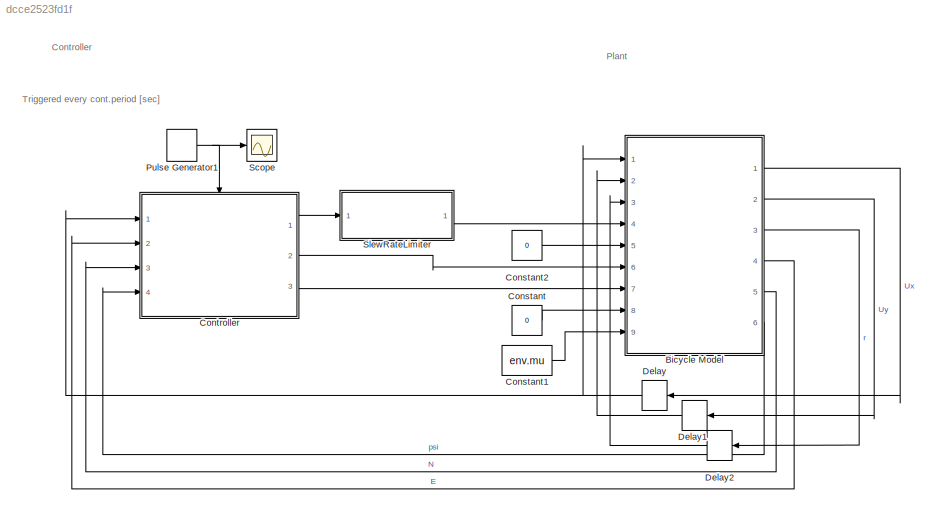
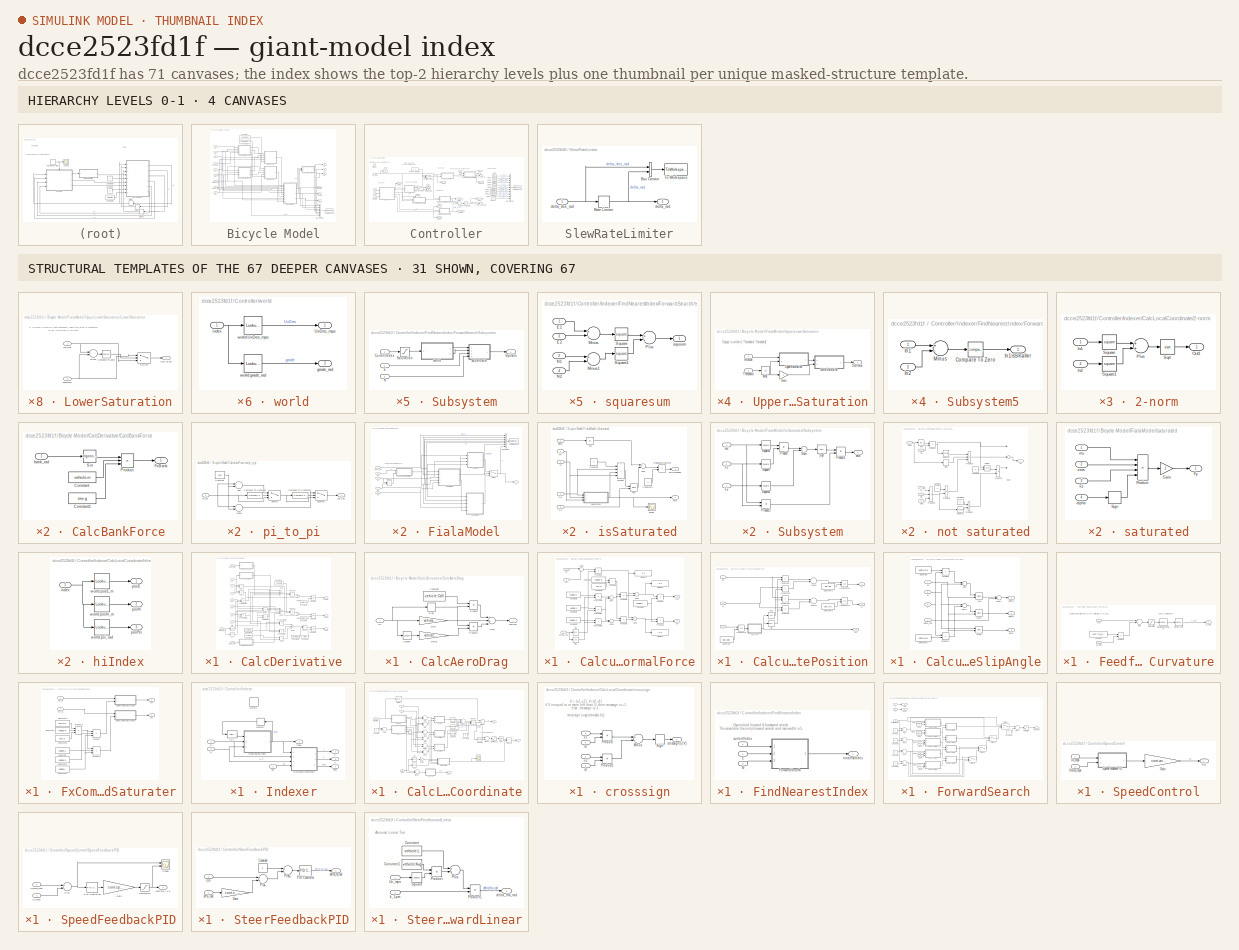
[diagram: thumbnail index - top-2 hierarchy levels (4 canvases) + 31 structural-template representatives of the remaining 67 canvases]
MODEL slx_dcce2523fd1f
KIND model
CONFIG AbsTol = auto
CONFIG EnableMultiTasking = off
CONFIG FixedStep = sim.timestep_s
CONFIG MaxStep = auto
CONFIG MinStep = auto
CONFIG RelTol = 1e-3
CONFIG SampleTimeConstraint = Unconstrained
CONFIG Solver = ode3
CONFIG SolverName = ode3
CONFIG StartTime = 0.0
CONFIG StopTime = sim.endTime_s
BLOCK [SubSystem] Bicycle Model
  Ports = [9, 6]
  RequestExecContextInheritance = off
BLOCK [BusCreator] Bicycle Model/Bus Creator
  DisplayOption = bar
  InheritFromInputs = on
  Inputs = 7
  Ports = [7, 1]
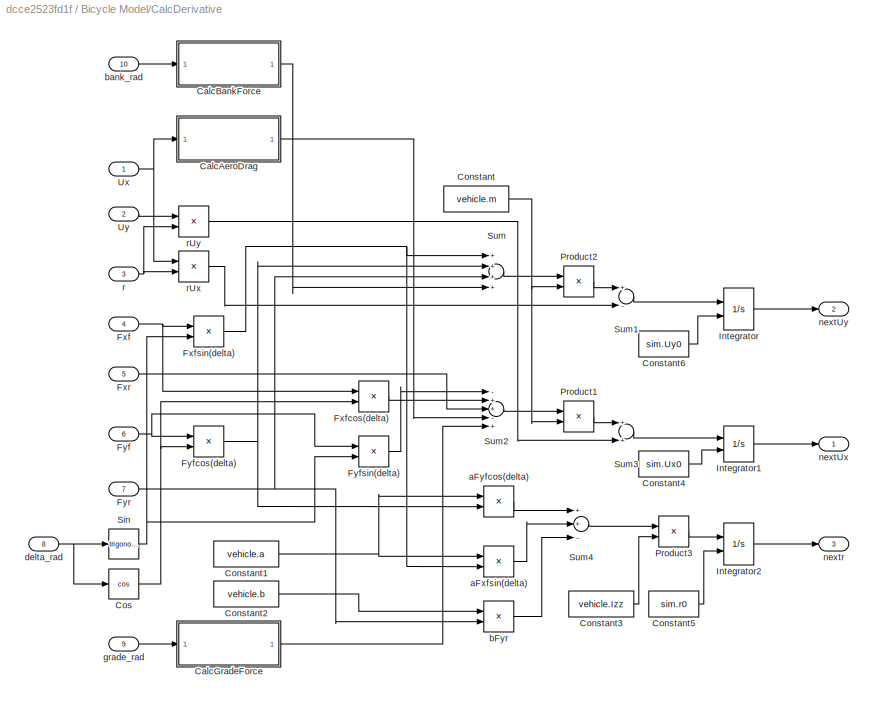
BLOCK [SubSystem] Bicycle Model/CalcDerivative
  Ports = [10, 3]
  RequestExecContextInheritance = off
BLOCK [SubSystem] Bicycle Model/CalcDerivative/CalcAeroDrag
  Ports = [1, 1]
  RequestExecContextInheritance = off
BLOCK [Constant] Bicycle Model/CalcDerivative/CalcAeroDrag/Constant
  Value = vehicle.Cd0
BLOCK [Outport] Bicycle Model/CalcDerivative/CalcAeroDrag/FxDrag
  IconDisplay = Port number
BLOCK [Gain] Bicycle Model/CalcDerivative/CalcAeroDrag/Gain
  Gain = vehicle.Cd1
  OutDataTypeStr = Inherit: Inherit via internal rule
  ParamDataTypeStr = Inherit: Inherit via internal rule
  SaturateOnIntegerOverflow = off
BLOCK [Gain] Bicycle Model/CalcDerivative/CalcAeroDrag/Gain1
  Gain = vehicle.Cd2
  OutDataTypeStr = Inherit: Inherit via internal rule
  ParamDataTypeStr = Inherit: Inherit via internal rule
  SaturateOnIntegerOverflow = off
BLOCK [Product] Bicycle Model/CalcDerivative/CalcAeroDrag/Product
  InputSameDT = off
  OutDataTypeStr = Inherit: Inherit via internal rule
  Ports = [2, 1]
  RndMeth = Floor
  SaturateOnIntegerOverflow = off
BLOCK [Product] Bicycle Model/CalcDerivative/CalcAeroDrag/Product1
  InputSameDT = off
  OutDataTypeStr = Inherit: Inherit via internal rule
  Ports = [2, 1]
  RndMeth = Floor
  SaturateOnIntegerOverflow = off
BLOCK [Signum] Bicycle Model/CalcDerivative/CalcAeroDrag/Sign
BLOCK [Math] Bicycle Model/CalcDerivative/CalcAeroDrag/Square
  Operator = square
  Ports = [1, 1]
BLOCK [Sum] Bicycle Model/CalcDerivative/CalcAeroDrag/Sum
  InputSameDT = off
  Inputs = 3
  OutDataTypeStr = Inherit: Inherit via internal rule
  Ports = [3, 1]
  SaturateOnIntegerOverflow = off
BLOCK [Inport] Bicycle Model/CalcDerivative/CalcAeroDrag/Ux
  IconDisplay = Port number
BLOCK [SubSystem] Bicycle Model/CalcDerivative/CalcBankForce
  Ports = [1, 1]
  RequestExecContextInheritance = off
BLOCK [Constant] Bicycle Model/CalcDerivative/CalcBankForce/Constant
  Value = vehicle.m
BLOCK [Constant] Bicycle Model/CalcDerivative/CalcBankForce/Constant1
  Value = env.g
BLOCK [Outport] Bicycle Model/CalcDerivative/CalcBankForce/FxBank
  IconDisplay = Port number
BLOCK [Product] Bicycle Model/CalcDerivative/CalcBankForce/Product
  InputSameDT = off
  Inputs = 3
  OutDataTypeStr = Inherit: Inherit via internal rule
  Ports = [3, 1]
  RndMeth = Floor
  SaturateOnIntegerOverflow = off
BLOCK [Trigonometry] Bicycle Model/CalcDerivative/CalcBankForce/Sin
  Ports = [1, 1]
BLOCK [Inport] Bicycle Model/CalcDerivative/CalcBankForce/bank_rad
  IconDisplay = Port number
BLOCK [SubSystem] Bicycle Model/CalcDerivative/CalcGradeForce
  Ports = [1, 1]
  RequestExecContextInheritance = off
BLOCK [Constant] Bicycle Model/CalcDerivative/CalcGradeForce/Constant
  Value = vehicle.m
BLOCK [Constant] Bicycle Model/CalcDerivative/CalcGradeForce/Constant1
  Value = env.g
BLOCK [Outport] Bicycle Model/CalcDerivative/CalcGradeForce/FxGrade
  IconDisplay = Port number
BLOCK [Product] Bicycle Model/CalcDerivative/CalcGradeForce/Product
  InputSameDT = off
  Inputs = 3
  OutDataTypeStr = Inherit: Inherit via internal rule
  Ports = [3, 1]
  RndMeth = Floor
  SaturateOnIntegerOverflow = off
BLOCK [Trigonometry] Bicycle Model/CalcDerivative/CalcGradeForce/Sin
  Ports = [1, 1]
BLOCK [Inport] Bicycle Model/CalcDerivative/CalcGradeForce/grade_rad
  IconDisplay = Port number
BLOCK [Constant] Bicycle Model/CalcDerivative/Constant
  Value = vehicle.m
BLOCK [Constant] Bicycle Model/CalcDerivative/Constant1
  Value = vehicle.a
BLOCK [Constant] Bicycle Model/CalcDerivative/Constant2
  Value = vehicle.b
BLOCK [Constant] Bicycle Model/CalcDerivative/Constant3
  Value = vehicle.Izz
BLOCK [Constant] Bicycle Model/CalcDerivative/Constant4
  Value = sim.Ux0
BLOCK [Constant] Bicycle Model/CalcDerivative/Constant5
  Value = sim.r0
BLOCK [Constant] Bicycle Model/CalcDerivative/Constant6
  Value = sim.Uy0
BLOCK [Trigonometry] Bicycle Model/CalcDerivative/Cos
  Operator = cos
  Ports = [1, 1]
BLOCK [Inport] Bicycle Model/CalcDerivative/Fxf
  IconDisplay = Port number
  Port = 4
BLOCK [Product] Bicycle Model/CalcDerivative/Fxfcos(delta)
  InputSameDT = off
  OutDataTypeStr = Inherit: Inherit via internal rule
  Ports = [2, 1]
  RndMeth = Floor
  SaturateOnIntegerOverflow = off
BLOCK [Product] Bicycle Model/CalcDerivative/Fxfsin(delta)
  InputSameDT = off
  OutDataTypeStr = Inherit: Inherit via internal rule
  Ports = [2, 1]
  RndMeth = Floor
  SaturateOnIntegerOverflow = off
BLOCK [Inport] Bicycle Model/CalcDerivative/Fxr
  IconDisplay = Port number
  Port = 5
BLOCK [Inport] Bicycle Model/CalcDerivative/Fyf
  IconDisplay = Port number
  Port = 6
BLOCK [Product] Bicycle Model/CalcDerivative/Fyfcos(delta)
  InputSameDT = off
  OutDataTypeStr = Inherit: Inherit via internal rule
  Ports = [2, 1]
  RndMeth = Floor
  SaturateOnIntegerOverflow = off
BLOCK [Product] Bicycle Model/CalcDerivative/Fyfsin(delta)
  InputSameDT = off
  OutDataTypeStr = Inherit: Inherit via internal rule
  Ports = [2, 1]
  RndMeth = Floor
  SaturateOnIntegerOverflow = off
BLOCK [Inport] Bicycle Model/CalcDerivative/Fyr
  IconDisplay = Port number
  Port = 7
BLOCK [Integrator] Bicycle Model/CalcDerivative/Integrator
  InitialConditionSource = external
  Ports = [2, 1]
BLOCK [Integrator] Bicycle Model/CalcDerivative/Integrator1
  InitialConditionSource = external
  Ports = [2, 1]
BLOCK [Integrator] Bicycle Model/CalcDerivative/Integrator2
  InitialCondition = sim.r0
  InitialConditionSource = external
  Ports = [2, 1]
BLOCK [Product] Bicycle Model/CalcDerivative/Product1
  InputSameDT = off
  Inputs = */
  OutDataTypeStr = Inherit: Inherit via internal rule
  Ports = [2, 1]
  RndMeth = Floor
  SaturateOnIntegerOverflow = off
BLOCK [Product] Bicycle Model/CalcDerivative/Product2
  InputSameDT = off
  Inputs = */
  OutDataTypeStr = Inherit: Inherit via internal rule
  Ports = [2, 1]
  RndMeth = Floor
  SaturateOnIntegerOverflow = off
BLOCK [Product] Bicycle Model/CalcDerivative/Product3
  InputSameDT = off
  Inputs = */
  OutDataTypeStr = Inherit: Inherit via internal rule
  Ports = [2, 1]
  RndMeth = Floor
  SaturateOnIntegerOverflow = off
BLOCK [Trigonometry] Bicycle Model/CalcDerivative/Sin
  Ports = [1, 1]
BLOCK [Sum] Bicycle Model/CalcDerivative/Sum
  InputSameDT = off
  Inputs = ++++
  OutDataTypeStr = Inherit: Inherit via internal rule
  Ports = [4, 1]
  SaturateOnIntegerOverflow = off
BLOCK [Sum] Bicycle Model/CalcDerivative/Sum1
  InputSameDT = off
  Inputs = +-
  OutDataTypeStr = Inherit: Inherit via internal rule
  Ports = [2, 1]
  SaturateOnIntegerOverflow = off
BLOCK [Sum] Bicycle Model/CalcDerivative/Sum2
  InputSameDT = off
  Inputs = -++-+
  OutDataTypeStr = Inherit: Inherit via internal rule
  Ports = [5, 1]
  SaturateOnIntegerOverflow = off
BLOCK [Sum] Bicycle Model/CalcDerivative/Sum3
  InputSameDT = off
  OutDataTypeStr = Inherit: Inherit via internal rule
  Ports = [2, 1]
  SaturateOnIntegerOverflow = off
BLOCK [Sum] Bicycle Model/CalcDerivative/Sum4
  InputSameDT = off
  Inputs = ++-
  OutDataTypeStr = Inherit: Inherit via internal rule
  Ports = [3, 1]
  SaturateOnIntegerOverflow = off
BLOCK [Inport] Bicycle Model/CalcDerivative/Ux
  IconDisplay = Port number
BLOCK [Inport] Bicycle Model/CalcDerivative/Uy
  IconDisplay = Port number
  Port = 2
BLOCK [Product] Bicycle Model/CalcDerivative/aFxfsin(delta)
  InputSameDT = off
  OutDataTypeStr = Inherit: Inherit via internal rule
  Ports = [2, 1]
  RndMeth = Floor
  SaturateOnIntegerOverflow = off
BLOCK [Product] Bicycle Model/CalcDerivative/aFyfcos(delta)
  InputSameDT = off
  OutDataTypeStr = Inherit: Inherit via internal rule
  Ports = [2, 1]
  RndMeth = Floor
  SaturateOnIntegerOverflow = off
BLOCK [Product] Bicycle Model/CalcDerivative/bFyr
  InputSameDT = off
  OutDataTypeStr = Inherit: Inherit via internal rule
  Ports = [2, 1]
  RndMeth = Floor
  SaturateOnIntegerOverflow = off
BLOCK [Inport] Bicycle Model/CalcDerivative/bank_rad
  IconDisplay = Port number
  Port = 10
BLOCK [Inport] Bicycle Model/CalcDerivative/delta_rad
  IconDisplay = Port number
  Port = 8
BLOCK [Inport] Bicycle Model/CalcDerivative/grade_rad
  IconDisplay = Port number
  Port = 9
BLOCK [Outport] Bicycle Model/CalcDerivative/nextUx 
  IconDisplay = Port number
BLOCK [Outport] Bicycle Model/CalcDerivative/nextUy
  IconDisplay = Port number
  Port = 2
BLOCK [Outport] Bicycle Model/CalcDerivative/nextr
  IconDisplay = Port number
  Port = 3
BLOCK [Inport] Bicycle Model/CalcDerivative/r
  IconDisplay = Port number
  Port = 3
BLOCK [Product] Bicycle Model/CalcDerivative/rUx
  InputSameDT = off
  OutDataTypeStr = Inherit: Inherit via internal rule
  Ports = [2, 1]
  RndMeth = Floor
  SaturateOnIntegerOverflow = off
BLOCK [Product] Bicycle Model/CalcDerivative/rUy
  InputSameDT = off
  OutDataTypeStr = Inherit: Inherit via internal rule
  Ports = [2, 1]
  RndMeth = Floor
  SaturateOnIntegerOverflow = off
BLOCK [SubSystem] Bicycle Model/CalculateNormalForce
  Ports = [3, 2]
  RequestExecContextInheritance = off
BLOCK [Constant] Bicycle Model/CalculateNormalForce/Constant1
  Value = vehicle.a
BLOCK [Constant] Bicycle Model/CalculateNormalForce/Constant2
  Value = vehicle.b
BLOCK [Constant] Bicycle Model/CalculateNormalForce/Constant3
  Value = vehicle.L
BLOCK [Constant] Bicycle Model/CalculateNormalForce/Constant4
  Value = vehicle.h
BLOCK [Constant] Bicycle Model/CalculateNormalForce/Constant5
  Value = env.g
BLOCK [Constant] Bicycle Model/CalculateNormalForce/Constant6
  Value = vehicle.m
BLOCK [Display] Bicycle Model/CalculateNormalForce/Display1
  Decimation = 1
  Ports = [1]
BLOCK [Display] Bicycle Model/CalculateNormalForce/Display2
  Decimation = 1
  Ports = [1]
BLOCK [Display] Bicycle Model/CalculateNormalForce/Display3
  Decimation = 1
  Ports = [1]
BLOCK [Inport] Bicycle Model/CalculateNormalForce/Fxf
  IconDisplay = Port number
BLOCK [Inport] Bicycle Model/CalculateNormalForce/Fxr
  IconDisplay = Port number
  Port = 2
BLOCK [Outport] Bicycle Model/CalculateNormalForce/Fzf
  IconDisplay = Port number
BLOCK [Outport] Bicycle Model/CalculateNormalForce/Fzr
  IconDisplay = Port number
  Port = 2
BLOCK [Product] Bicycle Model/CalculateNormalForce/Product
  InputSameDT = off
  Inputs = */
  OutDataTypeStr = Inherit: Inherit via internal rule
  Ports = [2, 1]
  RndMeth = Floor
  SaturateOnIntegerOverflow = off
BLOCK [Product] Bicycle Model/CalculateNormalForce/Product1
  InputSameDT = off
  Inputs = */
  OutDataTypeStr = Inherit: Inherit via internal rule
  Ports = [2, 1]
  RndMeth = Floor
  SaturateOnIntegerOverflow = off
BLOCK [Product] Bicycle Model/CalculateNormalForce/Product2
  InputSameDT = off
  OutDataTypeStr = Inherit: Inherit via internal rule
  Ports = [2, 1]
  RndMeth = Floor
  SaturateOnIntegerOverflow = off
BLOCK [Product] Bicycle Model/CalculateNormalForce/Product3
  InputSameDT = off
  OutDataTypeStr = Inherit: Inherit via internal rule
  Ports = [2, 1]
  RndMeth = Floor
  SaturateOnIntegerOverflow = off
BLOCK [Product] Bicycle Model/CalculateNormalForce/Product4
  InputSameDT = off
  OutDataTypeStr = Inherit: Inherit via internal rule
  Ports = [2, 1]
  RndMeth = Floor
  SaturateOnIntegerOverflow = off
BLOCK [Product] Bicycle Model/CalculateNormalForce/Product6
  InputSameDT = off
  OutDataTypeStr = Inherit: Inherit via internal rule
  Ports = [2, 1]
  RndMeth = Floor
  SaturateOnIntegerOverflow = off
BLOCK [Trigonometry] Bicycle Model/CalculateNormalForce/Sin
  Ports = [1, 1]
BLOCK [Trigonometry] Bicycle Model/CalculateNormalForce/Sin1
  Operator = cos
  Ports = [1, 1]
BLOCK [Sum] Bicycle Model/CalculateNormalForce/Sum
  InputSameDT = off
  OutDataTypeStr = Inherit: Inherit via internal rule
  Ports = [2, 1]
  SaturateOnIntegerOverflow = off
BLOCK [Sum] Bicycle Model/CalculateNormalForce/Sum1
  IconShape = round
  InputSameDT = off
  Inputs = |++
  OutDataTypeStr = Inherit: Inherit via internal rule
  Ports = [2, 1]
  SaturateOnIntegerOverflow = off
BLOCK [Sum] Bicycle Model/CalculateNormalForce/Sum2
  InputSameDT = off
  Inputs = -+
  OutDataTypeStr = Inherit: Inherit via internal rule
  Ports = [2, 1]
  SaturateOnIntegerOverflow = off
BLOCK [Sum] Bicycle Model/CalculateNormalForce/Sum3
  InputSameDT = off
  Inputs = -+
  OutDataTypeStr = Inherit: Inherit via internal rule
  Ports = [2, 1]
  SaturateOnIntegerOverflow = off
BLOCK [Sum] Bicycle Model/CalculateNormalForce/Sum4
  InputSameDT = off
  OutDataTypeStr = Inherit: Inherit via internal rule
  Ports = [2, 1]
  SaturateOnIntegerOverflow = off
BLOCK [Product] Bicycle Model/CalculateNormalForce/acos(theta)
  InputSameDT = off
  OutDataTypeStr = Inherit: Inherit via internal rule
  Ports = [2, 1]
  RndMeth = Floor
  SaturateOnIntegerOverflow = off
BLOCK [Product] Bicycle Model/CalculateNormalForce/bcos(theta)
  InputSameDT = off
  OutDataTypeStr = Inherit: Inherit via internal rule
  Ports = [2, 1]
  RndMeth = Floor
  SaturateOnIntegerOverflow = off
BLOCK [Inport] Bicycle Model/CalculateNormalForce/grade_rad
  IconDisplay = Port number
  Port = 3
BLOCK [Product] Bicycle Model/CalculateNormalForce/hsin(theta)
  InputSameDT = off
  OutDataTypeStr = Inherit: Inherit via internal rule
  Ports = [2, 1]
  RndMeth = Floor
  SaturateOnIntegerOverflow = off
BLOCK [SubSystem] Bicycle Model/CalculatePosition
  Ports = [3, 3]
  RequestExecContextInheritance = off
BLOCK [Constant] Bicycle Model/CalculatePosition/Constant
  Value = sim.psi0
BLOCK [Constant] Bicycle Model/CalculatePosition/Constant1
  Value = sim.E0
BLOCK [Constant] Bicycle Model/CalculatePosition/Constant2
  Value = sim.N0
BLOCK [Trigonometry] Bicycle Model/CalculatePosition/Cos
  Operator = cos
  Ports = [1, 1]
BLOCK [Outport] Bicycle Model/CalculatePosition/E
  IconDisplay = Port number
BLOCK [Integrator] Bicycle Model/CalculatePosition/Integrator
  InitialConditionSource = external
  Ports = [2, 1]
BLOCK [Integrator] Bicycle Model/CalculatePosition/Integrator1
  InitialConditionSource = external
  Ports = [2, 1]
BLOCK [Integrator] Bicycle Model/CalculatePosition/Integrator2
  InitialConditionSource = external
  Ports = [2, 1]
BLOCK [Sum] Bicycle Model/CalculatePosition/Minus
  InputSameDT = off
  Inputs = --
  OutDataTypeStr = Inherit: Inherit via internal rule
  Ports = [2, 1]
  SaturateOnIntegerOverflow = off
BLOCK [Sum] Bicycle Model/CalculatePosition/Minus1
  InputSameDT = off
  Inputs = +-
  OutDataTypeStr = Inherit: Inherit via internal rule
  Ports = [2, 1]
  SaturateOnIntegerOverflow = off
BLOCK [Outport] Bicycle Model/CalculatePosition/N
  IconDisplay = Port number
  Port = 2
BLOCK [Trigonometry] Bicycle Model/CalculatePosition/Sin
  Ports = [1, 1]
BLOCK [Inport] Bicycle Model/CalculatePosition/Ux
  IconDisplay = Port number
BLOCK [Product] Bicycle Model/CalculatePosition/Uxcos(psi)
  InputSameDT = off
  OutDataTypeStr = Inherit: Inherit via internal rule
  Ports = [2, 1]
  RndMeth = Floor
  SaturateOnIntegerOverflow = off
BLOCK [Product] Bicycle Model/CalculatePosition/Uxsin(psi)
  InputSameDT = off
  OutDataTypeStr = Inherit: Inherit via internal rule
  Ports = [2, 1]
  RndMeth = Floor
  SaturateOnIntegerOverflow = off
BLOCK [Inport] Bicycle Model/CalculatePosition/Uy
  IconDisplay = Port number
  Port = 2
BLOCK [Product] Bicycle Model/CalculatePosition/Uycos(psi)
  InputSameDT = off
  OutDataTypeStr = Inherit: Inherit via internal rule
  Ports = [2, 1]
  RndMeth = Floor
  SaturateOnIntegerOverflow = off
BLOCK [Product] Bicycle Model/CalculatePosition/Uysin(psi)
  InputSameDT = off
  OutDataTypeStr = Inherit: Inherit via internal rule
  Ports = [2, 1]
  RndMeth = Floor
  SaturateOnIntegerOverflow = off
BLOCK [SubSystem] Bicycle Model/CalculatePosition/pi_to_pi
  Ports = [1, 1]
  RequestExecContextInheritance = off
BLOCK [Reference] Bicycle Model/CalculatePosition/pi_to_pi/Compare To Constant  REF=simulink/Logic and Bit
Operations/Compare
To Constant
  Ports = [1, 1]
  SourceBlock = simulink/Logic and Bit\nOperations/Compare\nTo Constant
  SourceProductBaseCode = SL
  SourceProductName = Simulink
  SourceType = Compare To Constant
BLOCK [Reference] Bicycle Model/CalculatePosition/pi_to_pi/Compare To Constant1  REF=simulink/Logic and Bit
Operations/Compare
To Constant
  Ports = [1, 1]
  SourceBlock = simulink/Logic and Bit\nOperations/Compare\nTo Constant
  SourceProductBaseCode = SL
  SourceProductName = Simulink
  SourceType = Compare To Constant
BLOCK [Constant] Bicycle Model/CalculatePosition/pi_to_pi/Constant
  Value = 2*pi
BLOCK [Sum] Bicycle Model/CalculatePosition/pi_to_pi/Minus
  InputSameDT = off
  Inputs = +-
  OutDataTypeStr = Inherit: Inherit via internal rule
  Ports = [2, 1]
  SaturateOnIntegerOverflow = off
BLOCK [Sum] Bicycle Model/CalculatePosition/pi_to_pi/Plus
  InputSameDT = off
  OutDataTypeStr = Inherit: Inherit via internal rule
  Ports = [2, 1]
  SaturateOnIntegerOverflow = off
BLOCK [Switch] Bicycle Model/CalculatePosition/pi_to_pi/Switch
  Criteria = u2 > Threshold
  InputSameDT = off
  SaturateOnIntegerOverflow = off
BLOCK [Switch] Bicycle Model/CalculatePosition/pi_to_pi/Switch1
  Criteria = u2 > Threshold
  InputSameDT = off
  SaturateOnIntegerOverflow = off
BLOCK [Inport] Bicycle Model/CalculatePosition/pi_to_pi/in_rad
  IconDisplay = Port number
BLOCK [Outport] Bicycle Model/CalculatePosition/pi_to_pi/out_rad
  IconDisplay = Port number
BLOCK [Outport] Bicycle Model/CalculatePosition/psi
  IconDisplay = Port number
  Port = 3
BLOCK [Inport] Bicycle Model/CalculatePosition/r
  IconDisplay = Port number
  Port = 3
BLOCK [SubSystem] Bicycle Model/CalculateSlipAngle
  Ports = [4, 3]
  RequestExecContextInheritance = off
BLOCK [Trigonometry] Bicycle Model/CalculateSlipAngle/Atan
  Operator = atan2
  Ports = [2, 1]
BLOCK [Trigonometry] Bicycle Model/CalculateSlipAngle/Atan1
  Operator = atan2
  Ports = [2, 1]
BLOCK [Trigonometry] Bicycle Model/CalculateSlipAngle/Atan2
  Operator = atan2
  Ports = [2, 1]
BLOCK [Constant] Bicycle Model/CalculateSlipAngle/Constant
  Value = vehicle.a
BLOCK [Constant] Bicycle Model/CalculateSlipAngle/Constant1
  Value = vehicle.b
BLOCK [Product] Bicycle Model/CalculateSlipAngle/Product
  InputSameDT = off
  OutDataTypeStr = Inherit: Inherit via internal rule
  Ports = [2, 1]
  RndMeth = Floor
  SaturateOnIntegerOverflow = off
BLOCK [Product] Bicycle Model/CalculateSlipAngle/Product1
  InputSameDT = off
  OutDataTypeStr = Inherit: Inherit via internal rule
  Ports = [2, 1]
  RndMeth = Floor
  SaturateOnIntegerOverflow = off
BLOCK [Sum] Bicycle Model/CalculateSlipAngle/Sum
  InputSameDT = off
  OutDataTypeStr = Inherit: Inherit via internal rule
  Ports = [2, 1]
  SaturateOnIntegerOverflow = off
BLOCK [Sum] Bicycle Model/CalculateSlipAngle/Sum1
  InputSameDT = off
  Inputs = +-
  OutDataTypeStr = Inherit: Inherit via internal rule
  Ports = [2, 1]
  SaturateOnIntegerOverflow = off
BLOCK [Sum] Bicycle Model/CalculateSlipAngle/Sum2
  InputSameDT = off
  Inputs = +-
  OutDataTypeStr = Inherit: Inherit via internal rule
  Ports = [2, 1]
  SaturateOnIntegerOverflow = off
BLOCK [Inport] Bicycle Model/CalculateSlipAngle/Ux
  IconDisplay = Port number
BLOCK [Inport] Bicycle Model/CalculateSlipAngle/Uy
  IconDisplay = Port number
  Port = 2
BLOCK [Outport] Bicycle Model/CalculateSlipAngle/alpha_f
  IconDisplay = Port number
BLOCK [Outport] Bicycle Model/CalculateSlipAngle/alpha_r
  IconDisplay = Port number
  Port = 2
BLOCK [Outport] Bicycle Model/CalculateSlipAngle/beta
  IconDisplay = Port number
  Port = 3
BLOCK [Inport] Bicycle Model/CalculateSlipAngle/delta_rad
  IconDisplay = Port number
  Port = 4
BLOCK [Inport] Bicycle Model/CalculateSlipAngle/r
  IconDisplay = Port number
  Port = 3
BLOCK [Constant] Bicycle Model/Constant
  Value = vehicle.Caf
BLOCK [Constant] Bicycle Model/Constant1
  Value = vehicle.Car
BLOCK [Outport] Bicycle Model/E
  IconDisplay = Port number
  Port = 4
BLOCK [SubSystem] Bicycle Model/FialaModel
  Ports = [5, 1]
  RequestExecContextInheritance = off
BLOCK [BusCreator] Bicycle Model/FialaModel/Bus Creator
  DisplayOption = bar
  InheritFromInputs = on
  Inputs = 7
  Ports = [7, 1]
BLOCK [Inport] Bicycle Model/FialaModel/Ca
  IconDisplay = Port number
  Port = 5
BLOCK [Inport] Bicycle Model/FialaModel/Fx
  IconDisplay = Port number
  Port = 2
BLOCK [Outport] Bicycle Model/FialaModel/Fy
  IconDisplay = Port number
BLOCK [Inport] Bicycle Model/FialaModel/Fz
  IconDisplay = Port number
  Port = 3
BLOCK [Product] Bicycle Model/FialaModel/Product
  InputSameDT = off
  OutDataTypeStr = Inherit: Inherit via internal rule
  Ports = [2, 1]
  RndMeth = Floor
  SaturateOnIntegerOverflow = off
BLOCK [Switch] Bicycle Model/FialaModel/Switch
  Criteria = u2 > Threshold
  InputSameDT = off
  SaturateOnIntegerOverflow = off
BLOCK [ToWorkspace] Bicycle Model/FialaModel/To Workspace
  FixptAsFi = on
  MaxDataPoints = inf
  Ports = [1]
  SampleTime = -1
  Save2DSignal = 3-D array (concatenate along third dimension)
  SaveFormat = Timeseries
  VariableName = frontTire
BLOCK [SubSystem] Bicycle Model/FialaModel/UpperLowerSaturation
  Ports = [2, 1]
  RequestExecContextInheritance = off
BLOCK [Abs] Bicycle Model/FialaModel/UpperLowerSaturation/Abs
  SaturateOnIntegerOverflow = off
BLOCK [Gain] Bicycle Model/FialaModel/UpperLowerSaturation/Gain
  Gain = -1
  OutDataTypeStr = Inherit: Inherit via internal rule
  ParamDataTypeStr = Inherit: Inherit via internal rule
  SaturateOnIntegerOverflow = off
BLOCK [Inport] Bicycle Model/FialaModel/UpperLowerSaturation/InValue
  IconDisplay = Port number
BLOCK [SubSystem] Bicycle Model/FialaModel/UpperLowerSaturation/LowerSaturation
  Ports = [2, 1]
  RequestExecContextInheritance = off
BLOCK [Reference] Bicycle Model/FialaModel/UpperLowerSaturation/LowerSaturation/Compare To Zero  REF=simulink/Logic and Bit
Operations/Compare
To Zero
  Ports = [1, 1]
  SourceBlock = simulink/Logic and Bit\nOperations/Compare\nTo Zero
  SourceProductBaseCode = SL
  SourceProductName = Simulink
  SourceType = Compare To Zero
BLOCK [Inport] Bicycle Model/FialaModel/UpperLowerSaturation/LowerSaturation/InValue
  IconDisplay = Port number
BLOCK [Sum] Bicycle Model/FialaModel/UpperLowerSaturation/LowerSaturation/Minus
  InputSameDT = off
  Inputs = -+
  OutDataTypeStr = Inherit: Inherit via internal rule
  Ports = [2, 1]
  SaturateOnIntegerOverflow = off
BLOCK [Outport] Bicycle Model/FialaModel/UpperLowerSaturation/LowerSaturation/OutVallue
  IconDisplay = Port number
BLOCK [Switch] Bicycle Model/FialaModel/UpperLowerSaturation/LowerSaturation/Switch
  Criteria = u2 > Threshold
  InputSameDT = off
  SaturateOnIntegerOverflow = off
BLOCK [Inport] Bicycle Model/FialaModel/UpperLowerSaturation/LowerSaturation/Threshold
  IconDisplay = Port number
  Port = 2
BLOCK [Outport] Bicycle Model/FialaModel/UpperLowerSaturation/OutValue
  IconDisplay = Port number
BLOCK [Inport] Bicycle Model/FialaModel/UpperLowerSaturation/Threshold
  IconDisplay = Port number
  Port = 2
BLOCK [SubSystem] Bicycle Model/FialaModel/UpperLowerSaturation/UpperSaturation
  Ports = [2, 1]
  RequestExecContextInheritance = off
BLOCK [Reference] Bicycle Model/FialaModel/UpperLowerSaturation/UpperSaturation/Compare To Zero  REF=simulink/Logic and Bit
Operations/Compare
To Zero
  Ports = [1, 1]
  SourceBlock = simulink/Logic and Bit\nOperations/Compare\nTo Zero
  SourceProductBaseCode = SL
  SourceProductName = Simulink
  SourceType = Compare To Zero
BLOCK [Inport] Bicycle Model/FialaModel/UpperLowerSaturation/UpperSaturation/InValue
  IconDisplay = Port number
BLOCK [Sum] Bicycle Model/FialaModel/UpperLowerSaturation/UpperSaturation/Minus
  InputSameDT = off
  Inputs = +-
  OutDataTypeStr = Inherit: Inherit via internal rule
  Ports = [2, 1]
  SaturateOnIntegerOverflow = off
BLOCK [Outport] Bicycle Model/FialaModel/UpperLowerSaturation/UpperSaturation/OutVallue
  IconDisplay = Port number
BLOCK [Switch] Bicycle Model/FialaModel/UpperLowerSaturation/UpperSaturation/Switch
  Criteria = u2 > Threshold
  InputSameDT = off
  SaturateOnIntegerOverflow = off
BLOCK [Inport] Bicycle Model/FialaModel/UpperLowerSaturation/UpperSaturation/Threshold
  IconDisplay = Port number
  Port = 2
BLOCK [Inport] Bicycle Model/FialaModel/alpha_rad
  IconDisplay = Port number
BLOCK [SubSystem] Bicycle Model/FialaModel/isSaturated
  Ports = [5, 2]
  RequestExecContextInheritance = off
BLOCK [Abs] Bicycle Model/FialaModel/isSaturated/Abs
  SaturateOnIntegerOverflow = off
BLOCK [Inport] Bicycle Model/FialaModel/isSaturated/Ca
  IconDisplay = Port number
  Port = 5
BLOCK [Constant] Bicycle Model/FialaModel/isSaturated/Constant
  Value = 3
BLOCK [Constant] Bicycle Model/FialaModel/isSaturated/Constant1
  Value = 0
BLOCK [Inport] Bicycle Model/FialaModel/isSaturated/Fx
  IconDisplay = Port number
  Port = 2
BLOCK [Inport] Bicycle Model/FialaModel/isSaturated/Fz
  IconDisplay = Port number
  Port = 3
BLOCK [Product] Bicycle Model/FialaModel/isSaturated/Product
  InputSameDT = off
  Inputs = 4
  OutDataTypeStr = Inherit: Inherit via internal rule
  Ports = [4, 1]
  RndMeth = Floor
  SaturateOnIntegerOverflow = off
BLOCK [RelationalOperator] Bicycle Model/FialaModel/isSaturated/Relational Operator
  InputSameDT = off
  Operator = >
  OutDataTypeStr = boolean
  Ports = [2, 1]
  RndMeth = Simplest
BLOCK [Scope] Bicycle Model/FialaModel/isSaturated/Scope
  Floating = off
  NumInputPorts = 1
  Ports = [1]
  ScopeSpecificationString = Simulink.scopes.TimeScopeBlockCfg('CurrentConfiguration', extmgr.ConfigurationSet(extmgr.Configuration('Core','General UI',true),extmgr.Configuration('Core','Source UI',true),extmgr.Configuration('Sources','WiredSimulink',true,'DataLoggingVariableName','ScopeData2'),extmgr.Configuration('Visuals','Time Domain',true,'SerializedDisplays',{struct('MinYLimReal','0.33589','MaxYLimReal','0.53589','YLabe...<+1366ch>
BLOCK [SubSystem] Bicycle Model/FialaModel/isSaturated/Subsystem
  Ports = [3, 1]
  RequestExecContextInheritance = off
BLOCK [Inport] Bicycle Model/FialaModel/isSaturated/Subsystem/Fx
  IconDisplay = Port number
  Port = 3
BLOCK [Inport] Bicycle Model/FialaModel/isSaturated/Subsystem/Fz
  IconDisplay = Port number
  Port = 2
BLOCK [Product] Bicycle Model/FialaModel/isSaturated/Subsystem/Product
  InputSameDT = off
  OutDataTypeStr = Inherit: Inherit via internal rule
  Ports = [2, 1]
  RndMeth = Floor
  SaturateOnIntegerOverflow = off
BLOCK [Product] Bicycle Model/FialaModel/isSaturated/Subsystem/Product1
  InputSameDT = off
  Inputs = */
  OutDataTypeStr = Inherit: Inherit via internal rule
  Ports = [2, 1]
  RndMeth = Floor
  SaturateOnIntegerOverflow = off
BLOCK [Product] Bicycle Model/FialaModel/isSaturated/Subsystem/Product2
  InputSameDT = off
  OutDataTypeStr = Inherit: Inherit via internal rule
  Ports = [2, 1]
  RndMeth = Floor
  SaturateOnIntegerOverflow = off
BLOCK [Sqrt] Bicycle Model/FialaModel/isSaturated/Subsystem/Sqrt
BLOCK [Math] Bicycle Model/FialaModel/isSaturated/Subsystem/Square
  Operator = square
  Ports = [1, 1]
BLOCK [Math] Bicycle Model/FialaModel/isSaturated/Subsystem/Square1
  Operator = square
  Ports = [1, 1]
BLOCK [Math] Bicycle Model/FialaModel/isSaturated/Subsystem/Square2
  Operator = square
  Ports = [1, 1]
BLOCK [Sum] Bicycle Model/FialaModel/isSaturated/Subsystem/Sum
  InputSameDT = off
  Inputs = +-
  OutDataTypeStr = Inherit: Inherit via internal rule
  Ports = [2, 1]
  SaturateOnIntegerOverflow = off
BLOCK [Inport] Bicycle Model/FialaModel/isSaturated/Subsystem/mu
  IconDisplay = Port number
BLOCK [Outport] Bicycle Model/FialaModel/isSaturated/Subsystem/zeta
  IconDisplay = Port number
BLOCK [Sum] Bicycle Model/FialaModel/isSaturated/Sum
  InputSameDT = off
  Inputs = +-
  OutDataTypeStr = Inherit: Inherit via internal rule
  Ports = [2, 1]
  SaturateOnIntegerOverflow = off
BLOCK [Trigonometry] Bicycle Model/FialaModel/isSaturated/Tan
  Operator = atan2
  Ports = [2, 1]
BLOCK [Inport] Bicycle Model/FialaModel/isSaturated/alpha
  IconDisplay = Port number
BLOCK [Inport] Bicycle Model/FialaModel/isSaturated/mu
  IconDisplay = Port number
  Port = 4
BLOCK [Outport] Bicycle Model/FialaModel/isSaturated/saturatedFlag
  IconDisplay = Port number
BLOCK [Outport] Bicycle Model/FialaModel/isSaturated/zeta
  IconDisplay = Port number
  Port = 2
BLOCK [Inport] Bicycle Model/FialaModel/mu
  IconDisplay = Port number
  Port = 4
BLOCK [SubSystem] Bicycle Model/FialaModel/not saturated
  Ports = [5, 1]
  RequestExecContextInheritance = off
BLOCK [Inport] Bicycle Model/FialaModel/not saturated/Ca
  IconDisplay = Port number
  Port = 4
BLOCK [Constant] Bicycle Model/FialaModel/not saturated/Constant
  Value = 3
BLOCK [Constant] Bicycle Model/FialaModel/not saturated/Constant1
  Value = 3
BLOCK [Constant] Bicycle Model/FialaModel/not saturated/Constant2
  Value = 27
BLOCK [Outport] Bicycle Model/FialaModel/not saturated/Fy
  IconDisplay = Port number
BLOCK [Inport] Bicycle Model/FialaModel/not saturated/Fz
  IconDisplay = Port number
  Port = 2
BLOCK [Math] Bicycle Model/FialaModel/not saturated/Power
  Operator = pow
  Ports = [2, 1]
BLOCK [Product] Bicycle Model/FialaModel/not saturated/Product
  InputSameDT = off
  OutDataTypeStr = Inherit: Inherit via internal rule
  Ports = [2, 1]
  RndMeth = Floor
  SaturateOnIntegerOverflow = off
BLOCK [Product] Bicycle Model/FialaModel/not saturated/Product1
  InputSameDT = off
  Inputs = */
  OutDataTypeStr = Inherit: Inherit via internal rule
  Ports = [2, 1]
  RndMeth = Floor
  SaturateOnIntegerOverflow = off
BLOCK [Product] Bicycle Model/FialaModel/not saturated/Product2
  InputSameDT = off
  Inputs = **/
  OutDataTypeStr = Inherit: Inherit via internal rule
  Ports = [3, 1]
  RndMeth = Floor
  SaturateOnIntegerOverflow = off
BLOCK [Product] Bicycle Model/FialaModel/not saturated/Product3
  InputSameDT = off
  Inputs = ***
  OutDataTypeStr = Inherit: Inherit via internal rule
  Ports = [3, 1]
  RndMeth = Floor
  SaturateOnIntegerOverflow = off
BLOCK [Product] Bicycle Model/FialaModel/not saturated/Product4
  InputSameDT = off
  OutDataTypeStr = Inherit: Inherit via internal rule
  Ports = [2, 1]
  RndMeth = Floor
  SaturateOnIntegerOverflow = off
BLOCK [Product] Bicycle Model/FialaModel/not saturated/Product5
  InputSameDT = off
  OutDataTypeStr = Inherit: Inherit via internal rule
  Ports = [2, 1]
  RndMeth = Floor
  SaturateOnIntegerOverflow = off
BLOCK [Signum] Bicycle Model/FialaModel/not saturated/Sign
BLOCK [Math] Bicycle Model/FialaModel/not saturated/Square1
  Operator = square
  Ports = [1, 1]
BLOCK [Math] Bicycle Model/FialaModel/not saturated/Square2
  Operator = square
  Ports = [1, 1]
BLOCK [Sum] Bicycle Model/FialaModel/not saturated/Sum
  InputSameDT = off
  Inputs = -+-
  OutDataTypeStr = Inherit: Inherit via internal rule
  Ports = [3, 1]
  SaturateOnIntegerOverflow = off
BLOCK [Trigonometry] Bicycle Model/FialaModel/not saturated/Tan
  Operator = tan
  Ports = [1, 1]
BLOCK [Inport] Bicycle Model/FialaModel/not saturated/alpha
  IconDisplay = Port number
BLOCK [Inport] Bicycle Model/FialaModel/not saturated/mu
  IconDisplay = Port number
  Port = 3
BLOCK [Inport] Bicycle Model/FialaModel/not saturated/zeta
  IconDisplay = Port number
  Port = 5
BLOCK [SubSystem] Bicycle Model/FialaModel/saturated
  Ports = [4, 1]
  RequestExecContextInheritance = off
BLOCK [Outport] Bicycle Model/FialaModel/saturated/Fy
  IconDisplay = Port number
BLOCK [Inport] Bicycle Model/FialaModel/saturated/Fz
  IconDisplay = Port number
  Port = 3
BLOCK [Gain] Bicycle Model/FialaModel/saturated/Gain
  Gain = -1
  OutDataTypeStr = Inherit: Inherit via internal rule
  ParamDataTypeStr = Inherit: Inherit via internal rule
  SaturateOnIntegerOverflow = off
BLOCK [Product] Bicycle Model/FialaModel/saturated/Product
  InputSameDT = off
  Inputs = 4
  OutDataTypeStr = Inherit: Inherit via internal rule
  Ports = [4, 1]
  RndMeth = Floor
  SaturateOnIntegerOverflow = off
BLOCK [Signum] Bicycle Model/FialaModel/saturated/Sign
BLOCK [Inport] Bicycle Model/FialaModel/saturated/alpha
  IconDisplay = Port number
  Port = 4
BLOCK [Inport] Bicycle Model/FialaModel/saturated/mu
  IconDisplay = Port number
BLOCK [Inport] Bicycle Model/FialaModel/saturated/zeta
  IconDisplay = Port number
  Port = 2
BLOCK [SubSystem] Bicycle Model/FialaModel1
  Ports = [5, 1]
  RequestExecContextInheritance = off
BLOCK [BusCreator] Bicycle Model/FialaModel1/Bus Creator
  DisplayOption = bar
  InheritFromInputs = on
  Inputs = 7
  Ports = [7, 1]
BLOCK [Inport] Bicycle Model/FialaModel1/Ca
  IconDisplay = Port number
  Port = 5
BLOCK [Inport] Bicycle Model/FialaModel1/Fx
  IconDisplay = Port number
  Port = 2
BLOCK [Outport] Bicycle Model/FialaModel1/Fy
  IconDisplay = Port number
BLOCK [Inport] Bicycle Model/FialaModel1/Fz
  IconDisplay = Port number
  Port = 3
BLOCK [Product] Bicycle Model/FialaModel1/Product
  InputSameDT = off
  OutDataTypeStr = Inherit: Inherit via internal rule
  Ports = [2, 1]
  RndMeth = Floor
  SaturateOnIntegerOverflow = off
BLOCK [Switch] Bicycle Model/FialaModel1/Switch
  Criteria = u2 > Threshold
  InputSameDT = off
  SaturateOnIntegerOverflow = off
BLOCK [ToWorkspace] Bicycle Model/FialaModel1/To Workspace
  FixptAsFi = on
  MaxDataPoints = inf
  Ports = [1]
  SampleTime = -1
  Save2DSignal = 3-D array (concatenate along third dimension)
  SaveFormat = Timeseries
  VariableName = rearTire
BLOCK [SubSystem] Bicycle Model/FialaModel1/UpperLowerSaturation
  Ports = [2, 1]
  RequestExecContextInheritance = off
BLOCK [Abs] Bicycle Model/FialaModel1/UpperLowerSaturation/Abs
  SaturateOnIntegerOverflow = off
BLOCK [Gain] Bicycle Model/FialaModel1/UpperLowerSaturation/Gain
  Gain = -1
  OutDataTypeStr = Inherit: Inherit via internal rule
  ParamDataTypeStr = Inherit: Inherit via internal rule
  SaturateOnIntegerOverflow = off
BLOCK [Inport] Bicycle Model/FialaModel1/UpperLowerSaturation/InValue
  IconDisplay = Port number
BLOCK [SubSystem] Bicycle Model/FialaModel1/UpperLowerSaturation/LowerSaturation
  Ports = [2, 1]
  RequestExecContextInheritance = off
BLOCK [Reference] Bicycle Model/FialaModel1/UpperLowerSaturation/LowerSaturation/Compare To Zero  REF=simulink/Logic and Bit
Operations/Compare
To Zero
  Ports = [1, 1]
  SourceBlock = simulink/Logic and Bit\nOperations/Compare\nTo Zero
  SourceProductBaseCode = SL
  SourceProductName = Simulink
  SourceType = Compare To Zero
BLOCK [Inport] Bicycle Model/FialaModel1/UpperLowerSaturation/LowerSaturation/InValue
  IconDisplay = Port number
BLOCK [Sum] Bicycle Model/FialaModel1/UpperLowerSaturation/LowerSaturation/Minus
  InputSameDT = off
  Inputs = -+
  OutDataTypeStr = Inherit: Inherit via internal rule
  Ports = [2, 1]
  SaturateOnIntegerOverflow = off
BLOCK [Outport] Bicycle Model/FialaModel1/UpperLowerSaturation/LowerSaturation/OutVallue
  IconDisplay = Port number
BLOCK [Switch] Bicycle Model/FialaModel1/UpperLowerSaturation/LowerSaturation/Switch
  Criteria = u2 > Threshold
  InputSameDT = off
  SaturateOnIntegerOverflow = off
BLOCK [Inport] Bicycle Model/FialaModel1/UpperLowerSaturation/LowerSaturation/Threshold
  IconDisplay = Port number
  Port = 2
BLOCK [Outport] Bicycle Model/FialaModel1/UpperLowerSaturation/OutValue
  IconDisplay = Port number
BLOCK [Inport] Bicycle Model/FialaModel1/UpperLowerSaturation/Threshold
  IconDisplay = Port number
  Port = 2
BLOCK [SubSystem] Bicycle Model/FialaModel1/UpperLowerSaturation/UpperSaturation
  Ports = [2, 1]
  RequestExecContextInheritance = off
BLOCK [Reference] Bicycle Model/FialaModel1/UpperLowerSaturation/UpperSaturation/Compare To Zero  REF=simulink/Logic and Bit
Operations/Compare
To Zero
  Ports = [1, 1]
  SourceBlock = simulink/Logic and Bit\nOperations/Compare\nTo Zero
  SourceProductBaseCode = SL
  SourceProductName = Simulink
  SourceType = Compare To Zero
BLOCK [Inport] Bicycle Model/FialaModel1/UpperLowerSaturation/UpperSaturation/InValue
  IconDisplay = Port number
BLOCK [Sum] Bicycle Model/FialaModel1/UpperLowerSaturation/UpperSaturation/Minus
  InputSameDT = off
  Inputs = +-
  OutDataTypeStr = Inherit: Inherit via internal rule
  Ports = [2, 1]
  SaturateOnIntegerOverflow = off
BLOCK [Outport] Bicycle Model/FialaModel1/UpperLowerSaturation/UpperSaturation/OutVallue
  IconDisplay = Port number
BLOCK [Switch] Bicycle Model/FialaModel1/UpperLowerSaturation/UpperSaturation/Switch
  Criteria = u2 > Threshold
  InputSameDT = off
  SaturateOnIntegerOverflow = off
BLOCK [Inport] Bicycle Model/FialaModel1/UpperLowerSaturation/UpperSaturation/Threshold
  IconDisplay = Port number
  Port = 2
BLOCK [Inport] Bicycle Model/FialaModel1/alpha_rad
  IconDisplay = Port number
BLOCK [SubSystem] Bicycle Model/FialaModel1/isSaturated
  Ports = [5, 2]
  RequestExecContextInheritance = off
BLOCK [Abs] Bicycle Model/FialaModel1/isSaturated/Abs
  SaturateOnIntegerOverflow = off
BLOCK [Inport] Bicycle Model/FialaModel1/isSaturated/Ca
  IconDisplay = Port number
  Port = 5
BLOCK [Constant] Bicycle Model/FialaModel1/isSaturated/Constant
  Value = 3
BLOCK [Constant] Bicycle Model/FialaModel1/isSaturated/Constant1
  Value = 0
BLOCK [Inport] Bicycle Model/FialaModel1/isSaturated/Fx
  IconDisplay = Port number
  Port = 2
BLOCK [Inport] Bicycle Model/FialaModel1/isSaturated/Fz
  IconDisplay = Port number
  Port = 3
BLOCK [Product] Bicycle Model/FialaModel1/isSaturated/Product
  InputSameDT = off
  Inputs = 4
  OutDataTypeStr = Inherit: Inherit via internal rule
  Ports = [4, 1]
  RndMeth = Floor
  SaturateOnIntegerOverflow = off
BLOCK [RelationalOperator] Bicycle Model/FialaModel1/isSaturated/Relational Operator
  InputSameDT = off
  Operator = >
  OutDataTypeStr = boolean
  Ports = [2, 1]
  RndMeth = Simplest
BLOCK [Scope] Bicycle Model/FialaModel1/isSaturated/Scope
  Floating = off
  NumInputPorts = 1
  Ports = [1]
  ScopeSpecificationString = Simulink.scopes.TimeScopeBlockCfg('CurrentConfiguration', extmgr.ConfigurationSet(extmgr.Configuration('Core','General UI',true),extmgr.Configuration('Core','Source UI',true),extmgr.Configuration('Sources','WiredSimulink',true,'DataLoggingVariableName','ScopeData2'),extmgr.Configuration('Visuals','Time Domain',true,'SerializedDisplays',{struct('MinYLimReal','0.33589','MaxYLimReal','0.53589','YLabe...<+1366ch>
BLOCK [SubSystem] Bicycle Model/FialaModel1/isSaturated/Subsystem
  Ports = [3, 1]
  RequestExecContextInheritance = off
BLOCK [Inport] Bicycle Model/FialaModel1/isSaturated/Subsystem/Fx
  IconDisplay = Port number
  Port = 3
BLOCK [Inport] Bicycle Model/FialaModel1/isSaturated/Subsystem/Fz
  IconDisplay = Port number
  Port = 2
BLOCK [Product] Bicycle Model/FialaModel1/isSaturated/Subsystem/Product
  InputSameDT = off
  OutDataTypeStr = Inherit: Inherit via internal rule
  Ports = [2, 1]
  RndMeth = Floor
  SaturateOnIntegerOverflow = off
BLOCK [Product] Bicycle Model/FialaModel1/isSaturated/Subsystem/Product1
  InputSameDT = off
  Inputs = */
  OutDataTypeStr = Inherit: Inherit via internal rule
  Ports = [2, 1]
  RndMeth = Floor
  SaturateOnIntegerOverflow = off
BLOCK [Product] Bicycle Model/FialaModel1/isSaturated/Subsystem/Product2
  InputSameDT = off
  OutDataTypeStr = Inherit: Inherit via internal rule
  Ports = [2, 1]
  RndMeth = Floor
  SaturateOnIntegerOverflow = off
BLOCK [Sqrt] Bicycle Model/FialaModel1/isSaturated/Subsystem/Sqrt
BLOCK [Math] Bicycle Model/FialaModel1/isSaturated/Subsystem/Square
  Operator = square
  Ports = [1, 1]
BLOCK [Math] Bicycle Model/FialaModel1/isSaturated/Subsystem/Square1
  Operator = square
  Ports = [1, 1]
BLOCK [Math] Bicycle Model/FialaModel1/isSaturated/Subsystem/Square2
  Operator = square
  Ports = [1, 1]
BLOCK [Sum] Bicycle Model/FialaModel1/isSaturated/Subsystem/Sum
  InputSameDT = off
  Inputs = +-
  OutDataTypeStr = Inherit: Inherit via internal rule
  Ports = [2, 1]
  SaturateOnIntegerOverflow = off
BLOCK [Inport] Bicycle Model/FialaModel1/isSaturated/Subsystem/mu
  IconDisplay = Port number
BLOCK [Outport] Bicycle Model/FialaModel1/isSaturated/Subsystem/zeta
  IconDisplay = Port number
BLOCK [Sum] Bicycle Model/FialaModel1/isSaturated/Sum
  InputSameDT = off
  Inputs = +-
  OutDataTypeStr = Inherit: Inherit via internal rule
  Ports = [2, 1]
  SaturateOnIntegerOverflow = off
BLOCK [Trigonometry] Bicycle Model/FialaModel1/isSaturated/Tan
  Operator = atan2
  Ports = [2, 1]
BLOCK [Inport] Bicycle Model/FialaModel1/isSaturated/alpha
  IconDisplay = Port number
BLOCK [Inport] Bicycle Model/FialaModel1/isSaturated/mu
  IconDisplay = Port number
  Port = 4
BLOCK [Outport] Bicycle Model/FialaModel1/isSaturated/saturatedFlag
  IconDisplay = Port number
BLOCK [Outport] Bicycle Model/FialaModel1/isSaturated/zeta
  IconDisplay = Port number
  Port = 2
BLOCK [Inport] Bicycle Model/FialaModel1/mu
  IconDisplay = Port number
  Port = 4
BLOCK [SubSystem] Bicycle Model/FialaModel1/not saturated
  Ports = [5, 1]
  RequestExecContextInheritance = off
BLOCK [Inport] Bicycle Model/FialaModel1/not saturated/Ca
  IconDisplay = Port number
  Port = 4
BLOCK [Constant] Bicycle Model/FialaModel1/not saturated/Constant
  Value = 3
BLOCK [Constant] Bicycle Model/FialaModel1/not saturated/Constant1
  Value = 3
BLOCK [Constant] Bicycle Model/FialaModel1/not saturated/Constant2
  Value = 27
BLOCK [Outport] Bicycle Model/FialaModel1/not saturated/Fy
  IconDisplay = Port number
BLOCK [Inport] Bicycle Model/FialaModel1/not saturated/Fz
  IconDisplay = Port number
  Port = 2
BLOCK [Math] Bicycle Model/FialaModel1/not saturated/Power
  Operator = pow
  Ports = [2, 1]
BLOCK [Product] Bicycle Model/FialaModel1/not saturated/Product
  InputSameDT = off
  OutDataTypeStr = Inherit: Inherit via internal rule
  Ports = [2, 1]
  RndMeth = Floor
  SaturateOnIntegerOverflow = off
BLOCK [Product] Bicycle Model/FialaModel1/not saturated/Product1
  InputSameDT = off
  Inputs = */
  OutDataTypeStr = Inherit: Inherit via internal rule
  Ports = [2, 1]
  RndMeth = Floor
  SaturateOnIntegerOverflow = off
BLOCK [Product] Bicycle Model/FialaModel1/not saturated/Product2
  InputSameDT = off
  Inputs = **/
  OutDataTypeStr = Inherit: Inherit via internal rule
  Ports = [3, 1]
  RndMeth = Floor
  SaturateOnIntegerOverflow = off
BLOCK [Product] Bicycle Model/FialaModel1/not saturated/Product3
  InputSameDT = off
  Inputs = ***
  OutDataTypeStr = Inherit: Inherit via internal rule
  Ports = [3, 1]
  RndMeth = Floor
  SaturateOnIntegerOverflow = off
BLOCK [Product] Bicycle Model/FialaModel1/not saturated/Product4
  InputSameDT = off
  OutDataTypeStr = Inherit: Inherit via internal rule
  Ports = [2, 1]
  RndMeth = Floor
  SaturateOnIntegerOverflow = off
BLOCK [Product] Bicycle Model/FialaModel1/not saturated/Product5
  InputSameDT = off
  OutDataTypeStr = Inherit: Inherit via internal rule
  Ports = [2, 1]
  RndMeth = Floor
  SaturateOnIntegerOverflow = off
BLOCK [Signum] Bicycle Model/FialaModel1/not saturated/Sign
BLOCK [Math] Bicycle Model/FialaModel1/not saturated/Square1
  Operator = square
  Ports = [1, 1]
BLOCK [Math] Bicycle Model/FialaModel1/not saturated/Square2
  Operator = square
  Ports = [1, 1]
BLOCK [Sum] Bicycle Model/FialaModel1/not saturated/Sum
  InputSameDT = off
  Inputs = -+-
  OutDataTypeStr = Inherit: Inherit via internal rule
  Ports = [3, 1]
  SaturateOnIntegerOverflow = off
BLOCK [Trigonometry] Bicycle Model/FialaModel1/not saturated/Tan
  Operator = tan
  Ports = [1, 1]
BLOCK [Inport] Bicycle Model/FialaModel1/not saturated/alpha
  IconDisplay = Port number
BLOCK [Inport] Bicycle Model/FialaModel1/not saturated/mu
  IconDisplay = Port number
  Port = 3
BLOCK [Inport] Bicycle Model/FialaModel1/not saturated/zeta
  IconDisplay = Port number
  Port = 5
BLOCK [SubSystem] Bicycle Model/FialaModel1/saturated
  Ports = [4, 1]
  RequestExecContextInheritance = off
BLOCK [Outport] Bicycle Model/FialaModel1/saturated/Fy
  IconDisplay = Port number
BLOCK [Inport] Bicycle Model/FialaModel1/saturated/Fz
  IconDisplay = Port number
  Port = 3
BLOCK [Gain] Bicycle Model/FialaModel1/saturated/Gain
  Gain = -1
  OutDataTypeStr = Inherit: Inherit via internal rule
  ParamDataTypeStr = Inherit: Inherit via internal rule
  SaturateOnIntegerOverflow = off
BLOCK [Product] Bicycle Model/FialaModel1/saturated/Product
  InputSameDT = off
  Inputs = 4
  OutDataTypeStr = Inherit: Inherit via internal rule
  Ports = [4, 1]
  RndMeth = Floor
  SaturateOnIntegerOverflow = off
BLOCK [Signum] Bicycle Model/FialaModel1/saturated/Sign
BLOCK [Inport] Bicycle Model/FialaModel1/saturated/alpha
  IconDisplay = Port number
  Port = 4
BLOCK [Inport] Bicycle Model/FialaModel1/saturated/mu
  IconDisplay = Port number
BLOCK [Inport] Bicycle Model/FialaModel1/saturated/zeta
  IconDisplay = Port number
  Port = 2
BLOCK [Inport] Bicycle Model/Fxf
  IconDisplay = Port number
  Port = 5
BLOCK [Inport] Bicycle Model/Fxr
  IconDisplay = Port number
  Port = 6
BLOCK [Outport] Bicycle Model/N
  IconDisplay = Port number
  Port = 5
BLOCK [ToWorkspace] Bicycle Model/To Workspace
  FixptAsFi = on
  MaxDataPoints = inf
  Ports = [1]
  SampleTime = -1
  Save2DSignal = 3-D array (concatenate along third dimension)
  SaveFormat = Timeseries
  VariableName = bicycle
BLOCK [Inport] Bicycle Model/Ux
  IconDisplay = Port number
BLOCK [Inport] Bicycle Model/Uy
  IconDisplay = Port number
  Port = 2
BLOCK [Inport] Bicycle Model/bank_rad
  IconDisplay = Port number
  Port = 8
BLOCK [Inport] Bicycle Model/delta_rad
  IconDisplay = Port number
  Port = 4
BLOCK [Inport] Bicycle Model/grade_rad
  IconDisplay = Port number
  Port = 7
BLOCK [Inport] Bicycle Model/mu
  IconDisplay = Port number
  Port = 9
BLOCK [Outport] Bicycle Model/nextUx
  IconDisplay = Port number
BLOCK [Outport] Bicycle Model/nextUy
  IconDisplay = Port number
  Port = 2
BLOCK [Outport] Bicycle Model/nextr
  IconDisplay = Port number
  Port = 3
BLOCK [Outport] Bicycle Model/psi
  IconDisplay = Port number
  Port = 6
BLOCK [Inport] Bicycle Model/r
  IconDisplay = Port number
  Port = 3
BLOCK [Constant] Constant
  Value = 0
BLOCK [Constant] Constant1
  Value = env.mu
BLOCK [Constant] Constant2
  Value = 0
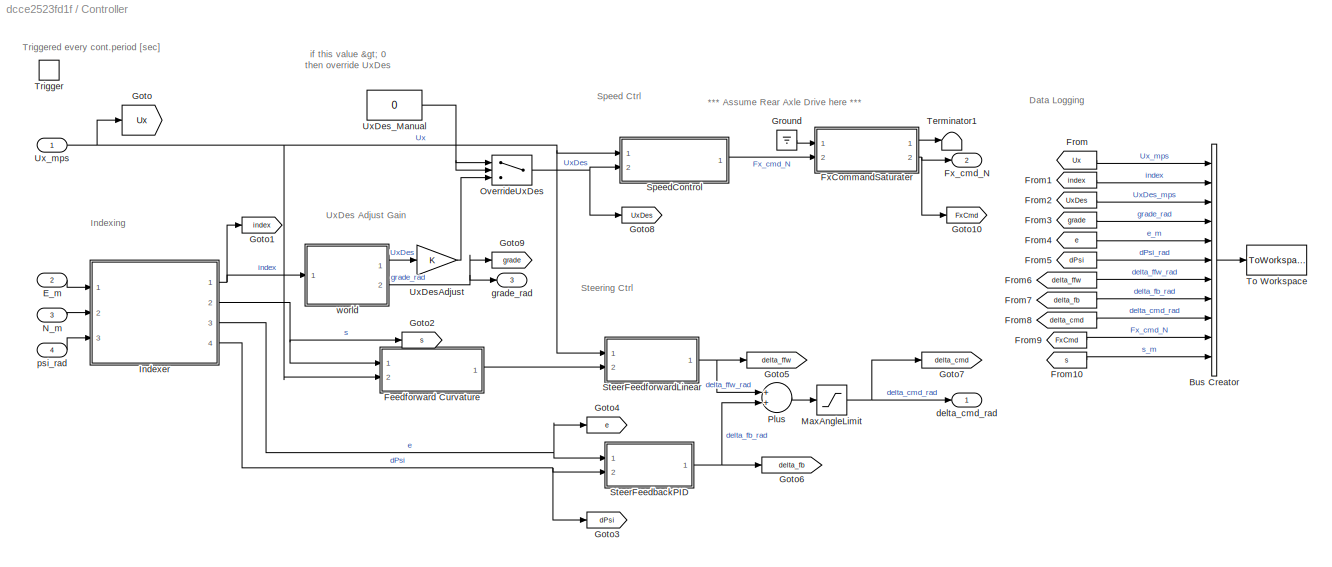
BLOCK [SubSystem] Controller
  Ports = [4, 3, 0, 1]
  RequestExecContextInheritance = off
BLOCK [BusCreator] Controller/Bus Creator
  DisplayOption = bar
  InheritFromInputs = on
  Inputs = 11
  Ports = [11, 1]
BLOCK [Inport] Controller/E_m
  IconDisplay = Port number
  Port = 2
BLOCK [SubSystem] Controller/Feedforward Curvature
  Ports = [2, 1]
  RequestExecContextInheritance = off
BLOCK [Constant] Controller/Feedforward Curvature/Constant
  Value = cont.ffw_time_s
BLOCK [Sum] Controller/Feedforward Curvature/Plus
  InputSameDT = off
  OutDataTypeStr = Inherit: Inherit via internal rule
  Ports = [2, 1]
  SaturateOnIntegerOverflow = off
BLOCK [Product] Controller/Feedforward Curvature/Product
  InputSameDT = off
  OutDataTypeStr = Inherit: Inherit via internal rule
  Ports = [2, 1]
  RndMeth = Floor
  SaturateOnIntegerOverflow = off
BLOCK [Saturate] Controller/Feedforward Curvature/Saturation
  InputPortMap = u0
  Ports = [1, 1]
  UpperLimit = world.s_m(end)
BLOCK [Inport] Controller/Feedforward Curvature/Ux_mps
  IconDisplay = Port number
  Port = 2
BLOCK [Outport] Controller/Feedforward Curvature/k_1pm
  IconDisplay = Port number
BLOCK [Inport] Controller/Feedforward Curvature/s_m
  IconDisplay = Port number
BLOCK [Lookup_n-D] Controller/Feedforward Curvature/world.index from s_m
  BreakpointsForDimension1 = world.s_m
  InternalRulePriority = Speed
  NumberOfTableDimensions = 1
  Ports = [1, 1]
  RndMeth = Simplest
  Table = world.index
BLOCK [Lookup_n-D] Controller/Feedforward Curvature/world.k_1pm
  BreakpointsForDimension1 = world.index
  InternalRulePriority = Speed
  NumberOfTableDimensions = 1
  Ports = [1, 1]
  RndMeth = Simplest
  Table = world.k_1pm
BLOCK [From] Controller/From
  GotoTag = Ux
BLOCK [From] Controller/From1
  GotoTag = index
BLOCK [From] Controller/From10
  GotoTag = s
BLOCK [From] Controller/From2
  GotoTag = UxDes
BLOCK [From] Controller/From3
  GotoTag = grade
BLOCK [From] Controller/From4
  GotoTag = e
BLOCK [From] Controller/From5
  GotoTag = dPsi
BLOCK [From] Controller/From6
  GotoTag = delta_ffw
BLOCK [From] Controller/From7
  GotoTag = delta_fb
BLOCK [From] Controller/From8
  GotoTag = delta_cmd
BLOCK [From] Controller/From9
  GotoTag = FxCmd
BLOCK [SubSystem] Controller/FxCommandSaturater
  Ports = [2, 2]
  RequestExecContextInheritance = off
BLOCK [Constant] Controller/FxCommandSaturater/Constant
  Value = vehicle.a
BLOCK [Constant] Controller/FxCommandSaturater/Constant1
  Value = vehicle.b
BLOCK [Constant] Controller/FxCommandSaturater/Constant2
  Value = vehicle.L
BLOCK [Constant] Controller/FxCommandSaturater/Constant3
  Value = env.mu
BLOCK [Constant] Controller/FxCommandSaturater/Constant4
  Value = vehicle.m
BLOCK [Constant] Controller/FxCommandSaturater/Constant5
  Value = env.g
BLOCK [Outport] Controller/FxCommandSaturater/Fxf
  IconDisplay = Port number
BLOCK [Inport] Controller/FxCommandSaturater/Fxf_in
  IconDisplay = Port number
BLOCK [Outport] Controller/FxCommandSaturater/Fxr
  IconDisplay = Port number
  Port = 2
BLOCK [Inport] Controller/FxCommandSaturater/Fxr_in
  IconDisplay = Port number
  Port = 2
BLOCK [Product] Controller/FxCommandSaturater/Product
  InputSameDT = off
  Inputs = **/
  OutDataTypeStr = Inherit: Inherit via internal rule
  Ports = [3, 1]
  RndMeth = Floor
  SaturateOnIntegerOverflow = off
BLOCK [Product] Controller/FxCommandSaturater/Product2
  InputSameDT = off
  Inputs = 3
  OutDataTypeStr = Inherit: Inherit via internal rule
  Ports = [3, 1]
  RndMeth = Floor
  SaturateOnIntegerOverflow = off
BLOCK [Product] Controller/FxCommandSaturater/Product3
  InputSameDT = off
  Inputs = **/
  OutDataTypeStr = Inherit: Inherit via internal rule
  Ports = [3, 1]
  RndMeth = Floor
  SaturateOnIntegerOverflow = off
BLOCK [SubSystem] Controller/FxCommandSaturater/UpperLowerSaturation
  Ports = [2, 1]
  RequestExecContextInheritance = off
BLOCK [Abs] Controller/FxCommandSaturater/UpperLowerSaturation/Abs
  SaturateOnIntegerOverflow = off
BLOCK [Gain] Controller/FxCommandSaturater/UpperLowerSaturation/Gain
  Gain = -1
  OutDataTypeStr = Inherit: Inherit via internal rule
  ParamDataTypeStr = Inherit: Inherit via internal rule
  SaturateOnIntegerOverflow = off
BLOCK [Inport] Controller/FxCommandSaturater/UpperLowerSaturation/InValue
  IconDisplay = Port number
BLOCK [SubSystem] Controller/FxCommandSaturater/UpperLowerSaturation/LowerSaturation
  Ports = [2, 1]
  RequestExecContextInheritance = off
BLOCK [Reference] Controller/FxCommandSaturater/UpperLowerSaturation/LowerSaturation/Compare To Zero  REF=simulink/Logic and Bit
Operations/Compare
To Zero
  Ports = [1, 1]
  SourceBlock = simulink/Logic and Bit\nOperations/Compare\nTo Zero
  SourceProductBaseCode = SL
  SourceProductName = Simulink
  SourceType = Compare To Zero
BLOCK [Inport] Controller/FxCommandSaturater/UpperLowerSaturation/LowerSaturation/InValue
  IconDisplay = Port number
BLOCK [Sum] Controller/FxCommandSaturater/UpperLowerSaturation/LowerSaturation/Minus
  InputSameDT = off
  Inputs = -+
  OutDataTypeStr = Inherit: Inherit via internal rule
  Ports = [2, 1]
  SaturateOnIntegerOverflow = off
BLOCK [Outport] Controller/FxCommandSaturater/UpperLowerSaturation/LowerSaturation/OutVallue
  IconDisplay = Port number
BLOCK [Switch] Controller/FxCommandSaturater/UpperLowerSaturation/LowerSaturation/Switch
  Criteria = u2 > Threshold
  InputSameDT = off
  SaturateOnIntegerOverflow = off
BLOCK [Inport] Controller/FxCommandSaturater/UpperLowerSaturation/LowerSaturation/Threshold
  IconDisplay = Port number
  Port = 2
BLOCK [Outport] Controller/FxCommandSaturater/UpperLowerSaturation/OutValue
  IconDisplay = Port number
BLOCK [Inport] Controller/FxCommandSaturater/UpperLowerSaturation/Threshold
  IconDisplay = Port number
  Port = 2
BLOCK [SubSystem] Controller/FxCommandSaturater/UpperLowerSaturation/UpperSaturation
  Ports = [2, 1]
  RequestExecContextInheritance = off
BLOCK [Reference] Controller/FxCommandSaturater/UpperLowerSaturation/UpperSaturation/Compare To Zero  REF=simulink/Logic and Bit
Operations/Compare
To Zero
  Ports = [1, 1]
  SourceBlock = simulink/Logic and Bit\nOperations/Compare\nTo Zero
  SourceProductBaseCode = SL
  SourceProductName = Simulink
  SourceType = Compare To Zero
BLOCK [Inport] Controller/FxCommandSaturater/UpperLowerSaturation/UpperSaturation/InValue
  IconDisplay = Port number
BLOCK [Sum] Controller/FxCommandSaturater/UpperLowerSaturation/UpperSaturation/Minus
  InputSameDT = off
  Inputs = +-
  OutDataTypeStr = Inherit: Inherit via internal rule
  Ports = [2, 1]
  SaturateOnIntegerOverflow = off
BLOCK [Outport] Controller/FxCommandSaturater/UpperLowerSaturation/UpperSaturation/OutVallue
  IconDisplay = Port number
BLOCK [Switch] Controller/FxCommandSaturater/UpperLowerSaturation/UpperSaturation/Switch
  Criteria = u2 > Threshold
  InputSameDT = off
  SaturateOnIntegerOverflow = off
BLOCK [Inport] Controller/FxCommandSaturater/UpperLowerSaturation/UpperSaturation/Threshold
  IconDisplay = Port number
  Port = 2
BLOCK [SubSystem] Controller/FxCommandSaturater/UpperLowerSaturation1
  Ports = [2, 1]
  RequestExecContextInheritance = off
BLOCK [Abs] Controller/FxCommandSaturater/UpperLowerSaturation1/Abs
  SaturateOnIntegerOverflow = off
BLOCK [Gain] Controller/FxCommandSaturater/UpperLowerSaturation1/Gain
  Gain = -1
  OutDataTypeStr = Inherit: Inherit via internal rule
  ParamDataTypeStr = Inherit: Inherit via internal rule
  SaturateOnIntegerOverflow = off
BLOCK [Inport] Controller/FxCommandSaturater/UpperLowerSaturation1/InValue
  IconDisplay = Port number
BLOCK [SubSystem] Controller/FxCommandSaturater/UpperLowerSaturation1/LowerSaturation
  Ports = [2, 1]
  RequestExecContextInheritance = off
BLOCK [Reference] Controller/FxCommandSaturater/UpperLowerSaturation1/LowerSaturation/Compare To Zero  REF=simulink/Logic and Bit
Operations/Compare
To Zero
  Ports = [1, 1]
  SourceBlock = simulink/Logic and Bit\nOperations/Compare\nTo Zero
  SourceProductBaseCode = SL
  SourceProductName = Simulink
  SourceType = Compare To Zero
BLOCK [Inport] Controller/FxCommandSaturater/UpperLowerSaturation1/LowerSaturation/InValue
  IconDisplay = Port number
BLOCK [Sum] Controller/FxCommandSaturater/UpperLowerSaturation1/LowerSaturation/Minus
  InputSameDT = off
  Inputs = -+
  OutDataTypeStr = Inherit: Inherit via internal rule
  Ports = [2, 1]
  SaturateOnIntegerOverflow = off
BLOCK [Outport] Controller/FxCommandSaturater/UpperLowerSaturation1/LowerSaturation/OutVallue
  IconDisplay = Port number
BLOCK [Switch] Controller/FxCommandSaturater/UpperLowerSaturation1/LowerSaturation/Switch
  Criteria = u2 > Threshold
  InputSameDT = off
  SaturateOnIntegerOverflow = off
BLOCK [Inport] Controller/FxCommandSaturater/UpperLowerSaturation1/LowerSaturation/Threshold
  IconDisplay = Port number
  Port = 2
BLOCK [Outport] Controller/FxCommandSaturater/UpperLowerSaturation1/OutValue
  IconDisplay = Port number
BLOCK [Inport] Controller/FxCommandSaturater/UpperLowerSaturation1/Threshold
  IconDisplay = Port number
  Port = 2
BLOCK [SubSystem] Controller/FxCommandSaturater/UpperLowerSaturation1/UpperSaturation
  Ports = [2, 1]
  RequestExecContextInheritance = off
BLOCK [Reference] Controller/FxCommandSaturater/UpperLowerSaturation1/UpperSaturation/Compare To Zero  REF=simulink/Logic and Bit
Operations/Compare
To Zero
  Ports = [1, 1]
  SourceBlock = simulink/Logic and Bit\nOperations/Compare\nTo Zero
  SourceProductBaseCode = SL
  SourceProductName = Simulink
  SourceType = Compare To Zero
BLOCK [Inport] Controller/FxCommandSaturater/UpperLowerSaturation1/UpperSaturation/InValue
  IconDisplay = Port number
BLOCK [Sum] Controller/FxCommandSaturater/UpperLowerSaturation1/UpperSaturation/Minus
  InputSameDT = off
  Inputs = +-
  OutDataTypeStr = Inherit: Inherit via internal rule
  Ports = [2, 1]
  SaturateOnIntegerOverflow = off
BLOCK [Outport] Controller/FxCommandSaturater/UpperLowerSaturation1/UpperSaturation/OutVallue
  IconDisplay = Port number
BLOCK [Switch] Controller/FxCommandSaturater/UpperLowerSaturation1/UpperSaturation/Switch
  Criteria = u2 > Threshold
  InputSameDT = off
  SaturateOnIntegerOverflow = off
BLOCK [Inport] Controller/FxCommandSaturater/UpperLowerSaturation1/UpperSaturation/Threshold
  IconDisplay = Port number
  Port = 2
BLOCK [Outport] Controller/Fx_cmd_N
  IconDisplay = Port number
  Port = 2
BLOCK [Goto] Controller/Goto
  GotoTag = Ux
BLOCK [Goto] Controller/Goto1
  GotoTag = index
BLOCK [Goto] Controller/Goto10
  GotoTag = FxCmd
BLOCK [Goto] Controller/Goto2
  GotoTag = s
BLOCK [Goto] Controller/Goto3
  GotoTag = dPsi
BLOCK [Goto] Controller/Goto4
  GotoTag = e
BLOCK [Goto] Controller/Goto5
  GotoTag = delta_ffw
BLOCK [Goto] Controller/Goto6
  GotoTag = delta_fb
BLOCK [Goto] Controller/Goto7
  GotoTag = delta_cmd
BLOCK [Goto] Controller/Goto8
  GotoTag = UxDes
BLOCK [Goto] Controller/Goto9
  GotoTag = grade
BLOCK [Ground] Controller/Ground
BLOCK [SubSystem] Controller/Indexer
  Ports = [3, 4]
  RequestExecContextInheritance = off
BLOCK [SubSystem] Controller/Indexer/CalcLocalCoordinate
  Ports = [4, 3]
  RequestExecContextInheritance = off
BLOCK [SubSystem] Controller/Indexer/CalcLocalCoordinate/2-norm
  Ports = [2, 1]
  RequestExecContextInheritance = off
BLOCK [Inport] Controller/Indexer/CalcLocalCoordinate/2-norm/In1
  IconDisplay = Port number
BLOCK [Inport] Controller/Indexer/CalcLocalCoordinate/2-norm/In2
  IconDisplay = Port number
  Port = 2
BLOCK [Outport] Controller/Indexer/CalcLocalCoordinate/2-norm/Out1
  IconDisplay = Port number
BLOCK [Sum] Controller/Indexer/CalcLocalCoordinate/2-norm/Plus
  InputSameDT = off
  OutDataTypeStr = Inherit: Inherit via internal rule
  Ports = [2, 1]
  SaturateOnIntegerOverflow = off
BLOCK [Sqrt] Controller/Indexer/CalcLocalCoordinate/2-norm/Sqrt
BLOCK [Math] Controller/Indexer/CalcLocalCoordinate/2-norm/Square
  Operator = square
  Ports = [1, 1]
BLOCK [Math] Controller/Indexer/CalcLocalCoordinate/2-norm/Square1
  Operator = square
  Ports = [1, 1]
BLOCK [SubSystem] Controller/Indexer/CalcLocalCoordinate/2-norm1
  Ports = [2, 1]
  RequestExecContextInheritance = off
BLOCK [Inport] Controller/Indexer/CalcLocalCoordinate/2-norm1/In1
  IconDisplay = Port number
BLOCK [Inport] Controller/Indexer/CalcLocalCoordinate/2-norm1/In2
  IconDisplay = Port number
  Port = 2
BLOCK [Outport] Controller/Indexer/CalcLocalCoordinate/2-norm1/Out1
  IconDisplay = Port number
BLOCK [Sum] Controller/Indexer/CalcLocalCoordinate/2-norm1/Plus
  InputSameDT = off
  OutDataTypeStr = Inherit: Inherit via internal rule
  Ports = [2, 1]
  SaturateOnIntegerOverflow = off
BLOCK [Sqrt] Controller/Indexer/CalcLocalCoordinate/2-norm1/Sqrt
BLOCK [Math] Controller/Indexer/CalcLocalCoordinate/2-norm1/Square
  Operator = square
  Ports = [1, 1]
BLOCK [Math] Controller/Indexer/CalcLocalCoordinate/2-norm1/Square1
  Operator = square
  Ports = [1, 1]
BLOCK [SubSystem] Controller/Indexer/CalcLocalCoordinate/2-norm2
  Ports = [2, 1]
  RequestExecContextInheritance = off
BLOCK [Inport] Controller/Indexer/CalcLocalCoordinate/2-norm2/In1
  IconDisplay = Port number
BLOCK [Inport] Controller/Indexer/CalcLocalCoordinate/2-norm2/In2
  IconDisplay = Port number
  Port = 2
BLOCK [Outport] Controller/Indexer/CalcLocalCoordinate/2-norm2/Out1
  IconDisplay = Port number
BLOCK [Sum] Controller/Indexer/CalcLocalCoordinate/2-norm2/Plus
  InputSameDT = off
  OutDataTypeStr = Inherit: Inherit via internal rule
  Ports = [2, 1]
  SaturateOnIntegerOverflow = off
BLOCK [Sqrt] Controller/Indexer/CalcLocalCoordinate/2-norm2/Sqrt
BLOCK [Math] Controller/Indexer/CalcLocalCoordinate/2-norm2/Square
  Operator = square
  Ports = [1, 1]
BLOCK [Math] Controller/Indexer/CalcLocalCoordinate/2-norm2/Square1
  Operator = square
  Ports = [1, 1]
BLOCK [Constant] Controller/Indexer/CalcLocalCoordinate/Constant
BLOCK [Constant] Controller/Indexer/CalcLocalCoordinate/Constant1
  Value = 2
BLOCK [Trigonometry] Controller/Indexer/CalcLocalCoordinate/Cos
  Operator = cos
  Ports = [1, 1]
BLOCK [Inport] Controller/Indexer/CalcLocalCoordinate/E
  IconDisplay = Port number
  Port = 2
BLOCK [Sum] Controller/Indexer/CalcLocalCoordinate/E-Eh
  InputSameDT = off
  Inputs = +-
  OutDataTypeStr = Inherit: Inherit via internal rule
  Ports = [2, 1]
  SaturateOnIntegerOverflow = off
BLOCK [Sum] Controller/Indexer/CalcLocalCoordinate/E-El
  InputSameDT = off
  Inputs = +-
  OutDataTypeStr = Inherit: Inherit via internal rule
  Ports = [2, 1]
  SaturateOnIntegerOverflow = off
BLOCK [Sum] Controller/Indexer/CalcLocalCoordinate/Eh-El
  InputSameDT = off
  Inputs = +-
  OutDataTypeStr = Inherit: Inherit via internal rule
  Ports = [2, 1]
  SaturateOnIntegerOverflow = off
BLOCK [Gain] Controller/Indexer/CalcLocalCoordinate/Gain
  Gain = -1
  OutDataTypeStr = Inherit: Inherit via internal rule
  ParamDataTypeStr = Inherit: Inherit via internal rule
  SaturateOnIntegerOverflow = off
BLOCK [Sum] Controller/Indexer/CalcLocalCoordinate/Minus1
  InputSameDT = off
  Inputs = +-
  OutDataTypeStr = Inherit: Inherit via internal rule
  Ports = [2, 1]
  SaturateOnIntegerOverflow = off
BLOCK [Sum] Controller/Indexer/CalcLocalCoordinate/Minus6
  InputSameDT = off
  Inputs = +-+
  OutDataTypeStr = Inherit: Inherit via internal rule
  Ports = [3, 1]
  SaturateOnIntegerOverflow = off
BLOCK [Sum] Controller/Indexer/CalcLocalCoordinate/Minus7
  InputSameDT = off
  Inputs = +-
  OutDataTypeStr = Inherit: Inherit via internal rule
  Ports = [2, 1]
  SaturateOnIntegerOverflow = off
BLOCK [Sum] Controller/Indexer/CalcLocalCoordinate/Minus8
  InputSameDT = off
  OutDataTypeStr = Inherit: Inherit via internal rule
  Ports = [2, 1]
  SaturateOnIntegerOverflow = off
BLOCK [Inport] Controller/Indexer/CalcLocalCoordinate/N
  IconDisplay = Port number
  Port = 3
BLOCK [Sum] Controller/Indexer/CalcLocalCoordinate/N-Nh
  InputSameDT = off
  Inputs = +-
  OutDataTypeStr = Inherit: Inherit via internal rule
  Ports = [2, 1]
  SaturateOnIntegerOverflow = off
BLOCK [Sum] Controller/Indexer/CalcLocalCoordinate/N-Nl
  InputSameDT = off
  Inputs = +-
  OutDataTypeStr = Inherit: Inherit via internal rule
  Ports = [2, 1]
  SaturateOnIntegerOverflow = off
BLOCK [Sum] Controller/Indexer/CalcLocalCoordinate/Nh-Nl
  InputSameDT = off
  Inputs = +-
  OutDataTypeStr = Inherit: Inherit via internal rule
  Ports = [2, 1]
  SaturateOnIntegerOverflow = off
BLOCK [Sum] Controller/Indexer/CalcLocalCoordinate/Plus
  InputSameDT = off
  OutDataTypeStr = Inherit: Inherit via internal rule
  Ports = [2, 1]
  SaturateOnIntegerOverflow = off
BLOCK [Product] Controller/Indexer/CalcLocalCoordinate/Product
  InputSameDT = off
  Inputs = *//
  OutDataTypeStr = Inherit: Inherit via internal rule
  Ports = [3, 1]
  RndMeth = Floor
  SaturateOnIntegerOverflow = off
BLOCK [Product] Controller/Indexer/CalcLocalCoordinate/Product2
  InputSameDT = off
  OutDataTypeStr = Inherit: Inherit via internal rule
  Ports = [2, 1]
  RndMeth = Floor
  SaturateOnIntegerOverflow = off
BLOCK [Scope] Controller/Indexer/CalcLocalCoordinate/Scope
  Floating = off
  NumInputPorts = 1
  Ports = [1]
  ScopeSpecificationString = Simulink.scopes.TimeScopeBlockCfg('CurrentConfiguration', extmgr.ConfigurationSet(extmgr.Configuration('Core','General UI',true),extmgr.Configuration('Core','Source UI',true),extmgr.Configuration('Sources','WiredSimulink',true,'DataLoggingVariableName','ScopeData1'),extmgr.Configuration('Visuals','Time Domain',true,'SerializedDisplays',{struct('MinYLimReal','-1.25','MaxYLimReal','1.25','YLabelReal...<+1405ch>
BLOCK [Trigonometry] Controller/Indexer/CalcLocalCoordinate/Sin
  Ports = [1, 1]
BLOCK [Sqrt] Controller/Indexer/CalcLocalCoordinate/Sqrt
BLOCK [Math] Controller/Indexer/CalcLocalCoordinate/Square
  Operator = square
  Ports = [1, 1]
BLOCK [Math] Controller/Indexer/CalcLocalCoordinate/Square1
  Operator = square
  Ports = [1, 1]
BLOCK [Math] Controller/Indexer/CalcLocalCoordinate/Square2
  Operator = square
  Ports = [1, 1]
BLOCK [Math] Controller/Indexer/CalcLocalCoordinate/Square3
  Operator = square
  Ports = [1, 1]
BLOCK [Terminator] Controller/Indexer/CalcLocalCoordinate/Terminator
BLOCK [SubSystem] Controller/Indexer/CalcLocalCoordinate/crosssign
  Ports = [4, 1]
  RequestExecContextInheritance = off
BLOCK [Sum] Controller/Indexer/CalcLocalCoordinate/crosssign/Minus
  InputSameDT = off
  Inputs = +-
  OutDataTypeStr = Inherit: Inherit via internal rule
  Ports = [2, 1]
  SaturateOnIntegerOverflow = off
BLOCK [Product] Controller/Indexer/CalcLocalCoordinate/crosssign/Product
  InputSameDT = off
  OutDataTypeStr = Inherit: Inherit via internal rule
  Ports = [2, 1]
  RndMeth = Floor
  SaturateOnIntegerOverflow = off
BLOCK [Product] Controller/Indexer/CalcLocalCoordinate/crosssign/Product1
  InputSameDT = off
  OutDataTypeStr = Inherit: Inherit via internal rule
  Ports = [2, 1]
  RndMeth = Floor
  SaturateOnIntegerOverflow = off
BLOCK [Signum] Controller/Indexer/CalcLocalCoordinate/crosssign/Sign
BLOCK [Outport] Controller/Indexer/CalcLocalCoordinate/crosssign/crosssign(U,V)
  IconDisplay = Port number
BLOCK [Inport] Controller/Indexer/CalcLocalCoordinate/crosssign/u1
  IconDisplay = Port number
BLOCK [Inport] Controller/Indexer/CalcLocalCoordinate/crosssign/u2
  IconDisplay = Port number
  Port = 2
BLOCK [Inport] Controller/Indexer/CalcLocalCoordinate/crosssign/v1
  IconDisplay = Port number
  Port = 3
BLOCK [Inport] Controller/Indexer/CalcLocalCoordinate/crosssign/v2
  IconDisplay = Port number
  Port = 4
BLOCK [Inport] Controller/Indexer/CalcLocalCoordinate/currentIdx
  IconDisplay = Port number
BLOCK [Outport] Controller/Indexer/CalcLocalCoordinate/dpsi
  IconDisplay = Port number
  Port = 3
BLOCK [Outport] Controller/Indexer/CalcLocalCoordinate/e
  IconDisplay = Port number
  Port = 2
BLOCK [SubSystem] Controller/Indexer/CalcLocalCoordinate/hiIndex
  Ports = [1, 3]
  RequestExecContextInheritance = off
BLOCK [Inport] Controller/Indexer/CalcLocalCoordinate/hiIndex/index
  IconDisplay = Port number
BLOCK [Outport] Controller/Indexer/CalcLocalCoordinate/hiIndex/posE
  IconDisplay = Port number
BLOCK [Outport] Controller/Indexer/CalcLocalCoordinate/hiIndex/posN
  IconDisplay = Port number
  Port = 2
BLOCK [Outport] Controller/Indexer/CalcLocalCoordinate/hiIndex/posPsi
  IconDisplay = Port number
  Port = 3
BLOCK [Lookup_n-D] Controller/Indexer/CalcLocalCoordinate/hiIndex/world.posE_m
  BreakpointsForDimension1 = world.index
  InternalRulePriority = Speed
  NumberOfTableDimensions = 1
  Ports = [1, 1]
  RndMeth = Simplest
  Table = world.posE_m
BLOCK [Lookup_n-D] Controller/Indexer/CalcLocalCoordinate/hiIndex/world.posN_m
  BreakpointsForDimension1 = world.index
  InternalRulePriority = Speed
  NumberOfTableDimensions = 1
  Ports = [1, 1]
  RndMeth = Simplest
  Table = world.posN_m
BLOCK [Lookup_n-D] Controller/Indexer/CalcLocalCoordinate/hiIndex/world.psi_rad
  BreakpointsForDimension1 = world.index
  InternalRulePriority = Speed
  NumberOfTableDimensions = 1
  Ports = [1, 1]
  RndMeth = Simplest
  Table = world.psi_rad
BLOCK [Saturate] Controller/Indexer/CalcLocalCoordinate/larger than 0
  InputPortMap = u0
  LowerLimit = 0
  Ports = [1, 1]
  UpperLimit = inf
BLOCK [SubSystem] Controller/Indexer/CalcLocalCoordinate/loIndex
  Ports = [1, 3]
  RequestExecContextInheritance = off
BLOCK [Inport] Controller/Indexer/CalcLocalCoordinate/loIndex/index
  IconDisplay = Port number
BLOCK [Outport] Controller/Indexer/CalcLocalCoordinate/loIndex/posE
  IconDisplay = Port number
BLOCK [Outport] Controller/Indexer/CalcLocalCoordinate/loIndex/posN
  IconDisplay = Port number
  Port = 2
BLOCK [Outport] Controller/Indexer/CalcLocalCoordinate/loIndex/posPsi
  IconDisplay = Port number
  Port = 3
BLOCK [Lookup_n-D] Controller/Indexer/CalcLocalCoordinate/loIndex/world.posE_m
  BreakpointsForDimension1 = world.index
  InternalRulePriority = Speed
  NumberOfTableDimensions = 1
  Ports = [1, 1]
  RndMeth = Simplest
  Table = world.posE_m
BLOCK [Lookup_n-D] Controller/Indexer/CalcLocalCoordinate/loIndex/world.posN_m
  BreakpointsForDimension1 = world.index
  InternalRulePriority = Speed
  NumberOfTableDimensions = 1
  Ports = [1, 1]
  RndMeth = Simplest
  Table = world.posN_m
BLOCK [Lookup_n-D] Controller/Indexer/CalcLocalCoordinate/loIndex/world.psi_rad
  BreakpointsForDimension1 = world.index
  InternalRulePriority = Speed
  NumberOfTableDimensions = 1
  Ports = [1, 1]
  RndMeth = Simplest
  Table = world.psi_rad
BLOCK [SubSystem] Controller/Indexer/CalcLocalCoordinate/pi_to_pi1
  Ports = [1, 1]
  RequestExecContextInheritance = off
BLOCK [Reference] Controller/Indexer/CalcLocalCoordinate/pi_to_pi1/Compare To Constant  REF=simulink/Logic and Bit
Operations/Compare
To Constant
  Ports = [1, 1]
  SourceBlock = simulink/Logic and Bit\nOperations/Compare\nTo Constant
  SourceProductBaseCode = SL
  SourceProductName = Simulink
  SourceType = Compare To Constant
BLOCK [Reference] Controller/Indexer/CalcLocalCoordinate/pi_to_pi1/Compare To Constant1  REF=simulink/Logic and Bit
Operations/Compare
To Constant
  Ports = [1, 1]
  SourceBlock = simulink/Logic and Bit\nOperations/Compare\nTo Constant
  SourceProductBaseCode = SL
  SourceProductName = Simulink
  SourceType = Compare To Constant
BLOCK [Constant] Controller/Indexer/CalcLocalCoordinate/pi_to_pi1/Constant
  Value = 2*pi
BLOCK [Sum] Controller/Indexer/CalcLocalCoordinate/pi_to_pi1/Minus
  InputSameDT = off
  Inputs = +-
  OutDataTypeStr = Inherit: Inherit via internal rule
  Ports = [2, 1]
  SaturateOnIntegerOverflow = off
BLOCK [Sum] Controller/Indexer/CalcLocalCoordinate/pi_to_pi1/Plus
  InputSameDT = off
  OutDataTypeStr = Inherit: Inherit via internal rule
  Ports = [2, 1]
  SaturateOnIntegerOverflow = off
BLOCK [Switch] Controller/Indexer/CalcLocalCoordinate/pi_to_pi1/Switch
  Criteria = u2 > Threshold
  InputSameDT = off
  SaturateOnIntegerOverflow = off
BLOCK [Switch] Controller/Indexer/CalcLocalCoordinate/pi_to_pi1/Switch1
  Criteria = u2 > Threshold
  InputSameDT = off
  SaturateOnIntegerOverflow = off
BLOCK [Inport] Controller/Indexer/CalcLocalCoordinate/pi_to_pi1/in_rad
  IconDisplay = Port number
BLOCK [Outport] Controller/Indexer/CalcLocalCoordinate/pi_to_pi1/out_rad
  IconDisplay = Port number
BLOCK [Inport] Controller/Indexer/CalcLocalCoordinate/psi
  IconDisplay = Port number
  Port = 4
BLOCK [Outport] Controller/Indexer/CalcLocalCoordinate/s
  IconDisplay = Port number
BLOCK [Lookup_n-D] Controller/Indexer/CalcLocalCoordinate/world.s
  BreakpointsForDimension1 = world.index
  InternalRulePriority = Speed
  NumberOfTableDimensions = 1
  Ports = [1, 1]
  RndMeth = Simplest
  Table = world.s_m
BLOCK [Delay] Controller/Indexer/Delay1
  DelayLength = 1
  InputPortMap = u0
  Ports = [1, 1]
BLOCK [Inport] Controller/Indexer/E
  IconDisplay = Port number
BLOCK [SubSystem] Controller/Indexer/FindNearestIndex
  Ports = [3, 1]
  RequestExecContextInheritance = off
BLOCK [Inport] Controller/Indexer/FindNearestIndex/E
  IconDisplay = Port number
  Port = 2
BLOCK [SubSystem] Controller/Indexer/FindNearestIndex/ForwardSearch
  Ports = [3, 1]
  RequestExecContextInheritance = off
  TreatAsAtomicUnit = on
BLOCK [Constant] Controller/Indexer/FindNearestIndex/ForwardSearch/Constant
BLOCK [Constant] Controller/Indexer/FindNearestIndex/ForwardSearch/Constant1
BLOCK [Constant] Controller/Indexer/FindNearestIndex/ForwardSearch/Constant2
  Value = 2
BLOCK [Constant] Controller/Indexer/FindNearestIndex/ForwardSearch/Constant3
  Value = 3
BLOCK [Constant] Controller/Indexer/FindNearestIndex/ForwardSearch/Constant4
  Value = 4
BLOCK [Inport] Controller/Indexer/FindNearestIndex/ForwardSearch/CurrentIndex
  IconDisplay = Port number
BLOCK [Inport] Controller/Indexer/FindNearestIndex/ForwardSearch/E
  IconDisplay = Port number
  Port = 2
BLOCK [From] Controller/Indexer/FindNearestIndex/ForwardSearch/From
  GotoTag = E
BLOCK [From] Controller/Indexer/FindNearestIndex/ForwardSearch/From1
  GotoTag = E
BLOCK [From] Controller/Indexer/FindNearestIndex/ForwardSearch/From2
  GotoTag = E
BLOCK [From] Controller/Indexer/FindNearestIndex/ForwardSearch/From3
  GotoTag = E
BLOCK [From] Controller/Indexer/FindNearestIndex/ForwardSearch/From4
  GotoTag = E
BLOCK [From] Controller/Indexer/FindNearestIndex/ForwardSearch/From5
  GotoTag = N
BLOCK [From] Controller/Indexer/FindNearestIndex/ForwardSearch/From6
  GotoTag = N
BLOCK [From] Controller/Indexer/FindNearestIndex/ForwardSearch/From7
  GotoTag = N
BLOCK [From] Controller/Indexer/FindNearestIndex/ForwardSearch/From8
  GotoTag = N
BLOCK [From] Controller/Indexer/FindNearestIndex/ForwardSearch/From9
  GotoTag = N
BLOCK [Goto] Controller/Indexer/FindNearestIndex/ForwardSearch/Goto
  GotoTag = E
BLOCK [Goto] Controller/Indexer/FindNearestIndex/ForwardSearch/Goto1
  GotoTag = N
BLOCK [Inport] Controller/Indexer/FindNearestIndex/ForwardSearch/N
  IconDisplay = Port number
  Port = 3
BLOCK [Sum] Controller/Indexer/FindNearestIndex/ForwardSearch/Plus
  InputSameDT = off
  OutDataTypeStr = Inherit: Inherit via internal rule
  Ports = [2, 1]
  SaturateOnIntegerOverflow = off
BLOCK [Sum] Controller/Indexer/FindNearestIndex/ForwardSearch/Plus1
  InputSameDT = off
  OutDataTypeStr = Inherit: Inherit via internal rule
  Ports = [2, 1]
  SaturateOnIntegerOverflow = off
BLOCK [Sum] Controller/Indexer/FindNearestIndex/ForwardSearch/Plus2
  InputSameDT = off
  OutDataTypeStr = Inherit: Inherit via internal rule
  Ports = [2, 1]
  SaturateOnIntegerOverflow = off
BLOCK [Sum] Controller/Indexer/FindNearestIndex/ForwardSearch/Plus3
  InputSameDT = off
  OutDataTypeStr = Inherit: Inherit via internal rule
  Ports = [2, 1]
  SaturateOnIntegerOverflow = off
BLOCK [Sum] Controller/Indexer/FindNearestIndex/ForwardSearch/Plus4
  InputSameDT = off
  Inputs = +-
  OutDataTypeStr = Inherit: Inherit via internal rule
  Ports = [2, 1]
  SaturateOnIntegerOverflow = off
BLOCK [Saturate] Controller/Indexer/FindNearestIndex/ForwardSearch/Saturation
  InputPortMap = u0
  LowerLimit = 1
  Ports = [1, 1]
  UpperLimit = world.maxIndex
BLOCK [SubSystem] Controller/Indexer/FindNearestIndex/ForwardSearch/Subsystem
  Ports = [3, 1]
  RequestExecContextInheritance = off
BLOCK [Inport] Controller/Indexer/FindNearestIndex/ForwardSearch/Subsystem/CurrentIndex
  IconDisplay = Port number
BLOCK [Inport] Controller/Indexer/FindNearestIndex/ForwardSearch/Subsystem/E
  IconDisplay = Port number
  Port = 2
BLOCK [Inport] Controller/Indexer/FindNearestIndex/ForwardSearch/Subsystem/N
  IconDisplay = Port number
  Port = 3
BLOCK [Saturate] Controller/Indexer/FindNearestIndex/ForwardSearch/Subsystem/Saturation
  InputPortMap = u0
  LowerLimit = 1
  Ports = [1, 1]
  UpperLimit = world.maxIndex
BLOCK [Outport] Controller/Indexer/FindNearestIndex/ForwardSearch/Subsystem/Squsum
  IconDisplay = Port number
BLOCK [SubSystem] Controller/Indexer/FindNearestIndex/ForwardSearch/Subsystem/squaresum
  Ports = [4, 1]
  RequestExecContextInheritance = off
BLOCK [Inport] Controller/Indexer/FindNearestIndex/ForwardSearch/Subsystem/squaresum/E1
  IconDisplay = Port number
BLOCK [Inport] Controller/Indexer/FindNearestIndex/ForwardSearch/Subsystem/squaresum/E2
  IconDisplay = Port number
  Port = 3
BLOCK [Sum] Controller/Indexer/FindNearestIndex/ForwardSearch/Subsystem/squaresum/Minus
  InputSameDT = off
  Inputs = +-
  OutDataTypeStr = Inherit: Inherit via internal rule
  Ports = [2, 1]
  SaturateOnIntegerOverflow = off
BLOCK [Sum] Controller/Indexer/FindNearestIndex/ForwardSearch/Subsystem/squaresum/Minus1
  InputSameDT = off
  Inputs = +-
  OutDataTypeStr = Inherit: Inherit via internal rule
  Ports = [2, 1]
  SaturateOnIntegerOverflow = off
BLOCK [Inport] Controller/Indexer/FindNearestIndex/ForwardSearch/Subsystem/squaresum/N1
  IconDisplay = Port number
  Port = 2
BLOCK [Inport] Controller/Indexer/FindNearestIndex/ForwardSearch/Subsystem/squaresum/N2
  IconDisplay = Port number
  Port = 4
BLOCK [Sum] Controller/Indexer/FindNearestIndex/ForwardSearch/Subsystem/squaresum/Plus
  InputSameDT = off
  OutDataTypeStr = Inherit: Inherit via internal rule
  Ports = [2, 1]
  SaturateOnIntegerOverflow = off
BLOCK [Math] Controller/Indexer/FindNearestIndex/ForwardSearch/Subsystem/squaresum/Square
  Operator = square
  Ports = [1, 1]
BLOCK [Math] Controller/Indexer/FindNearestIndex/ForwardSearch/Subsystem/squaresum/Square1
  Operator = square
  Ports = [1, 1]
BLOCK [Outport] Controller/Indexer/FindNearestIndex/ForwardSearch/Subsystem/squaresum/squsum
  IconDisplay = Port number
BLOCK [SubSystem] Controller/Indexer/FindNearestIndex/ForwardSearch/Subsystem/world
  Ports = [1, 2]
  RequestExecContextInheritance = off
BLOCK [Inport] Controller/Indexer/FindNearestIndex/ForwardSearch/Subsystem/world/index
  IconDisplay = Port number
BLOCK [Outport] Controller/Indexer/FindNearestIndex/ForwardSearch/Subsystem/world/posE
  IconDisplay = Port number
BLOCK [Outport] Controller/Indexer/FindNearestIndex/ForwardSearch/Subsystem/world/posN
  IconDisplay = Port number
  Port = 2
BLOCK [Lookup_n-D] Controller/Indexer/FindNearestIndex/ForwardSearch/Subsystem/world/world.posE_m
  BreakpointsForDimension1 = world.index
  InternalRulePriority = Speed
  NumberOfTableDimensions = 1
  Ports = [1, 1]
  RndMeth = Simplest
  Table = world.posE_m
BLOCK [Lookup_n-D] Controller/Indexer/FindNearestIndex/ForwardSearch/Subsystem/world/world.posN_m
  BreakpointsForDimension1 = world.index
  InternalRulePriority = Speed
  NumberOfTableDimensions = 1
  Ports = [1, 1]
  RndMeth = Simplest
  Table = world.posN_m
BLOCK [SubSystem] Controller/Indexer/FindNearestIndex/ForwardSearch/Subsystem1
  Ports = [3, 1]
  RequestExecContextInheritance = off
BLOCK [Inport] Controller/Indexer/FindNearestIndex/ForwardSearch/Subsystem1/CurrentIndex
  IconDisplay = Port number
BLOCK [Inport] Controller/Indexer/FindNearestIndex/ForwardSearch/Subsystem1/E
  IconDisplay = Port number
  Port = 2
BLOCK [Inport] Controller/Indexer/FindNearestIndex/ForwardSearch/Subsystem1/N
  IconDisplay = Port number
  Port = 3
BLOCK [Saturate] Controller/Indexer/FindNearestIndex/ForwardSearch/Subsystem1/Saturation
  InputPortMap = u0
  LowerLimit = 1
  Ports = [1, 1]
  UpperLimit = world.maxIndex
BLOCK [Outport] Controller/Indexer/FindNearestIndex/ForwardSearch/Subsystem1/Squsum
  IconDisplay = Port number
BLOCK [SubSystem] Controller/Indexer/FindNearestIndex/ForwardSearch/Subsystem1/squaresum
  Ports = [4, 1]
  RequestExecContextInheritance = off
BLOCK [Inport] Controller/Indexer/FindNearestIndex/ForwardSearch/Subsystem1/squaresum/E1
  IconDisplay = Port number
BLOCK [Inport] Controller/Indexer/FindNearestIndex/ForwardSearch/Subsystem1/squaresum/E2
  IconDisplay = Port number
  Port = 3
BLOCK [Sum] Controller/Indexer/FindNearestIndex/ForwardSearch/Subsystem1/squaresum/Minus
  InputSameDT = off
  Inputs = +-
  OutDataTypeStr = Inherit: Inherit via internal rule
  Ports = [2, 1]
  SaturateOnIntegerOverflow = off
BLOCK [Sum] Controller/Indexer/FindNearestIndex/ForwardSearch/Subsystem1/squaresum/Minus1
  InputSameDT = off
  Inputs = +-
  OutDataTypeStr = Inherit: Inherit via internal rule
  Ports = [2, 1]
  SaturateOnIntegerOverflow = off
BLOCK [Inport] Controller/Indexer/FindNearestIndex/ForwardSearch/Subsystem1/squaresum/N1
  IconDisplay = Port number
  Port = 2
BLOCK [Inport] Controller/Indexer/FindNearestIndex/ForwardSearch/Subsystem1/squaresum/N2
  IconDisplay = Port number
  Port = 4
BLOCK [Sum] Controller/Indexer/FindNearestIndex/ForwardSearch/Subsystem1/squaresum/Plus
  InputSameDT = off
  OutDataTypeStr = Inherit: Inherit via internal rule
  Ports = [2, 1]
  SaturateOnIntegerOverflow = off
BLOCK [Math] Controller/Indexer/FindNearestIndex/ForwardSearch/Subsystem1/squaresum/Square
  Operator = square
  Ports = [1, 1]
BLOCK [Math] Controller/Indexer/FindNearestIndex/ForwardSearch/Subsystem1/squaresum/Square1
  Operator = square
  Ports = [1, 1]
BLOCK [Outport] Controller/Indexer/FindNearestIndex/ForwardSearch/Subsystem1/squaresum/squsum
  IconDisplay = Port number
BLOCK [SubSystem] Controller/Indexer/FindNearestIndex/ForwardSearch/Subsystem1/world
  Ports = [1, 2]
  RequestExecContextInheritance = off
BLOCK [Inport] Controller/Indexer/FindNearestIndex/ForwardSearch/Subsystem1/world/index
  IconDisplay = Port number
BLOCK [Outport] Controller/Indexer/FindNearestIndex/ForwardSearch/Subsystem1/world/posE
  IconDisplay = Port number
BLOCK [Outport] Controller/Indexer/FindNearestIndex/ForwardSearch/Subsystem1/world/posN
  IconDisplay = Port number
  Port = 2
BLOCK [Lookup_n-D] Controller/Indexer/FindNearestIndex/ForwardSearch/Subsystem1/world/world.posE_m
  BreakpointsForDimension1 = world.index
  InternalRulePriority = Speed
  NumberOfTableDimensions = 1
  Ports = [1, 1]
  RndMeth = Simplest
  Table = world.posE_m
BLOCK [Lookup_n-D] Controller/Indexer/FindNearestIndex/ForwardSearch/Subsystem1/world/world.posN_m
  BreakpointsForDimension1 = world.index
  InternalRulePriority = Speed
  NumberOfTableDimensions = 1
  Ports = [1, 1]
  RndMeth = Simplest
  Table = world.posN_m
BLOCK [SubSystem] Controller/Indexer/FindNearestIndex/ForwardSearch/Subsystem2
  Ports = [3, 1]
  RequestExecContextInheritance = off
BLOCK [Inport] Controller/Indexer/FindNearestIndex/ForwardSearch/Subsystem2/CurrentIndex
  IconDisplay = Port number
BLOCK [Inport] Controller/Indexer/FindNearestIndex/ForwardSearch/Subsystem2/E
  IconDisplay = Port number
  Port = 2
BLOCK [Inport] Controller/Indexer/FindNearestIndex/ForwardSearch/Subsystem2/N
  IconDisplay = Port number
  Port = 3
BLOCK [Saturate] Controller/Indexer/FindNearestIndex/ForwardSearch/Subsystem2/Saturation
  InputPortMap = u0
  LowerLimit = 1
  Ports = [1, 1]
  UpperLimit = world.maxIndex
BLOCK [Outport] Controller/Indexer/FindNearestIndex/ForwardSearch/Subsystem2/Squsum
  IconDisplay = Port number
BLOCK [SubSystem] Controller/Indexer/FindNearestIndex/ForwardSearch/Subsystem2/squaresum
  Ports = [4, 1]
  RequestExecContextInheritance = off
BLOCK [Inport] Controller/Indexer/FindNearestIndex/ForwardSearch/Subsystem2/squaresum/E1
  IconDisplay = Port number
BLOCK [Inport] Controller/Indexer/FindNearestIndex/ForwardSearch/Subsystem2/squaresum/E2
  IconDisplay = Port number
  Port = 3
BLOCK [Sum] Controller/Indexer/FindNearestIndex/ForwardSearch/Subsystem2/squaresum/Minus
  InputSameDT = off
  Inputs = +-
  OutDataTypeStr = Inherit: Inherit via internal rule
  Ports = [2, 1]
  SaturateOnIntegerOverflow = off
BLOCK [Sum] Controller/Indexer/FindNearestIndex/ForwardSearch/Subsystem2/squaresum/Minus1
  InputSameDT = off
  Inputs = +-
  OutDataTypeStr = Inherit: Inherit via internal rule
  Ports = [2, 1]
  SaturateOnIntegerOverflow = off
BLOCK [Inport] Controller/Indexer/FindNearestIndex/ForwardSearch/Subsystem2/squaresum/N1
  IconDisplay = Port number
  Port = 2
BLOCK [Inport] Controller/Indexer/FindNearestIndex/ForwardSearch/Subsystem2/squaresum/N2
  IconDisplay = Port number
  Port = 4
BLOCK [Sum] Controller/Indexer/FindNearestIndex/ForwardSearch/Subsystem2/squaresum/Plus
  InputSameDT = off
  OutDataTypeStr = Inherit: Inherit via internal rule
  Ports = [2, 1]
  SaturateOnIntegerOverflow = off
BLOCK [Math] Controller/Indexer/FindNearestIndex/ForwardSearch/Subsystem2/squaresum/Square
  Operator = square
  Ports = [1, 1]
BLOCK [Math] Controller/Indexer/FindNearestIndex/ForwardSearch/Subsystem2/squaresum/Square1
  Operator = square
  Ports = [1, 1]
BLOCK [Outport] Controller/Indexer/FindNearestIndex/ForwardSearch/Subsystem2/squaresum/squsum
  IconDisplay = Port number
BLOCK [SubSystem] Controller/Indexer/FindNearestIndex/ForwardSearch/Subsystem2/world
  Ports = [1, 2]
  RequestExecContextInheritance = off
BLOCK [Inport] Controller/Indexer/FindNearestIndex/ForwardSearch/Subsystem2/world/index
  IconDisplay = Port number
BLOCK [Outport] Controller/Indexer/FindNearestIndex/ForwardSearch/Subsystem2/world/posE
  IconDisplay = Port number
BLOCK [Outport] Controller/Indexer/FindNearestIndex/ForwardSearch/Subsystem2/world/posN
  IconDisplay = Port number
  Port = 2
BLOCK [Lookup_n-D] Controller/Indexer/FindNearestIndex/ForwardSearch/Subsystem2/world/world.posE_m
  BreakpointsForDimension1 = world.index
  InternalRulePriority = Speed
  NumberOfTableDimensions = 1
  Ports = [1, 1]
  RndMeth = Simplest
  Table = world.posE_m
BLOCK [Lookup_n-D] Controller/Indexer/FindNearestIndex/ForwardSearch/Subsystem2/world/world.posN_m
  BreakpointsForDimension1 = world.index
  InternalRulePriority = Speed
  NumberOfTableDimensions = 1
  Ports = [1, 1]
  RndMeth = Simplest
  Table = world.posN_m
BLOCK [SubSystem] Controller/Indexer/FindNearestIndex/ForwardSearch/Subsystem3
  Ports = [3, 1]
  RequestExecContextInheritance = off
BLOCK [Inport] Controller/Indexer/FindNearestIndex/ForwardSearch/Subsystem3/CurrentIndex
  IconDisplay = Port number
BLOCK [Inport] Controller/Indexer/FindNearestIndex/ForwardSearch/Subsystem3/E
  IconDisplay = Port number
  Port = 2
BLOCK [Inport] Controller/Indexer/FindNearestIndex/ForwardSearch/Subsystem3/N
  IconDisplay = Port number
  Port = 3
BLOCK [Saturate] Controller/Indexer/FindNearestIndex/ForwardSearch/Subsystem3/Saturation
  InputPortMap = u0
  LowerLimit = 1
  Ports = [1, 1]
  UpperLimit = world.maxIndex
BLOCK [Outport] Controller/Indexer/FindNearestIndex/ForwardSearch/Subsystem3/Squsum
  IconDisplay = Port number
BLOCK [SubSystem] Controller/Indexer/FindNearestIndex/ForwardSearch/Subsystem3/squaresum
  Ports = [4, 1]
  RequestExecContextInheritance = off
BLOCK [Inport] Controller/Indexer/FindNearestIndex/ForwardSearch/Subsystem3/squaresum/E1
  IconDisplay = Port number
BLOCK [Inport] Controller/Indexer/FindNearestIndex/ForwardSearch/Subsystem3/squaresum/E2
  IconDisplay = Port number
  Port = 3
BLOCK [Sum] Controller/Indexer/FindNearestIndex/ForwardSearch/Subsystem3/squaresum/Minus
  InputSameDT = off
  Inputs = +-
  OutDataTypeStr = Inherit: Inherit via internal rule
  Ports = [2, 1]
  SaturateOnIntegerOverflow = off
BLOCK [Sum] Controller/Indexer/FindNearestIndex/ForwardSearch/Subsystem3/squaresum/Minus1
  InputSameDT = off
  Inputs = +-
  OutDataTypeStr = Inherit: Inherit via internal rule
  Ports = [2, 1]
  SaturateOnIntegerOverflow = off
BLOCK [Inport] Controller/Indexer/FindNearestIndex/ForwardSearch/Subsystem3/squaresum/N1
  IconDisplay = Port number
  Port = 2
BLOCK [Inport] Controller/Indexer/FindNearestIndex/ForwardSearch/Subsystem3/squaresum/N2
  IconDisplay = Port number
  Port = 4
BLOCK [Sum] Controller/Indexer/FindNearestIndex/ForwardSearch/Subsystem3/squaresum/Plus
  InputSameDT = off
  OutDataTypeStr = Inherit: Inherit via internal rule
  Ports = [2, 1]
  SaturateOnIntegerOverflow = off
BLOCK [Math] Controller/Indexer/FindNearestIndex/ForwardSearch/Subsystem3/squaresum/Square
  Operator = square
  Ports = [1, 1]
BLOCK [Math] Controller/Indexer/FindNearestIndex/ForwardSearch/Subsystem3/squaresum/Square1
  Operator = square
  Ports = [1, 1]
BLOCK [Outport] Controller/Indexer/FindNearestIndex/ForwardSearch/Subsystem3/squaresum/squsum
  IconDisplay = Port number
BLOCK [SubSystem] Controller/Indexer/FindNearestIndex/ForwardSearch/Subsystem3/world
  Ports = [1, 2]
  RequestExecContextInheritance = off
BLOCK [Inport] Controller/Indexer/FindNearestIndex/ForwardSearch/Subsystem3/world/index
  IconDisplay = Port number
BLOCK [Outport] Controller/Indexer/FindNearestIndex/ForwardSearch/Subsystem3/world/posE
  IconDisplay = Port number
BLOCK [Outport] Controller/Indexer/FindNearestIndex/ForwardSearch/Subsystem3/world/posN
  IconDisplay = Port number
  Port = 2
BLOCK [Lookup_n-D] Controller/Indexer/FindNearestIndex/ForwardSearch/Subsystem3/world/world.posE_m
  BreakpointsForDimension1 = world.index
  InternalRulePriority = Speed
  NumberOfTableDimensions = 1
  Ports = [1, 1]
  RndMeth = Simplest
  Table = world.posE_m
BLOCK [Lookup_n-D] Controller/Indexer/FindNearestIndex/ForwardSearch/Subsystem3/world/world.posN_m
  BreakpointsForDimension1 = world.index
  InternalRulePriority = Speed
  NumberOfTableDimensions = 1
  Ports = [1, 1]
  RndMeth = Simplest
  Table = world.posN_m
BLOCK [SubSystem] Controller/Indexer/FindNearestIndex/ForwardSearch/Subsystem4
  Ports = [3, 1]
  RequestExecContextInheritance = off
BLOCK [Inport] Controller/Indexer/FindNearestIndex/ForwardSearch/Subsystem4/CurrentIndex
  IconDisplay = Port number
BLOCK [Inport] Controller/Indexer/FindNearestIndex/ForwardSearch/Subsystem4/E
  IconDisplay = Port number
  Port = 2
BLOCK [Inport] Controller/Indexer/FindNearestIndex/ForwardSearch/Subsystem4/N
  IconDisplay = Port number
  Port = 3
BLOCK [Saturate] Controller/Indexer/FindNearestIndex/ForwardSearch/Subsystem4/Saturation
  InputPortMap = u0
  LowerLimit = 1
  Ports = [1, 1]
  UpperLimit = world.maxIndex
BLOCK [Outport] Controller/Indexer/FindNearestIndex/ForwardSearch/Subsystem4/Squsum
  IconDisplay = Port number
BLOCK [SubSystem] Controller/Indexer/FindNearestIndex/ForwardSearch/Subsystem4/squaresum
  Ports = [4, 1]
  RequestExecContextInheritance = off
BLOCK [Inport] Controller/Indexer/FindNearestIndex/ForwardSearch/Subsystem4/squaresum/E1
  IconDisplay = Port number
BLOCK [Inport] Controller/Indexer/FindNearestIndex/ForwardSearch/Subsystem4/squaresum/E2
  IconDisplay = Port number
  Port = 3
BLOCK [Sum] Controller/Indexer/FindNearestIndex/ForwardSearch/Subsystem4/squaresum/Minus
  InputSameDT = off
  Inputs = +-
  OutDataTypeStr = Inherit: Inherit via internal rule
  Ports = [2, 1]
  SaturateOnIntegerOverflow = off
BLOCK [Sum] Controller/Indexer/FindNearestIndex/ForwardSearch/Subsystem4/squaresum/Minus1
  InputSameDT = off
  Inputs = +-
  OutDataTypeStr = Inherit: Inherit via internal rule
  Ports = [2, 1]
  SaturateOnIntegerOverflow = off
BLOCK [Inport] Controller/Indexer/FindNearestIndex/ForwardSearch/Subsystem4/squaresum/N1
  IconDisplay = Port number
  Port = 2
BLOCK [Inport] Controller/Indexer/FindNearestIndex/ForwardSearch/Subsystem4/squaresum/N2
  IconDisplay = Port number
  Port = 4
BLOCK [Sum] Controller/Indexer/FindNearestIndex/ForwardSearch/Subsystem4/squaresum/Plus
  InputSameDT = off
  OutDataTypeStr = Inherit: Inherit via internal rule
  Ports = [2, 1]
  SaturateOnIntegerOverflow = off
BLOCK [Math] Controller/Indexer/FindNearestIndex/ForwardSearch/Subsystem4/squaresum/Square
  Operator = square
  Ports = [1, 1]
BLOCK [Math] Controller/Indexer/FindNearestIndex/ForwardSearch/Subsystem4/squaresum/Square1
  Operator = square
  Ports = [1, 1]
BLOCK [Outport] Controller/Indexer/FindNearestIndex/ForwardSearch/Subsystem4/squaresum/squsum
  IconDisplay = Port number
BLOCK [SubSystem] Controller/Indexer/FindNearestIndex/ForwardSearch/Subsystem4/world
  Ports = [1, 2]
  RequestExecContextInheritance = off
BLOCK [Inport] Controller/Indexer/FindNearestIndex/ForwardSearch/Subsystem4/world/index
  IconDisplay = Port number
BLOCK [Outport] Controller/Indexer/FindNearestIndex/ForwardSearch/Subsystem4/world/posE
  IconDisplay = Port number
BLOCK [Outport] Controller/Indexer/FindNearestIndex/ForwardSearch/Subsystem4/world/posN
  IconDisplay = Port number
  Port = 2
BLOCK [Lookup_n-D] Controller/Indexer/FindNearestIndex/ForwardSearch/Subsystem4/world/world.posE_m
  BreakpointsForDimension1 = world.index
  InternalRulePriority = Speed
  NumberOfTableDimensions = 1
  Ports = [1, 1]
  RndMeth = Simplest
  Table = world.posE_m
BLOCK [Lookup_n-D] Controller/Indexer/FindNearestIndex/ForwardSearch/Subsystem4/world/world.posN_m
  BreakpointsForDimension1 = world.index
  InternalRulePriority = Speed
  NumberOfTableDimensions = 1
  Ports = [1, 1]
  RndMeth = Simplest
  Table = world.posN_m
BLOCK [SubSystem] Controller/Indexer/FindNearestIndex/ForwardSearch/Subsystem5
  Ports = [2, 1]
  RequestExecContextInheritance = off
BLOCK [Reference] Controller/Indexer/FindNearestIndex/ForwardSearch/Subsystem5/Compare To Zero  REF=simulink/Logic and Bit
Operations/Compare
To Zero
  Ports = [1, 1]
  SourceBlock = simulink/Logic and Bit\nOperations/Compare\nTo Zero
  SourceProductBaseCode = SL
  SourceProductName = Simulink
  SourceType = Compare To Zero
BLOCK [Inport] Controller/Indexer/FindNearestIndex/ForwardSearch/Subsystem5/In1
  IconDisplay = Port number
BLOCK [Outport] Controller/Indexer/FindNearestIndex/ForwardSearch/Subsystem5/In1isSmaller
  IconDisplay = Port number
BLOCK [Inport] Controller/Indexer/FindNearestIndex/ForwardSearch/Subsystem5/In2
  IconDisplay = Port number
  Port = 2
BLOCK [Sum] Controller/Indexer/FindNearestIndex/ForwardSearch/Subsystem5/Minus
  InputSameDT = off
  Inputs = +-
  OutDataTypeStr = Inherit: Inherit via internal rule
  Ports = [2, 1]
  SaturateOnIntegerOverflow = off
BLOCK [SubSystem] Controller/Indexer/FindNearestIndex/ForwardSearch/Subsystem6
  Ports = [2, 1]
  RequestExecContextInheritance = off
BLOCK [Reference] Controller/Indexer/FindNearestIndex/ForwardSearch/Subsystem6/Compare To Zero  REF=simulink/Logic and Bit
Operations/Compare
To Zero
  Ports = [1, 1]
  SourceBlock = simulink/Logic and Bit\nOperations/Compare\nTo Zero
  SourceProductBaseCode = SL
  SourceProductName = Simulink
  SourceType = Compare To Zero
BLOCK [Inport] Controller/Indexer/FindNearestIndex/ForwardSearch/Subsystem6/In1
  IconDisplay = Port number
BLOCK [Outport] Controller/Indexer/FindNearestIndex/ForwardSearch/Subsystem6/In1isSmaller
  IconDisplay = Port number
BLOCK [Inport] Controller/Indexer/FindNearestIndex/ForwardSearch/Subsystem6/In2
  IconDisplay = Port number
  Port = 2
BLOCK [Sum] Controller/Indexer/FindNearestIndex/ForwardSearch/Subsystem6/Minus
  InputSameDT = off
  Inputs = +-
  OutDataTypeStr = Inherit: Inherit via internal rule
  Ports = [2, 1]
  SaturateOnIntegerOverflow = off
BLOCK [SubSystem] Controller/Indexer/FindNearestIndex/ForwardSearch/Subsystem7
  Ports = [2, 1]
  RequestExecContextInheritance = off
BLOCK [Reference] Controller/Indexer/FindNearestIndex/ForwardSearch/Subsystem7/Compare To Zero  REF=simulink/Logic and Bit
Operations/Compare
To Zero
  Ports = [1, 1]
  SourceBlock = simulink/Logic and Bit\nOperations/Compare\nTo Zero
  SourceProductBaseCode = SL
  SourceProductName = Simulink
  SourceType = Compare To Zero
BLOCK [Inport] Controller/Indexer/FindNearestIndex/ForwardSearch/Subsystem7/In1
  IconDisplay = Port number
BLOCK [Outport] Controller/Indexer/FindNearestIndex/ForwardSearch/Subsystem7/In1isSmaller
  IconDisplay = Port number
BLOCK [Inport] Controller/Indexer/FindNearestIndex/ForwardSearch/Subsystem7/In2
  IconDisplay = Port number
  Port = 2
BLOCK [Sum] Controller/Indexer/FindNearestIndex/ForwardSearch/Subsystem7/Minus
  InputSameDT = off
  Inputs = +-
  OutDataTypeStr = Inherit: Inherit via internal rule
  Ports = [2, 1]
  SaturateOnIntegerOverflow = off
BLOCK [SubSystem] Controller/Indexer/FindNearestIndex/ForwardSearch/Subsystem8
  Ports = [2, 1]
  RequestExecContextInheritance = off
BLOCK [Reference] Controller/Indexer/FindNearestIndex/ForwardSearch/Subsystem8/Compare To Zero  REF=simulink/Logic and Bit
Operations/Compare
To Zero
  Ports = [1, 1]
  SourceBlock = simulink/Logic and Bit\nOperations/Compare\nTo Zero
  SourceProductBaseCode = SL
  SourceProductName = Simulink
  SourceType = Compare To Zero
BLOCK [Inport] Controller/Indexer/FindNearestIndex/ForwardSearch/Subsystem8/In1
  IconDisplay = Port number
BLOCK [Outport] Controller/Indexer/FindNearestIndex/ForwardSearch/Subsystem8/In1isSmaller
  IconDisplay = Port number
BLOCK [Inport] Controller/Indexer/FindNearestIndex/ForwardSearch/Subsystem8/In2
  IconDisplay = Port number
  Port = 2
BLOCK [Sum] Controller/Indexer/FindNearestIndex/ForwardSearch/Subsystem8/Minus
  InputSameDT = off
  Inputs = +-
  OutDataTypeStr = Inherit: Inherit via internal rule
  Ports = [2, 1]
  SaturateOnIntegerOverflow = off
BLOCK [Switch] Controller/Indexer/FindNearestIndex/ForwardSearch/Switch
  Criteria = u2 > Threshold
  InputSameDT = off
  SaturateOnIntegerOverflow = off
BLOCK [Switch] Controller/Indexer/FindNearestIndex/ForwardSearch/Switch1
  Criteria = u2 > Threshold
  InputSameDT = off
  SaturateOnIntegerOverflow = off
BLOCK [Switch] Controller/Indexer/FindNearestIndex/ForwardSearch/Switch2
  Criteria = u2 > Threshold
  InputSameDT = off
  SaturateOnIntegerOverflow = off
BLOCK [Switch] Controller/Indexer/FindNearestIndex/ForwardSearch/Switch3
  Criteria = u2 > Threshold
  InputSameDT = off
  SaturateOnIntegerOverflow = off
BLOCK [Outport] Controller/Indexer/FindNearestIndex/ForwardSearch/loIndexF
  IconDisplay = Port number
BLOCK [Inport] Controller/Indexer/FindNearestIndex/N
  IconDisplay = Port number
  Port = 3
BLOCK [Inport] Controller/Indexer/FindNearestIndex/currentIndex
  IconDisplay = Port number
BLOCK [Outport] Controller/Indexer/FindNearestIndex/nearestIndex
  IconDisplay = Port number
BLOCK [InitialCondition] Controller/Indexer/IC1
BLOCK [Memory] Controller/Indexer/Memory
  InheritSampleTime = on
BLOCK [Inport] Controller/Indexer/N
  IconDisplay = Port number
  Port = 2
BLOCK [Outport] Controller/Indexer/dPsi
  IconDisplay = Port number
  Port = 4
BLOCK [Outport] Controller/Indexer/e
  IconDisplay = Port number
  Port = 3
BLOCK [Outport] Controller/Indexer/index
  IconDisplay = Port number
BLOCK [Inport] Controller/Indexer/psi
  IconDisplay = Port number
  Port = 3
BLOCK [Outport] Controller/Indexer/s
  IconDisplay = Port number
  Port = 2
BLOCK [Saturate] Controller/MaxAngleLimit
  InputPortMap = u0
  LowerLimit = -vehicle.deltaMax_rad
  Ports = [1, 1]
  UpperLimit = vehicle.deltaMax_rad
BLOCK [Inport] Controller/N_m
  IconDisplay = Port number
  Port = 3
BLOCK [Switch] Controller/OverrideUxDes 
  Criteria = u2 > Threshold
  InputSameDT = off
  SaturateOnIntegerOverflow = off
BLOCK [Sum] Controller/Plus
  InputSameDT = off
  OutDataTypeStr = Inherit: Inherit via internal rule
  Ports = [2, 1]
  SaturateOnIntegerOverflow = off
BLOCK [SubSystem] Controller/SpeedControl
  Ports = [2, 1]
  RequestExecContextInheritance = off
BLOCK [Outport] Controller/SpeedControl/Fx
  IconDisplay = Port number
BLOCK [Gain] Controller/SpeedControl/Gain
  Gain = cont.accel_gain
  OutDataTypeStr = Inherit: Inherit via internal rule
  ParamDataTypeStr = Inherit: Inherit via internal rule
  SaturateOnIntegerOverflow = off
BLOCK [SubSystem] Controller/SpeedControl/SpeedFeedbackPID
  Ports = [2, 1]
  RequestExecContextInheritance = off
BLOCK [Gain] Controller/SpeedControl/SpeedFeedbackPID/Gain
  Gain = cont.speed_gain
  OutDataTypeStr = Inherit: Inherit via internal rule
  ParamDataTypeStr = Inherit: Inherit via internal rule
  SaturateOnIntegerOverflow = off
BLOCK [Outport] Controller/SpeedControl/SpeedFeedbackPID/LonCmd (-1,1)
  IconDisplay = Port number
BLOCK [Reference] Controller/SpeedControl/SpeedFeedbackPID/PID Controller  REF=simulink/Continuous/PID Controller
  Ports = [1, 1]
  SourceBlock = simulink/Continuous/PID Controller
  SourceProductBaseCode = SL
  SourceProductName = Simulink
  SourceType = PID 1dof
BLOCK [Sum] Controller/SpeedControl/SpeedFeedbackPID/Plus
  InputSameDT = off
  Inputs = +-
  OutDataTypeStr = Inherit: Inherit via internal rule
  Ports = [2, 1]
  SaturateOnIntegerOverflow = off
BLOCK [Saturate] Controller/SpeedControl/SpeedFeedbackPID/Saturation
  InputPortMap = u0
  LowerLimit = -1
  Ports = [1, 1]
  UpperLimit = +1
BLOCK [Scope] Controller/SpeedControl/SpeedFeedbackPID/Scope
  Floating = off
  NumInputPorts = 2
  Ports = [2]
  ScopeSpecificationString = Simulink.scopes.TimeScopeBlockCfg('CurrentConfiguration', extmgr.ConfigurationSet(extmgr.Configuration('Core','General UI',true),extmgr.Configuration('Core','Source UI',true),extmgr.Configuration('Sources','WiredSimulink',true,'DataLoggingVariableName','ScopeData3'),extmgr.Configuration('Visuals','Time Domain',true,'SerializedDisplays',{struct('MinYLimReal','-0.24495','MaxYLimReal','2.40453','YLab...<+1404ch>
BLOCK [Inport] Controller/SpeedControl/SpeedFeedbackPID/UxDes_mps
  IconDisplay = Port number
  Port = 2
BLOCK [Inport] Controller/SpeedControl/SpeedFeedbackPID/Ux_mps
  IconDisplay = Port number
BLOCK [Inport] Controller/SpeedControl/UxDes_mps
  IconDisplay = Port number
  Port = 2
BLOCK [Inport] Controller/SpeedControl/Ux_mps
  IconDisplay = Port number
BLOCK [SubSystem] Controller/SteerFeedbackPID
  Ports = [2, 1]
  RequestExecContextInheritance = off
BLOCK [Constant] Controller/SteerFeedbackPID/Constant
  Value = 0
BLOCK [Gain] Controller/SteerFeedbackPID/Gain
  Gain = cont.x_la
  OutDataTypeStr = Inherit: Inherit via internal rule
  ParamDataTypeStr = Inherit: Inherit via internal rule
  SaturateOnIntegerOverflow = off
BLOCK [Reference] Controller/SteerFeedbackPID/PID Controller  REF=simulink/Continuous/PID Controller
  Ports = [1, 1]
  SourceBlock = simulink/Continuous/PID Controller
  SourceProductBaseCode = SL
  SourceProductName = Simulink
  SourceType = PID 1dof
BLOCK [Sum] Controller/SteerFeedbackPID/Plus
  InputSameDT = off
  OutDataTypeStr = Inherit: Inherit via internal rule
  Ports = [2, 1]
  SaturateOnIntegerOverflow = off
BLOCK [Sum] Controller/SteerFeedbackPID/Plus1
  InputSameDT = off
  Inputs = +-
  OutDataTypeStr = Inherit: Inherit via internal rule
  Ports = [2, 1]
  SaturateOnIntegerOverflow = off
BLOCK [Inport] Controller/SteerFeedbackPID/dPsi_rad
  IconDisplay = Port number
  Port = 2
BLOCK [Outport] Controller/SteerFeedbackPID/delta_fb_rad
  IconDisplay = Port number
BLOCK [Inport] Controller/SteerFeedbackPID/e_m
  IconDisplay = Port number
BLOCK [SubSystem] Controller/SteerFeedforwardLinear
  Ports = [2, 1]
  RequestExecContextInheritance = off
BLOCK [Constant] Controller/SteerFeedforwardLinear/Constant
  Value = vehicle.L
BLOCK [Constant] Controller/SteerFeedforwardLinear/Constant1
  Value = vehicle.Kug
BLOCK [Sum] Controller/SteerFeedforwardLinear/Plus
  InputSameDT = off
  OutDataTypeStr = Inherit: Inherit via internal rule
  Ports = [2, 1]
  SaturateOnIntegerOverflow = off
BLOCK [Product] Controller/SteerFeedforwardLinear/Product
  InputSameDT = off
  OutDataTypeStr = Inherit: Inherit via internal rule
  Ports = [2, 1]
  RndMeth = Floor
  SaturateOnIntegerOverflow = off
BLOCK [Product] Controller/SteerFeedforwardLinear/Product1
  InputSameDT = off
  OutDataTypeStr = Inherit: Inherit via internal rule
  Ports = [2, 1]
  RndMeth = Floor
  SaturateOnIntegerOverflow = off
BLOCK [Math] Controller/SteerFeedforwardLinear/Square
  Operator = square
  Ports = [1, 1]
BLOCK [Inport] Controller/SteerFeedforwardLinear/Ux_mps
  IconDisplay = Port number
BLOCK [Outport] Controller/SteerFeedforwardLinear/delta_ffw_rad
  IconDisplay = Port number
BLOCK [Inport] Controller/SteerFeedforwardLinear/k_1pm
  IconDisplay = Port number
  Port = 2
BLOCK [Terminator] Controller/Terminator1
BLOCK [ToWorkspace] Controller/To Workspace
  FixptAsFi = on
  MaxDataPoints = inf
  Ports = [1]
  SampleTime = -1
  Save2DSignal = 3-D array (concatenate along third dimension)
  SaveFormat = Timeseries
  VariableName = controller
BLOCK [TriggerPort] Controller/Trigger
  PortDimensions = 1
  Ports = []
  StatesWhenEnabling = held
  VariantControl = Variant
BLOCK [Gain] Controller/UxDesAdjust
  OutDataTypeStr = Inherit: Inherit via internal rule
  ParamDataTypeStr = Inherit: Inherit via internal rule
  SaturateOnIntegerOverflow = off
BLOCK [Constant] Controller/UxDes_Manual
  Value = 0
BLOCK [Inport] Controller/Ux_mps
  IconDisplay = Port number
BLOCK [Outport] Controller/delta_cmd_rad
  IconDisplay = Port number
BLOCK [Outport] Controller/grade_rad
  IconDisplay = Port number
  Port = 3
BLOCK [Inport] Controller/psi_rad
  IconDisplay = Port number
  Port = 4
BLOCK [SubSystem] Controller/world
  Ports = [1, 2]
  RequestExecContextInheritance = off
BLOCK [Outport] Controller/world/UxDes_mps
  IconDisplay = Port number
BLOCK [Outport] Controller/world/grade_rad
  IconDisplay = Port number
  Port = 2
BLOCK [Inport] Controller/world/index
  IconDisplay = Port number
BLOCK [Lookup_n-D] Controller/world/world.UxDes_mps
  BreakpointsForDimension1 = world.index
  InternalRulePriority = Speed
  NumberOfTableDimensions = 1
  Ports = [1, 1]
  RndMeth = Simplest
  Table = world.UxDes_mps
BLOCK [Lookup_n-D] Controller/world/world.grade_rad
  BreakpointsForDimension1 = world.index
  InternalRulePriority = Speed
  NumberOfTableDimensions = 1
  Ports = [1, 1]
  RndMeth = Simplest
  Table = world.grade_rad
BLOCK [Delay] Delay
  DelayLength = 1
  InputPortMap = u0
  Ports = [1, 1]
BLOCK [Delay] Delay1
  DelayLength = 1
  InputPortMap = u0
  Ports = [1, 1]
BLOCK [Delay] Delay2
  DelayLength = 1
  InputPortMap = u0
  Ports = [1, 1]
BLOCK [DiscretePulseGenerator] Pulse Generator1
  Period = cont.period
  Ports = [0, 1]
  PulseType = Time based
  PulseWidth = 50
  SampleTime = sim.timestep_s
BLOCK [Scope] Scope
  Floating = off
  NumInputPorts = 1
  Ports = [1]
  ScopeSpecificationString = Simulink.scopes.TimeScopeBlockCfg('CurrentConfiguration', extmgr.ConfigurationSet(extmgr.Configuration('Core','General UI',true),extmgr.Configuration('Core','Source UI',true),extmgr.Configuration('Sources','WiredSimulink',true,'DataLoggingVariableName','ScopeData1'),extmgr.Configuration('Visuals','Time Domain',true,'SerializedDisplays',{struct('MinYLimReal','-0.12017','MaxYLimReal','1.01832','YLab...<+1423ch>
BLOCK [SubSystem] SlewRateLimiter
  Ports = [1, 1]
  RequestExecContextInheritance = off
BLOCK [BusCreator] SlewRateLimiter/Bus Creator
  DisplayOption = bar
  InheritFromInputs = on
  Inputs = 2
  Ports = [2, 1]
BLOCK [RateLimiter] SlewRateLimiter/Rate Limiter
  FallingSlewLimit = -steer.deltaRateMax_radps
  RisingSlewLimit = steer.deltaRateMax_radps
  SampleTimeMode = inherited
BLOCK [ToWorkspace] SlewRateLimiter/To Workspace
  FixptAsFi = on
  MaxDataPoints = inf
  Ports = [1]
  SampleTime = -1
  Save2DSignal = 3-D array (concatenate along third dimension)
  SaveFormat = Timeseries
  VariableName = steering
BLOCK [Inport] SlewRateLimiter/delta_des_rad
  IconDisplay = Port number
BLOCK [Outport] SlewRateLimiter/delta_rad
  IconDisplay = Port number
ANNOTATION (root): Triggered every cont.period [sec]
ANNOTATION (root): Controller
ANNOTATION (root): Plant
ANNOTATION Bicycle Model/FialaModel: Fx is forced to be within mu*Fz
ANNOTATION Bicycle Model/FialaModel/UpperLowerSaturation: Output is within [-Threshold, Threshold]
ANNOTATION Bicycle Model/FialaModel/UpperLowerSaturation/LowerSaturation: If InValue is smaller than Threshold, Then OutValue is Threshold. Else, OutValue is InValue.
ANNOTATION Bicycle Model/FialaModel/UpperLowerSaturation/UpperSaturation: If InValue is larger than Threshold, Then OutValue is Threshold. Else, OutValue is InValue.
ANNOTATION Bicycle Model/FialaModel1: Fx is forced to be within mu*Fz
ANNOTATION Bicycle Model/FialaModel1/UpperLowerSaturation: Output is within [-Threshold, Threshold]
ANNOTATION Bicycle Model/FialaModel1/UpperLowerSaturation/LowerSaturation: If InValue is smaller than Threshold, Then OutValue is Threshold. Else, OutValue is InValue.
ANNOTATION Bicycle Model/FialaModel1/UpperLowerSaturation/UpperSaturation: If InValue is larger than Threshold, Then OutValue is Threshold. Else, OutValue is InValue.
ANNOTATION Controller: *** Assume Rear Axle Drive here ***
ANNOTATION Controller: UxDes Adjust Gain
ANNOTATION Controller: Triggered every cont.period [sec]
ANNOTATION Controller: Data Logging
ANNOTATION Controller: Indexing
ANNOTATION Controller: Speed Ctrl
ANNOTATION Controller: Steering Ctrl
ANNOTATION Controller: if this value > 0 then override UxDes
ANNOTATION Controller/Feedforward Curvature: 1. get index of position where s_m + ( cont.ffw_time_s * Ux_mps)
ANNOTATION Controller/Feedforward Curvature: 2. get k_1pm at that index
ANNOTATION Controller/FxCommandSaturater/UpperLowerSaturation: Output is within [-Threshold, Threshold]
ANNOTATION Controller/FxCommandSaturater/UpperLowerSaturation/LowerSaturation: If InValue is smaller than Threshold, Then OutValue is Threshold. Else, OutValue is InValue.
ANNOTATION Controller/FxCommandSaturater/UpperLowerSaturation/UpperSaturation: If InValue is larger than Threshold, Then OutValue is Threshold. Else, OutValue is InValue.
ANNOTATION Controller/FxCommandSaturater/UpperLowerSaturation1: Output is within [-Threshold, Threshold]
ANNOTATION Controller/FxCommandSaturater/UpperLowerSaturation1/LowerSaturation: If InValue is smaller than Threshold, Then OutValue is Threshold. Else, OutValue is InValue.
ANNOTATION Controller/FxCommandSaturater/UpperLowerSaturation1/UpperSaturation: If InValue is larger than Threshold, Then OutValue is Threshold. Else, OutValue is InValue.
ANNOTATION Controller/Indexer/CalcLocalCoordinate: should be larger than 0
ANNOTATION Controller/Indexer/CalcLocalCoordinate/crosssign: U = (u1,u2), V=(v1,v2) if V is equal to or more left than U, then crosssign is +1 else, crosssign is -1. cross sign is sgn(cross(a,b))
ANNOTATION Controller/Indexer/FindNearestIndex: Osprey had forward & backward search. This simulator has only forward search and max width is 5.
ANNOTATION Controller/SteerFeedforwardLinear: Assume Linear Tire
LINE Bicycle Model/Bus Creator:1 -> Bicycle Model/To Workspace:1
LINE Bicycle Model/CalcDerivative/CalcAeroDrag/Constant:1 -> Bicycle Model/CalcDerivative/CalcAeroDrag/Product:1
LINE Bicycle Model/CalcDerivative/CalcAeroDrag/Gain1:1 -> Bicycle Model/CalcDerivative/CalcAeroDrag/Product1:2
LINE Bicycle Model/CalcDerivative/CalcAeroDrag/Gain:1 -> Bicycle Model/CalcDerivative/CalcAeroDrag/Sum:2
LINE Bicycle Model/CalcDerivative/CalcAeroDrag/Product1:1 -> Bicycle Model/CalcDerivative/CalcAeroDrag/Sum:3
LINE Bicycle Model/CalcDerivative/CalcAeroDrag/Product:1 -> Bicycle Model/CalcDerivative/CalcAeroDrag/Sum:1
NET Bicycle Model/CalcDerivative/CalcAeroDrag/Sign:1 -> Bicycle Model/CalcDerivative/CalcAeroDrag/Product1:1, Bicycle Model/CalcDerivative/CalcAeroDrag/Product:2
LINE Bicycle Model/CalcDerivative/CalcAeroDrag/Square:1 -> Bicycle Model/CalcDerivative/CalcAeroDrag/Gain1:1
LINE Bicycle Model/CalcDerivative/CalcAeroDrag/Sum:1 -> Bicycle Model/CalcDerivative/CalcAeroDrag/FxDrag:1
NET Bicycle Model/CalcDerivative/CalcAeroDrag/Ux:1 -> Bicycle Model/CalcDerivative/CalcAeroDrag/Gain:1, Bicycle Model/CalcDerivative/CalcAeroDrag/Sign:1, Bicycle Model/CalcDerivative/CalcAeroDrag/Square:1
LINE Bicycle Model/CalcDerivative/CalcAeroDrag:1 -> Bicycle Model/CalcDerivative/Sum2:4
LINE Bicycle Model/CalcDerivative/CalcBankForce/Constant1:1 -> Bicycle Model/CalcDerivative/CalcBankForce/Product:3
LINE Bicycle Model/CalcDerivative/CalcBankForce/Constant:1 -> Bicycle Model/CalcDerivative/CalcBankForce/Product:2
LINE Bicycle Model/CalcDerivative/CalcBankForce/Product:1 -> Bicycle Model/CalcDerivative/CalcBankForce/FxBank:1
LINE Bicycle Model/CalcDerivative/CalcBankForce/Sin:1 -> Bicycle Model/CalcDerivative/CalcBankForce/Product:1
LINE Bicycle Model/CalcDerivative/CalcBankForce/bank_rad:1 -> Bicycle Model/CalcDerivative/CalcBankForce/Sin:1
LINE Bicycle Model/CalcDerivative/CalcBankForce:1 -> Bicycle Model/CalcDerivative/Sum:4
LINE Bicycle Model/CalcDerivative/CalcGradeForce/Constant1:1 -> Bicycle Model/CalcDerivative/CalcGradeForce/Product:3
LINE Bicycle Model/CalcDerivative/CalcGradeForce/Constant:1 -> Bicycle Model/CalcDerivative/CalcGradeForce/Product:2
LINE Bicycle Model/CalcDerivative/CalcGradeForce/Product:1 -> Bicycle Model/CalcDerivative/CalcGradeForce/FxGrade:1
LINE Bicycle Model/CalcDerivative/CalcGradeForce/Sin:1 -> Bicycle Model/CalcDerivative/CalcGradeForce/Product:1
LINE Bicycle Model/CalcDerivative/CalcGradeForce/grade_rad:1 -> Bicycle Model/CalcDerivative/CalcGradeForce/Sin:1
LINE Bicycle Model/CalcDerivative/CalcGradeForce:1 -> Bicycle Model/CalcDerivative/Sum2:5
NET Bicycle Model/CalcDerivative/Constant1:1 -> Bicycle Model/CalcDerivative/aFxfsin(delta):1, Bicycle Model/CalcDerivative/aFyfcos(delta):1
LINE Bicycle Model/CalcDerivative/Constant2:1 -> Bicycle Model/CalcDerivative/bFyr:1
LINE Bicycle Model/CalcDerivative/Constant3:1 -> Bicycle Model/CalcDerivative/Product3:2
LINE Bicycle Model/CalcDerivative/Constant4:1 -> Bicycle Model/CalcDerivative/Integrator1:2
LINE Bicycle Model/CalcDerivative/Constant5:1 -> Bicycle Model/CalcDerivative/Integrator2:2
LINE Bicycle Model/CalcDerivative/Constant6:1 -> Bicycle Model/CalcDerivative/Integrator:2
NET Bicycle Model/CalcDerivative/Constant:1 -> Bicycle Model/CalcDerivative/Product1:2, Bicycle Model/CalcDerivative/Product2:2
NET Bicycle Model/CalcDerivative/Cos:1 -> Bicycle Model/CalcDerivative/Fxfcos(delta):2, Bicycle Model/CalcDerivative/Fyfcos(delta):2
NET Bicycle Model/CalcDerivative/Fxf:1 -> Bicycle Model/CalcDerivative/Fxfcos(delta):1, Bicycle Model/CalcDerivative/Fxfsin(delta):1
LINE Bicycle Model/CalcDerivative/Fxfcos(delta):1 -> Bicycle Model/CalcDerivative/Sum2:2
NET Bicycle Model/CalcDerivative/Fxfsin(delta):1 -> Bicycle Model/CalcDerivative/Sum:1, Bicycle Model/CalcDerivative/aFxfsin(delta):2
LINE Bicycle Model/CalcDerivative/Fxr:1 -> Bicycle Model/CalcDerivative/Sum2:3
NET Bicycle Model/CalcDerivative/Fyf:1 -> Bicycle Model/CalcDerivative/Fyfcos(delta):1, Bicycle Model/CalcDerivative/Fyfsin(delta):1
NET Bicycle Model/CalcDerivative/Fyfcos(delta):1 -> Bicycle Model/CalcDerivative/Sum:2, Bicycle Model/CalcDerivative/aFyfcos(delta):2
LINE Bicycle Model/CalcDerivative/Fyfsin(delta):1 -> Bicycle Model/CalcDerivative/Sum2:1
NET Bicycle Model/CalcDerivative/Fyr:1 -> Bicycle Model/CalcDerivative/Sum:3, Bicycle Model/CalcDerivative/bFyr:2
LINE Bicycle Model/CalcDerivative/Integrator1:1 -> Bicycle Model/CalcDerivative/nextUx :1
LINE Bicycle Model/CalcDerivative/Integrator2:1 -> Bicycle Model/CalcDerivative/nextr:1
LINE Bicycle Model/CalcDerivative/Integrator:1 -> Bicycle Model/CalcDerivative/nextUy:1
LINE Bicycle Model/CalcDerivative/Product1:1 -> Bicycle Model/CalcDerivative/Sum3:1
LINE Bicycle Model/CalcDerivative/Product2:1 -> Bicycle Model/CalcDerivative/Sum1:1
LINE Bicycle Model/CalcDerivative/Product3:1 -> Bicycle Model/CalcDerivative/Integrator2:1
NET Bicycle Model/CalcDerivative/Sin:1 -> Bicycle Model/CalcDerivative/Fxfsin(delta):2, Bicycle Model/CalcDerivative/Fyfsin(delta):2
LINE Bicycle Model/CalcDerivative/Sum1:1 -> Bicycle Model/CalcDerivative/Integrator:1
LINE Bicycle Model/CalcDerivative/Sum2:1 -> Bicycle Model/CalcDerivative/Product1:1
LINE Bicycle Model/CalcDerivative/Sum3:1 -> Bicycle Model/CalcDerivative/Integrator1:1
LINE Bicycle Model/CalcDerivative/Sum4:1 -> Bicycle Model/CalcDerivative/Product3:1
LINE Bicycle Model/CalcDerivative/Sum:1 -> Bicycle Model/CalcDerivative/Product2:1
NET Bicycle Model/CalcDerivative/Ux:1 -> Bicycle Model/CalcDerivative/CalcAeroDrag:1, Bicycle Model/CalcDerivative/rUx:1
LINE Bicycle Model/CalcDerivative/Uy:1 -> Bicycle Model/CalcDerivative/rUy:1
LINE Bicycle Model/CalcDerivative/aFxfsin(delta):1 -> Bicycle Model/CalcDerivative/Sum4:2
LINE Bicycle Model/CalcDerivative/aFyfcos(delta):1 -> Bicycle Model/CalcDerivative/Sum4:1
LINE Bicycle Model/CalcDerivative/bFyr:1 -> Bicycle Model/CalcDerivative/Sum4:3
LINE Bicycle Model/CalcDerivative/bank_rad:1 -> Bicycle Model/CalcDerivative/CalcBankForce:1
NET Bicycle Model/CalcDerivative/delta_rad:1 -> Bicycle Model/CalcDerivative/Cos:1, Bicycle Model/CalcDerivative/Sin:1
LINE Bicycle Model/CalcDerivative/grade_rad:1 -> Bicycle Model/CalcDerivative/CalcGradeForce:1
NET Bicycle Model/CalcDerivative/r:1 -> Bicycle Model/CalcDerivative/rUx:2, Bicycle Model/CalcDerivative/rUy:2
LINE Bicycle Model/CalcDerivative/rUx:1 -> Bicycle Model/CalcDerivative/Sum1:2
LINE Bicycle Model/CalcDerivative/rUy:1 -> Bicycle Model/CalcDerivative/Sum3:2
NET Bicycle Model/CalcDerivative:1 -> Bicycle Model/Bus Creator:1, Bicycle Model/CalculatePosition:1, Bicycle Model/nextUx:1
NET Bicycle Model/CalcDerivative:2 -> Bicycle Model/Bus Creator:2, Bicycle Model/CalculatePosition:2, Bicycle Model/nextUy:1
NET Bicycle Model/CalcDerivative:3 -> Bicycle Model/Bus Creator:3, Bicycle Model/CalculatePosition:3, Bicycle Model/nextr:1
LINE Bicycle Model/CalculateNormalForce/Constant1:1 -> Bicycle Model/CalculateNormalForce/acos(theta):1
LINE Bicycle Model/CalculateNormalForce/Constant2:1 -> Bicycle Model/CalculateNormalForce/bcos(theta):1
NET Bicycle Model/CalculateNormalForce/Constant3:1 -> Bicycle Model/CalculateNormalForce/Product1:2, Bicycle Model/CalculateNormalForce/Product:2
NET Bicycle Model/CalculateNormalForce/Constant4:1 -> Bicycle Model/CalculateNormalForce/Product2:2, Bicycle Model/CalculateNormalForce/hsin(theta):1
LINE Bicycle Model/CalculateNormalForce/Constant5:1 -> Bicycle Model/CalculateNormalForce/Product4:2
LINE Bicycle Model/CalculateNormalForce/Constant6:1 -> Bicycle Model/CalculateNormalForce/Product4:1
LINE Bicycle Model/CalculateNormalForce/Fxf:1 -> Bicycle Model/CalculateNormalForce/Sum1:1
LINE Bicycle Model/CalculateNormalForce/Fxr:1 -> Bicycle Model/CalculateNormalForce/Sum1:2
LINE Bicycle Model/CalculateNormalForce/Product1:1 -> Bicycle Model/CalculateNormalForce/Fzr:1
NET Bicycle Model/CalculateNormalForce/Product2:1 -> Bicycle Model/CalculateNormalForce/Display3:1, Bicycle Model/CalculateNormalForce/Sum2:1, Bicycle Model/CalculateNormalForce/Sum4:1
LINE Bicycle Model/CalculateNormalForce/Product3:1 -> Bicycle Model/CalculateNormalForce/Sum4:2
NET Bicycle Model/CalculateNormalForce/Product4:1 -> Bicycle Model/CalculateNormalForce/Product3:1, Bicycle Model/CalculateNormalForce/Product6:1
LINE Bicycle Model/CalculateNormalForce/Product6:1 -> Bicycle Model/CalculateNormalForce/Sum2:2
LINE Bicycle Model/CalculateNormalForce/Product:1 -> Bicycle Model/CalculateNormalForce/Fzf:1
NET Bicycle Model/CalculateNormalForce/Sin1:1 -> Bicycle Model/CalculateNormalForce/acos(theta):2, Bicycle Model/CalculateNormalForce/bcos(theta):2
LINE Bicycle Model/CalculateNormalForce/Sin:1 -> Bicycle Model/CalculateNormalForce/hsin(theta):2
LINE Bicycle Model/CalculateNormalForce/Sum1:1 -> Bicycle Model/CalculateNormalForce/Product2:1
NET Bicycle Model/CalculateNormalForce/Sum2:1 -> Bicycle Model/CalculateNormalForce/Display2:1, Bicycle Model/CalculateNormalForce/Product:1
LINE Bicycle Model/CalculateNormalForce/Sum3:1 -> Bicycle Model/CalculateNormalForce/Product3:2
NET Bicycle Model/CalculateNormalForce/Sum4:1 -> Bicycle Model/CalculateNormalForce/Display1:1, Bicycle Model/CalculateNormalForce/Product1:1
LINE Bicycle Model/CalculateNormalForce/Sum:1 -> Bicycle Model/CalculateNormalForce/Product6:2
LINE Bicycle Model/CalculateNormalForce/acos(theta):1 -> Bicycle Model/CalculateNormalForce/Sum3:2
LINE Bicycle Model/CalculateNormalForce/bcos(theta):1 -> Bicycle Model/CalculateNormalForce/Sum:1
NET Bicycle Model/CalculateNormalForce/grade_rad:1 -> Bicycle Model/CalculateNormalForce/Sin1:1, Bicycle Model/CalculateNormalForce/Sin:1
NET Bicycle Model/CalculateNormalForce/hsin(theta):1 -> Bicycle Model/CalculateNormalForce/Sum3:1, Bicycle Model/CalculateNormalForce/Sum:2
LINE Bicycle Model/CalculateNormalForce:1 -> Bicycle Model/FialaModel:3
LINE Bicycle Model/CalculateNormalForce:2 -> Bicycle Model/FialaModel1:3
LINE Bicycle Model/CalculatePosition/Constant1:1 -> Bicycle Model/CalculatePosition/Integrator1:2
LINE Bicycle Model/CalculatePosition/Constant2:1 -> Bicycle Model/CalculatePosition/Integrator2:2
LINE Bicycle Model/CalculatePosition/Constant:1 -> Bicycle Model/CalculatePosition/Integrator:2
NET Bicycle Model/CalculatePosition/Cos:1 -> Bicycle Model/CalculatePosition/Uxcos(psi):2, Bicycle Model/CalculatePosition/Uycos(psi):2
LINE Bicycle Model/CalculatePosition/Integrator1:1 -> Bicycle Model/CalculatePosition/E:1
LINE Bicycle Model/CalculatePosition/Integrator2:1 -> Bicycle Model/CalculatePosition/N:1
LINE Bicycle Model/CalculatePosition/Integrator:1 -> Bicycle Model/CalculatePosition/pi_to_pi:1
LINE Bicycle Model/CalculatePosition/Minus1:1 -> Bicycle Model/CalculatePosition/Integrator2:1
LINE Bicycle Model/CalculatePosition/Minus:1 -> Bicycle Model/CalculatePosition/Integrator1:1
NET Bicycle Model/CalculatePosition/Sin:1 -> Bicycle Model/CalculatePosition/Uxsin(psi):2, Bicycle Model/CalculatePosition/Uysin(psi):2
NET Bicycle Model/CalculatePosition/Ux:1 -> Bicycle Model/CalculatePosition/Uxcos(psi):1, Bicycle Model/CalculatePosition/Uxsin(psi):1
LINE Bicycle Model/CalculatePosition/Uxcos(psi):1 -> Bicycle Model/CalculatePosition/Minus1:1
LINE Bicycle Model/CalculatePosition/Uxsin(psi):1 -> Bicycle Model/CalculatePosition/Minus:1
NET Bicycle Model/CalculatePosition/Uy:1 -> Bicycle Model/CalculatePosition/Uycos(psi):1, Bicycle Model/CalculatePosition/Uysin(psi):1
LINE Bicycle Model/CalculatePosition/Uycos(psi):1 -> Bicycle Model/CalculatePosition/Minus:2
LINE Bicycle Model/CalculatePosition/Uysin(psi):1 -> Bicycle Model/CalculatePosition/Minus1:2
LINE Bicycle Model/CalculatePosition/pi_to_pi/Compare To Constant1:1 -> Bicycle Model/CalculatePosition/pi_to_pi/Switch1:2
LINE Bicycle Model/CalculatePosition/pi_to_pi/Compare To Constant:1 -> Bicycle Model/CalculatePosition/pi_to_pi/Switch:2
NET Bicycle Model/CalculatePosition/pi_to_pi/Constant:1 -> Bicycle Model/CalculatePosition/pi_to_pi/Minus:2, Bicycle Model/CalculatePosition/pi_to_pi/Plus:2
LINE Bicycle Model/CalculatePosition/pi_to_pi/Minus:1 -> Bicycle Model/CalculatePosition/pi_to_pi/Switch1:1
LINE Bicycle Model/CalculatePosition/pi_to_pi/Plus:1 -> Bicycle Model/CalculatePosition/pi_to_pi/Switch:1
LINE Bicycle Model/CalculatePosition/pi_to_pi/Switch1:1 -> Bicycle Model/CalculatePosition/pi_to_pi/out_rad:1
NET Bicycle Model/CalculatePosition/pi_to_pi/Switch:1 -> Bicycle Model/CalculatePosition/pi_to_pi/Compare To Constant1:1, Bicycle Model/CalculatePosition/pi_to_pi/Switch1:3
NET Bicycle Model/CalculatePosition/pi_to_pi/in_rad:1 -> Bicycle Model/CalculatePosition/pi_to_pi/Compare To Constant:1, Bicycle Model/CalculatePosition/pi_to_pi/Minus:1, Bicycle Model/CalculatePosition/pi_to_pi/Plus:1, Bicycle Model/CalculatePosition/pi_to_pi/Switch:3
NET Bicycle Model/CalculatePosition/pi_to_pi:1 -> Bicycle Model/CalculatePosition/Cos:1, Bicycle Model/CalculatePosition/Sin:1, Bicycle Model/CalculatePosition/psi:1
LINE Bicycle Model/CalculatePosition/r:1 -> Bicycle Model/CalculatePosition/Integrator:1
NET Bicycle Model/CalculatePosition:1 -> Bicycle Model/Bus Creator:4, Bicycle Model/E:1
NET Bicycle Model/CalculatePosition:2 -> Bicycle Model/Bus Creator:5, Bicycle Model/N:1
NET Bicycle Model/CalculatePosition:3 -> Bicycle Model/Bus Creator:6, Bicycle Model/psi:1
LINE Bicycle Model/CalculateSlipAngle/Atan1:1 -> Bicycle Model/CalculateSlipAngle/alpha_r:1
LINE Bicycle Model/CalculateSlipAngle/Atan2:1 -> Bicycle Model/CalculateSlipAngle/beta:1
LINE Bicycle Model/CalculateSlipAngle/Atan:1 -> Bicycle Model/CalculateSlipAngle/Sum1:1
LINE Bicycle Model/CalculateSlipAngle/Constant1:1 -> Bicycle Model/CalculateSlipAngle/Product1:2
LINE Bicycle Model/CalculateSlipAngle/Constant:1 -> Bicycle Model/CalculateSlipAngle/Product:1
LINE Bicycle Model/CalculateSlipAngle/Product1:1 -> Bicycle Model/CalculateSlipAngle/Sum2:2
LINE Bicycle Model/CalculateSlipAngle/Product:1 -> Bicycle Model/CalculateSlipAngle/Sum:1
LINE Bicycle Model/CalculateSlipAngle/Sum1:1 -> Bicycle Model/CalculateSlipAngle/alpha_f:1
LINE Bicycle Model/CalculateSlipAngle/Sum2:1 -> Bicycle Model/CalculateSlipAngle/Atan1:1
LINE Bicycle Model/CalculateSlipAngle/Sum:1 -> Bicycle Model/CalculateSlipAngle/Atan:1
NET Bicycle Model/CalculateSlipAngle/Ux:1 -> Bicycle Model/CalculateSlipAngle/Atan1:2, Bicycle Model/CalculateSlipAngle/Atan2:2, Bicycle Model/CalculateSlipAngle/Atan:2
NET Bicycle Model/CalculateSlipAngle/Uy:1 -> Bicycle Model/CalculateSlipAngle/Atan2:1, Bicycle Model/CalculateSlipAngle/Sum2:1, Bicycle Model/CalculateSlipAngle/Sum:2
LINE Bicycle Model/CalculateSlipAngle/delta_rad:1 -> Bicycle Model/CalculateSlipAngle/Sum1:2
NET Bicycle Model/CalculateSlipAngle/r:1 -> Bicycle Model/CalculateSlipAngle/Product1:1, Bicycle Model/CalculateSlipAngle/Product:2
LINE Bicycle Model/CalculateSlipAngle:1 -> Bicycle Model/FialaModel:1
LINE Bicycle Model/CalculateSlipAngle:2 -> Bicycle Model/FialaModel1:1
LINE Bicycle Model/CalculateSlipAngle:3 -> Bicycle Model/Bus Creator:7
LINE Bicycle Model/Constant1:1 -> Bicycle Model/FialaModel1:5
LINE Bicycle Model/Constant:1 -> Bicycle Model/FialaModel:5
LINE Bicycle Model/FialaModel/Bus Creator:1 -> Bicycle Model/FialaModel/To Workspace:1
NET Bicycle Model/FialaModel/Ca:1 -> Bicycle Model/FialaModel/Bus Creator:5, Bicycle Model/FialaModel/isSaturated:5, Bicycle Model/FialaModel/not saturated:4
LINE Bicycle Model/FialaModel/Fx:1 -> Bicycle Model/FialaModel/UpperLowerSaturation:1
NET Bicycle Model/FialaModel/Fz:1 -> Bicycle Model/FialaModel/Bus Creator:3, Bicycle Model/FialaModel/Product:1, Bicycle Model/FialaModel/isSaturated:3, Bicycle Model/FialaModel/not saturated:2, Bicycle Model/FialaModel/saturated:3
LINE Bicycle Model/FialaModel/Product:1 -> Bicycle Model/FialaModel/UpperLowerSaturation:2
NET Bicycle Model/FialaModel/Switch:1 -> Bicycle Model/FialaModel/Bus Creator:7, Bicycle Model/FialaModel/Fy:1
NET Bicycle Model/FialaModel/UpperLowerSaturation/Abs:1 -> Bicycle Model/FialaModel/UpperLowerSaturation/Gain:1, Bicycle Model/FialaModel/UpperLowerSaturation/UpperSaturation:2
LINE Bicycle Model/FialaModel/UpperLowerSaturation/Gain:1 -> Bicycle Model/FialaModel/UpperLowerSaturation/LowerSaturation:2
LINE Bicycle Model/FialaModel/UpperLowerSaturation/InValue:1 -> Bicycle Model/FialaModel/UpperLowerSaturation/UpperSaturation:1
LINE Bicycle Model/FialaModel/UpperLowerSaturation/LowerSaturation/Compare To Zero:1 -> Bicycle Model/FialaModel/UpperLowerSaturation/LowerSaturation/Switch:2
NET Bicycle Model/FialaModel/UpperLowerSaturation/LowerSaturation/InValue:1 -> Bicycle Model/FialaModel/UpperLowerSaturation/LowerSaturation/Minus:1, Bicycle Model/FialaModel/UpperLowerSaturation/LowerSaturation/Switch:3
LINE Bicycle Model/FialaModel/UpperLowerSaturation/LowerSaturation/Minus:1 -> Bicycle Model/FialaModel/UpperLowerSaturation/LowerSaturation/Compare To Zero:1
LINE Bicycle Model/FialaModel/UpperLowerSaturation/LowerSaturation/Switch:1 -> Bicycle Model/FialaModel/UpperLowerSaturation/LowerSaturation/OutVallue:1
NET Bicycle Model/FialaModel/UpperLowerSaturation/LowerSaturation/Threshold:1 -> Bicycle Model/FialaModel/UpperLowerSaturation/LowerSaturation/Minus:2, Bicycle Model/FialaModel/UpperLowerSaturation/LowerSaturation/Switch:1
LINE Bicycle Model/FialaModel/UpperLowerSaturation/LowerSaturation:1 -> Bicycle Model/FialaModel/UpperLowerSaturation/OutValue:1
LINE Bicycle Model/FialaModel/UpperLowerSaturation/Threshold:1 -> Bicycle Model/FialaModel/UpperLowerSaturation/Abs:1
LINE Bicycle Model/FialaModel/UpperLowerSaturation/UpperSaturation/Compare To Zero:1 -> Bicycle Model/FialaModel/UpperLowerSaturation/UpperSaturation/Switch:2
NET Bicycle Model/FialaModel/UpperLowerSaturation/UpperSaturation/InValue:1 -> Bicycle Model/FialaModel/UpperLowerSaturation/UpperSaturation/Minus:1, Bicycle Model/FialaModel/UpperLowerSaturation/UpperSaturation/Switch:3
LINE Bicycle Model/FialaModel/UpperLowerSaturation/UpperSaturation/Minus:1 -> Bicycle Model/FialaModel/UpperLowerSaturation/UpperSaturation/Compare To Zero:1
LINE Bicycle Model/FialaModel/UpperLowerSaturation/UpperSaturation/Switch:1 -> Bicycle Model/FialaModel/UpperLowerSaturation/UpperSaturation/OutVallue:1
NET Bicycle Model/FialaModel/UpperLowerSaturation/UpperSaturation/Threshold:1 -> Bicycle Model/FialaModel/UpperLowerSaturation/UpperSaturation/Minus:2, Bicycle Model/FialaModel/UpperLowerSaturation/UpperSaturation/Switch:1
LINE Bicycle Model/FialaModel/UpperLowerSaturation/UpperSaturation:1 -> Bicycle Model/FialaModel/UpperLowerSaturation/LowerSaturation:1
NET Bicycle Model/FialaModel/UpperLowerSaturation:1 -> Bicycle Model/FialaModel/Bus Creator:2, Bicycle Model/FialaModel/isSaturated:2
NET Bicycle Model/FialaModel/alpha_rad:1 -> Bicycle Model/FialaModel/Bus Creator:1, Bicycle Model/FialaModel/isSaturated:1, Bicycle Model/FialaModel/not saturated:1, Bicycle Model/FialaModel/saturated:4
LINE Bicycle Model/FialaModel/isSaturated/Abs:1 -> Bicycle Model/FialaModel/isSaturated/Sum:1
LINE Bicycle Model/FialaModel/isSaturated/Ca:1 -> Bicycle Model/FialaModel/isSaturated/Tan:2
LINE Bicycle Model/FialaModel/isSaturated/Constant1:1 -> Bicycle Model/FialaModel/isSaturated/Relational Operator:2
LINE Bicycle Model/FialaModel/isSaturated/Constant:1 -> Bicycle Model/FialaModel/isSaturated/Product:1
LINE Bicycle Model/FialaModel/isSaturated/Fx:1 -> Bicycle Model/FialaModel/isSaturated/Subsystem:3
NET Bicycle Model/FialaModel/isSaturated/Fz:1 -> Bicycle Model/FialaModel/isSaturated/Product:4, Bicycle Model/FialaModel/isSaturated/Subsystem:2
LINE Bicycle Model/FialaModel/isSaturated/Product:1 -> Bicycle Model/FialaModel/isSaturated/Tan:1
LINE Bicycle Model/FialaModel/isSaturated/Relational Operator:1 -> Bicycle Model/FialaModel/isSaturated/saturatedFlag:1
LINE Bicycle Model/FialaModel/isSaturated/Subsystem/Fx:1 -> Bicycle Model/FialaModel/isSaturated/Subsystem/Square2:1
NET Bicycle Model/FialaModel/isSaturated/Subsystem/Fz:1 -> Bicycle Model/FialaModel/isSaturated/Subsystem/Product2:2, Bicycle Model/FialaModel/isSaturated/Subsystem/Square:1
LINE Bicycle Model/FialaModel/isSaturated/Subsystem/Product1:1 -> Bicycle Model/FialaModel/isSaturated/Subsystem/zeta:1
LINE Bicycle Model/FialaModel/isSaturated/Subsystem/Product2:1 -> Bicycle Model/FialaModel/isSaturated/Subsystem/Product1:2
LINE Bicycle Model/FialaModel/isSaturated/Subsystem/Product:1 -> Bicycle Model/FialaModel/isSaturated/Subsystem/Sum:1
LINE Bicycle Model/FialaModel/isSaturated/Subsystem/Sqrt:1 -> Bicycle Model/FialaModel/isSaturated/Subsystem/Product1:1
LINE Bicycle Model/FialaModel/isSaturated/Subsystem/Square1:1 -> Bicycle Model/FialaModel/isSaturated/Subsystem/Product:1
LINE Bicycle Model/FialaModel/isSaturated/Subsystem/Square2:1 -> Bicycle Model/FialaModel/isSaturated/Subsystem/Sum:2
LINE Bicycle Model/FialaModel/isSaturated/Subsystem/Square:1 -> Bicycle Model/FialaModel/isSaturated/Subsystem/Product:2
LINE Bicycle Model/FialaModel/isSaturated/Subsystem/Sum:1 -> Bicycle Model/FialaModel/isSaturated/Subsystem/Sqrt:1
NET Bicycle Model/FialaModel/isSaturated/Subsystem/mu:1 -> Bicycle Model/FialaModel/isSaturated/Subsystem/Product2:1, Bicycle Model/FialaModel/isSaturated/Subsystem/Square1:1
NET Bicycle Model/FialaModel/isSaturated/Subsystem:1 -> Bicycle Model/FialaModel/isSaturated/Product:3, Bicycle Model/FialaModel/isSaturated/Scope:1, Bicycle Model/FialaModel/isSaturated/zeta:1
LINE Bicycle Model/FialaModel/isSaturated/Sum:1 -> Bicycle Model/FialaModel/isSaturated/Relational Operator:1
LINE Bicycle Model/FialaModel/isSaturated/Tan:1 -> Bicycle Model/FialaModel/isSaturated/Sum:2
LINE Bicycle Model/FialaModel/isSaturated/alpha:1 -> Bicycle Model/FialaModel/isSaturated/Abs:1
NET Bicycle Model/FialaModel/isSaturated/mu:1 -> Bicycle Model/FialaModel/isSaturated/Product:2, Bicycle Model/FialaModel/isSaturated/Subsystem:1
NET Bicycle Model/FialaModel/isSaturated:1 -> Bicycle Model/FialaModel/Bus Creator:6, Bicycle Model/FialaModel/Switch:2
NET Bicycle Model/FialaModel/isSaturated:2 -> Bicycle Model/FialaModel/not saturated:5, Bicycle Model/FialaModel/saturated:2
NET Bicycle Model/FialaModel/mu:1 -> Bicycle Model/FialaModel/Bus Creator:4, Bicycle Model/FialaModel/Product:2, Bicycle Model/FialaModel/isSaturated:4, Bicycle Model/FialaModel/not saturated:3, Bicycle Model/FialaModel/saturated:1
LINE Bicycle Model/FialaModel/not saturated/Ca:1 -> Bicycle Model/FialaModel/not saturated/Product:2
LINE Bicycle Model/FialaModel/not saturated/Constant1:1 -> Bicycle Model/FialaModel/not saturated/Power:2
LINE Bicycle Model/FialaModel/not saturated/Constant2:1 -> Bicycle Model/FialaModel/not saturated/Product5:1
LINE Bicycle Model/FialaModel/not saturated/Constant:1 -> Bicycle Model/FialaModel/not saturated/Product4:1
LINE Bicycle Model/FialaModel/not saturated/Fz:1 -> Bicycle Model/FialaModel/not saturated/Product3:1
LINE Bicycle Model/FialaModel/not saturated/Power:1 -> Bicycle Model/FialaModel/not saturated/Product1:1
LINE Bicycle Model/FialaModel/not saturated/Product1:1 -> Bicycle Model/FialaModel/not saturated/Sum:3
LINE Bicycle Model/FialaModel/not saturated/Product2:1 -> Bicycle Model/FialaModel/not saturated/Sum:2
NET Bicycle Model/FialaModel/not saturated/Product3:1 -> Bicycle Model/FialaModel/not saturated/Product4:2, Bicycle Model/FialaModel/not saturated/Square1:1
LINE Bicycle Model/FialaModel/not saturated/Product4:1 -> Bicycle Model/FialaModel/not saturated/Product2:3
LINE Bicycle Model/FialaModel/not saturated/Product5:1 -> Bicycle Model/FialaModel/not saturated/Product1:2
NET Bicycle Model/FialaModel/not saturated/Product:1 -> Bicycle Model/FialaModel/not saturated/Power:1, Bicycle Model/FialaModel/not saturated/Square2:1, Bicycle Model/FialaModel/not saturated/Sum:1
LINE Bicycle Model/FialaModel/not saturated/Sign:1 -> Bicycle Model/FialaModel/not saturated/Product2:2
LINE Bicycle Model/FialaModel/not saturated/Square1:1 -> Bicycle Model/FialaModel/not saturated/Product5:2
LINE Bicycle Model/FialaModel/not saturated/Square2:1 -> Bicycle Model/FialaModel/not saturated/Product2:1
LINE Bicycle Model/FialaModel/not saturated/Sum:1 -> Bicycle Model/FialaModel/not saturated/Fy:1
LINE Bicycle Model/FialaModel/not saturated/Tan:1 -> Bicycle Model/FialaModel/not saturated/Product:1
NET Bicycle Model/FialaModel/not saturated/alpha:1 -> Bicycle Model/FialaModel/not saturated/Sign:1, Bicycle Model/FialaModel/not saturated/Tan:1
LINE Bicycle Model/FialaModel/not saturated/mu:1 -> Bicycle Model/FialaModel/not saturated/Product3:2
LINE Bicycle Model/FialaModel/not saturated/zeta:1 -> Bicycle Model/FialaModel/not saturated/Product3:3
LINE Bicycle Model/FialaModel/not saturated:1 -> Bicycle Model/FialaModel/Switch:3
LINE Bicycle Model/FialaModel/saturated/Fz:1 -> Bicycle Model/FialaModel/saturated/Product:3
LINE Bicycle Model/FialaModel/saturated/Gain:1 -> Bicycle Model/FialaModel/saturated/Fy:1
LINE Bicycle Model/FialaModel/saturated/Product:1 -> Bicycle Model/FialaModel/saturated/Gain:1
LINE Bicycle Model/FialaModel/saturated/Sign:1 -> Bicycle Model/FialaModel/saturated/Product:4
LINE Bicycle Model/FialaModel/saturated/alpha:1 -> Bicycle Model/FialaModel/saturated/Sign:1
LINE Bicycle Model/FialaModel/saturated/mu:1 -> Bicycle Model/FialaModel/saturated/Product:1
LINE Bicycle Model/FialaModel/saturated/zeta:1 -> Bicycle Model/FialaModel/saturated/Product:2
LINE Bicycle Model/FialaModel/saturated:1 -> Bicycle Model/FialaModel/Switch:1
LINE Bicycle Model/FialaModel1/Bus Creator:1 -> Bicycle Model/FialaModel1/To Workspace:1
NET Bicycle Model/FialaModel1/Ca:1 -> Bicycle Model/FialaModel1/Bus Creator:5, Bicycle Model/FialaModel1/isSaturated:5, Bicycle Model/FialaModel1/not saturated:4
LINE Bicycle Model/FialaModel1/Fx:1 -> Bicycle Model/FialaModel1/UpperLowerSaturation:1
NET Bicycle Model/FialaModel1/Fz:1 -> Bicycle Model/FialaModel1/Bus Creator:3, Bicycle Model/FialaModel1/Product:1, Bicycle Model/FialaModel1/isSaturated:3, Bicycle Model/FialaModel1/not saturated:2, Bicycle Model/FialaModel1/saturated:3
LINE Bicycle Model/FialaModel1/Product:1 -> Bicycle Model/FialaModel1/UpperLowerSaturation:2
NET Bicycle Model/FialaModel1/Switch:1 -> Bicycle Model/FialaModel1/Bus Creator:7, Bicycle Model/FialaModel1/Fy:1
NET Bicycle Model/FialaModel1/UpperLowerSaturation/Abs:1 -> Bicycle Model/FialaModel1/UpperLowerSaturation/Gain:1, Bicycle Model/FialaModel1/UpperLowerSaturation/UpperSaturation:2
LINE Bicycle Model/FialaModel1/UpperLowerSaturation/Gain:1 -> Bicycle Model/FialaModel1/UpperLowerSaturation/LowerSaturation:2
LINE Bicycle Model/FialaModel1/UpperLowerSaturation/InValue:1 -> Bicycle Model/FialaModel1/UpperLowerSaturation/UpperSaturation:1
LINE Bicycle Model/FialaModel1/UpperLowerSaturation/LowerSaturation/Compare To Zero:1 -> Bicycle Model/FialaModel1/UpperLowerSaturation/LowerSaturation/Switch:2
NET Bicycle Model/FialaModel1/UpperLowerSaturation/LowerSaturation/InValue:1 -> Bicycle Model/FialaModel1/UpperLowerSaturation/LowerSaturation/Minus:1, Bicycle Model/FialaModel1/UpperLowerSaturation/LowerSaturation/Switch:3
LINE Bicycle Model/FialaModel1/UpperLowerSaturation/LowerSaturation/Minus:1 -> Bicycle Model/FialaModel1/UpperLowerSaturation/LowerSaturation/Compare To Zero:1
LINE Bicycle Model/FialaModel1/UpperLowerSaturation/LowerSaturation/Switch:1 -> Bicycle Model/FialaModel1/UpperLowerSaturation/LowerSaturation/OutVallue:1
NET Bicycle Model/FialaModel1/UpperLowerSaturation/LowerSaturation/Threshold:1 -> Bicycle Model/FialaModel1/UpperLowerSaturation/LowerSaturation/Minus:2, Bicycle Model/FialaModel1/UpperLowerSaturation/LowerSaturation/Switch:1
LINE Bicycle Model/FialaModel1/UpperLowerSaturation/LowerSaturation:1 -> Bicycle Model/FialaModel1/UpperLowerSaturation/OutValue:1
LINE Bicycle Model/FialaModel1/UpperLowerSaturation/Threshold:1 -> Bicycle Model/FialaModel1/UpperLowerSaturation/Abs:1
LINE Bicycle Model/FialaModel1/UpperLowerSaturation/UpperSaturation/Compare To Zero:1 -> Bicycle Model/FialaModel1/UpperLowerSaturation/UpperSaturation/Switch:2
NET Bicycle Model/FialaModel1/UpperLowerSaturation/UpperSaturation/InValue:1 -> Bicycle Model/FialaModel1/UpperLowerSaturation/UpperSaturation/Minus:1, Bicycle Model/FialaModel1/UpperLowerSaturation/UpperSaturation/Switch:3
LINE Bicycle Model/FialaModel1/UpperLowerSaturation/UpperSaturation/Minus:1 -> Bicycle Model/FialaModel1/UpperLowerSaturation/UpperSaturation/Compare To Zero:1
LINE Bicycle Model/FialaModel1/UpperLowerSaturation/UpperSaturation/Switch:1 -> Bicycle Model/FialaModel1/UpperLowerSaturation/UpperSaturation/OutVallue:1
NET Bicycle Model/FialaModel1/UpperLowerSaturation/UpperSaturation/Threshold:1 -> Bicycle Model/FialaModel1/UpperLowerSaturation/UpperSaturation/Minus:2, Bicycle Model/FialaModel1/UpperLowerSaturation/UpperSaturation/Switch:1
LINE Bicycle Model/FialaModel1/UpperLowerSaturation/UpperSaturation:1 -> Bicycle Model/FialaModel1/UpperLowerSaturation/LowerSaturation:1
NET Bicycle Model/FialaModel1/UpperLowerSaturation:1 -> Bicycle Model/FialaModel1/Bus Creator:2, Bicycle Model/FialaModel1/isSaturated:2
NET Bicycle Model/FialaModel1/alpha_rad:1 -> Bicycle Model/FialaModel1/Bus Creator:1, Bicycle Model/FialaModel1/isSaturated:1, Bicycle Model/FialaModel1/not saturated:1, Bicycle Model/FialaModel1/saturated:4
LINE Bicycle Model/FialaModel1/isSaturated/Abs:1 -> Bicycle Model/FialaModel1/isSaturated/Sum:1
LINE Bicycle Model/FialaModel1/isSaturated/Ca:1 -> Bicycle Model/FialaModel1/isSaturated/Tan:2
LINE Bicycle Model/FialaModel1/isSaturated/Constant1:1 -> Bicycle Model/FialaModel1/isSaturated/Relational Operator:2
LINE Bicycle Model/FialaModel1/isSaturated/Constant:1 -> Bicycle Model/FialaModel1/isSaturated/Product:1
LINE Bicycle Model/FialaModel1/isSaturated/Fx:1 -> Bicycle Model/FialaModel1/isSaturated/Subsystem:3
NET Bicycle Model/FialaModel1/isSaturated/Fz:1 -> Bicycle Model/FialaModel1/isSaturated/Product:4, Bicycle Model/FialaModel1/isSaturated/Subsystem:2
LINE Bicycle Model/FialaModel1/isSaturated/Product:1 -> Bicycle Model/FialaModel1/isSaturated/Tan:1
LINE Bicycle Model/FialaModel1/isSaturated/Relational Operator:1 -> Bicycle Model/FialaModel1/isSaturated/saturatedFlag:1
LINE Bicycle Model/FialaModel1/isSaturated/Subsystem/Fx:1 -> Bicycle Model/FialaModel1/isSaturated/Subsystem/Square2:1
NET Bicycle Model/FialaModel1/isSaturated/Subsystem/Fz:1 -> Bicycle Model/FialaModel1/isSaturated/Subsystem/Product2:2, Bicycle Model/FialaModel1/isSaturated/Subsystem/Square:1
LINE Bicycle Model/FialaModel1/isSaturated/Subsystem/Product1:1 -> Bicycle Model/FialaModel1/isSaturated/Subsystem/zeta:1
LINE Bicycle Model/FialaModel1/isSaturated/Subsystem/Product2:1 -> Bicycle Model/FialaModel1/isSaturated/Subsystem/Product1:2
LINE Bicycle Model/FialaModel1/isSaturated/Subsystem/Product:1 -> Bicycle Model/FialaModel1/isSaturated/Subsystem/Sum:1
LINE Bicycle Model/FialaModel1/isSaturated/Subsystem/Sqrt:1 -> Bicycle Model/FialaModel1/isSaturated/Subsystem/Product1:1
LINE Bicycle Model/FialaModel1/isSaturated/Subsystem/Square1:1 -> Bicycle Model/FialaModel1/isSaturated/Subsystem/Product:1
LINE Bicycle Model/FialaModel1/isSaturated/Subsystem/Square2:1 -> Bicycle Model/FialaModel1/isSaturated/Subsystem/Sum:2
LINE Bicycle Model/FialaModel1/isSaturated/Subsystem/Square:1 -> Bicycle Model/FialaModel1/isSaturated/Subsystem/Product:2
LINE Bicycle Model/FialaModel1/isSaturated/Subsystem/Sum:1 -> Bicycle Model/FialaModel1/isSaturated/Subsystem/Sqrt:1
NET Bicycle Model/FialaModel1/isSaturated/Subsystem/mu:1 -> Bicycle Model/FialaModel1/isSaturated/Subsystem/Product2:1, Bicycle Model/FialaModel1/isSaturated/Subsystem/Square1:1
NET Bicycle Model/FialaModel1/isSaturated/Subsystem:1 -> Bicycle Model/FialaModel1/isSaturated/Product:3, Bicycle Model/FialaModel1/isSaturated/Scope:1, Bicycle Model/FialaModel1/isSaturated/zeta:1
LINE Bicycle Model/FialaModel1/isSaturated/Sum:1 -> Bicycle Model/FialaModel1/isSaturated/Relational Operator:1
LINE Bicycle Model/FialaModel1/isSaturated/Tan:1 -> Bicycle Model/FialaModel1/isSaturated/Sum:2
LINE Bicycle Model/FialaModel1/isSaturated/alpha:1 -> Bicycle Model/FialaModel1/isSaturated/Abs:1
NET Bicycle Model/FialaModel1/isSaturated/mu:1 -> Bicycle Model/FialaModel1/isSaturated/Product:2, Bicycle Model/FialaModel1/isSaturated/Subsystem:1
NET Bicycle Model/FialaModel1/isSaturated:1 -> Bicycle Model/FialaModel1/Bus Creator:6, Bicycle Model/FialaModel1/Switch:2
NET Bicycle Model/FialaModel1/isSaturated:2 -> Bicycle Model/FialaModel1/not saturated:5, Bicycle Model/FialaModel1/saturated:2
NET Bicycle Model/FialaModel1/mu:1 -> Bicycle Model/FialaModel1/Bus Creator:4, Bicycle Model/FialaModel1/Product:2, Bicycle Model/FialaModel1/isSaturated:4, Bicycle Model/FialaModel1/not saturated:3, Bicycle Model/FialaModel1/saturated:1
LINE Bicycle Model/FialaModel1/not saturated/Ca:1 -> Bicycle Model/FialaModel1/not saturated/Product:2
LINE Bicycle Model/FialaModel1/not saturated/Constant1:1 -> Bicycle Model/FialaModel1/not saturated/Power:2
LINE Bicycle Model/FialaModel1/not saturated/Constant2:1 -> Bicycle Model/FialaModel1/not saturated/Product5:1
LINE Bicycle Model/FialaModel1/not saturated/Constant:1 -> Bicycle Model/FialaModel1/not saturated/Product4:1
LINE Bicycle Model/FialaModel1/not saturated/Fz:1 -> Bicycle Model/FialaModel1/not saturated/Product3:1
LINE Bicycle Model/FialaModel1/not saturated/Power:1 -> Bicycle Model/FialaModel1/not saturated/Product1:1
LINE Bicycle Model/FialaModel1/not saturated/Product1:1 -> Bicycle Model/FialaModel1/not saturated/Sum:3
LINE Bicycle Model/FialaModel1/not saturated/Product2:1 -> Bicycle Model/FialaModel1/not saturated/Sum:2
NET Bicycle Model/FialaModel1/not saturated/Product3:1 -> Bicycle Model/FialaModel1/not saturated/Product4:2, Bicycle Model/FialaModel1/not saturated/Square1:1
LINE Bicycle Model/FialaModel1/not saturated/Product4:1 -> Bicycle Model/FialaModel1/not saturated/Product2:3
LINE Bicycle Model/FialaModel1/not saturated/Product5:1 -> Bicycle Model/FialaModel1/not saturated/Product1:2
NET Bicycle Model/FialaModel1/not saturated/Product:1 -> Bicycle Model/FialaModel1/not saturated/Power:1, Bicycle Model/FialaModel1/not saturated/Square2:1, Bicycle Model/FialaModel1/not saturated/Sum:1
LINE Bicycle Model/FialaModel1/not saturated/Sign:1 -> Bicycle Model/FialaModel1/not saturated/Product2:2
LINE Bicycle Model/FialaModel1/not saturated/Square1:1 -> Bicycle Model/FialaModel1/not saturated/Product5:2
LINE Bicycle Model/FialaModel1/not saturated/Square2:1 -> Bicycle Model/FialaModel1/not saturated/Product2:1
LINE Bicycle Model/FialaModel1/not saturated/Sum:1 -> Bicycle Model/FialaModel1/not saturated/Fy:1
LINE Bicycle Model/FialaModel1/not saturated/Tan:1 -> Bicycle Model/FialaModel1/not saturated/Product:1
NET Bicycle Model/FialaModel1/not saturated/alpha:1 -> Bicycle Model/FialaModel1/not saturated/Sign:1, Bicycle Model/FialaModel1/not saturated/Tan:1
LINE Bicycle Model/FialaModel1/not saturated/mu:1 -> Bicycle Model/FialaModel1/not saturated/Product3:2
LINE Bicycle Model/FialaModel1/not saturated/zeta:1 -> Bicycle Model/FialaModel1/not saturated/Product3:3
LINE Bicycle Model/FialaModel1/not saturated:1 -> Bicycle Model/FialaModel1/Switch:3
LINE Bicycle Model/FialaModel1/saturated/Fz:1 -> Bicycle Model/FialaModel1/saturated/Product:3
LINE Bicycle Model/FialaModel1/saturated/Gain:1 -> Bicycle Model/FialaModel1/saturated/Fy:1
LINE Bicycle Model/FialaModel1/saturated/Product:1 -> Bicycle Model/FialaModel1/saturated/Gain:1
LINE Bicycle Model/FialaModel1/saturated/Sign:1 -> Bicycle Model/FialaModel1/saturated/Product:4
LINE Bicycle Model/FialaModel1/saturated/alpha:1 -> Bicycle Model/FialaModel1/saturated/Sign:1
LINE Bicycle Model/FialaModel1/saturated/mu:1 -> Bicycle Model/FialaModel1/saturated/Product:1
LINE Bicycle Model/FialaModel1/saturated/zeta:1 -> Bicycle Model/FialaModel1/saturated/Product:2
LINE Bicycle Model/FialaModel1/saturated:1 -> Bicycle Model/FialaModel1/Switch:1
LINE Bicycle Model/FialaModel1:1 -> Bicycle Model/CalcDerivative:7
LINE Bicycle Model/FialaModel:1 -> Bicycle Model/CalcDerivative:6
NET Bicycle Model/Fxf:1 -> Bicycle Model/CalcDerivative:4, Bicycle Model/CalculateNormalForce:1, Bicycle Model/FialaModel:2
NET Bicycle Model/Fxr:1 -> Bicycle Model/CalcDerivative:5, Bicycle Model/CalculateNormalForce:2, Bicycle Model/FialaModel1:2
NET Bicycle Model/Ux:1 -> Bicycle Model/CalcDerivative:1, Bicycle Model/CalculateSlipAngle:1
NET Bicycle Model/Uy:1 -> Bicycle Model/CalcDerivative:2, Bicycle Model/CalculateSlipAngle:2
LINE Bicycle Model/bank_rad:1 -> Bicycle Model/CalcDerivative:10
NET Bicycle Model/delta_rad:1 -> Bicycle Model/CalcDerivative:8, Bicycle Model/CalculateSlipAngle:4
NET Bicycle Model/grade_rad:1 -> Bicycle Model/CalcDerivative:9, Bicycle Model/CalculateNormalForce:3
NET Bicycle Model/mu:1 -> Bicycle Model/FialaModel1:4, Bicycle Model/FialaModel:4
NET Bicycle Model/r:1 -> Bicycle Model/CalcDerivative:3, Bicycle Model/CalculateSlipAngle:3
LINE Bicycle Model:1 -> Delay:1
LINE Bicycle Model:2 -> Delay1:1
LINE Bicycle Model:3 -> Delay2:1
LINE Bicycle Model:4 -> Controller:2
LINE Bicycle Model:5 -> Controller:3
LINE Bicycle Model:6 -> Controller:4
LINE Constant1:1 -> Bicycle Model:9
LINE Constant2:1 -> Bicycle Model:5
LINE Constant:1 -> Bicycle Model:8
LINE Controller/Bus Creator:1 -> Controller/To Workspace:1
LINE Controller/E_m:1 -> Controller/Indexer:1
LINE Controller/Feedforward Curvature/Constant:1 -> Controller/Feedforward Curvature/Product:1
LINE Controller/Feedforward Curvature/Plus:1 -> Controller/Feedforward Curvature/Saturation:1
LINE Controller/Feedforward Curvature/Product:1 -> Controller/Feedforward Curvature/Plus:2
LINE Controller/Feedforward Curvature/Saturation:1 -> Controller/Feedforward Curvature/world.index from s_m:1
LINE Controller/Feedforward Curvature/Ux_mps:1 -> Controller/Feedforward Curvature/Product:2
LINE Controller/Feedforward Curvature/s_m:1 -> Controller/Feedforward Curvature/Plus:1
LINE Controller/Feedforward Curvature/world.index from s_m:1 -> Controller/Feedforward Curvature/world.k_1pm:1
LINE Controller/Feedforward Curvature/world.k_1pm:1 -> Controller/Feedforward Curvature/k_1pm:1
LINE Controller/Feedforward Curvature:1 -> Controller/SteerFeedforwardLinear:2
LINE Controller/From10:1 -> Controller/Bus Creator:11
LINE Controller/From1:1 -> Controller/Bus Creator:2
LINE Controller/From2:1 -> Controller/Bus Creator:3
LINE Controller/From3:1 -> Controller/Bus Creator:4
LINE Controller/From4:1 -> Controller/Bus Creator:5
LINE Controller/From5:1 -> Controller/Bus Creator:6
LINE Controller/From6:1 -> Controller/Bus Creator:7
LINE Controller/From7:1 -> Controller/Bus Creator:8
LINE Controller/From8:1 -> Controller/Bus Creator:9
LINE Controller/From9:1 -> Controller/Bus Creator:10
LINE Controller/From:1 -> Controller/Bus Creator:1
LINE Controller/FxCommandSaturater/Constant1:1 -> Controller/FxCommandSaturater/Product:2
NET Controller/FxCommandSaturater/Constant2:1 -> Controller/FxCommandSaturater/Product3:3, Controller/FxCommandSaturater/Product:3
LINE Controller/FxCommandSaturater/Constant3:1 -> Controller/FxCommandSaturater/Product2:1
LINE Controller/FxCommandSaturater/Constant4:1 -> Controller/FxCommandSaturater/Product2:2
LINE Controller/FxCommandSaturater/Constant5:1 -> Controller/FxCommandSaturater/Product2:3
LINE Controller/FxCommandSaturater/Constant:1 -> Controller/FxCommandSaturater/Product3:2
LINE Controller/FxCommandSaturater/Fxf_in:1 -> Controller/FxCommandSaturater/UpperLowerSaturation:1
LINE Controller/FxCommandSaturater/Fxr_in:1 -> Controller/FxCommandSaturater/UpperLowerSaturation1:1
NET Controller/FxCommandSaturater/Product2:1 -> Controller/FxCommandSaturater/Product3:1, Controller/FxCommandSaturater/Product:1
LINE Controller/FxCommandSaturater/Product3:1 -> Controller/FxCommandSaturater/UpperLowerSaturation1:2
LINE Controller/FxCommandSaturater/Product:1 -> Controller/FxCommandSaturater/UpperLowerSaturation:2
NET Controller/FxCommandSaturater/UpperLowerSaturation/Abs:1 -> Controller/FxCommandSaturater/UpperLowerSaturation/Gain:1, Controller/FxCommandSaturater/UpperLowerSaturation/UpperSaturation:2
LINE Controller/FxCommandSaturater/UpperLowerSaturation/Gain:1 -> Controller/FxCommandSaturater/UpperLowerSaturation/LowerSaturation:2
LINE Controller/FxCommandSaturater/UpperLowerSaturation/InValue:1 -> Controller/FxCommandSaturater/UpperLowerSaturation/UpperSaturation:1
LINE Controller/FxCommandSaturater/UpperLowerSaturation/LowerSaturation/Compare To Zero:1 -> Controller/FxCommandSaturater/UpperLowerSaturation/LowerSaturation/Switch:2
NET Controller/FxCommandSaturater/UpperLowerSaturation/LowerSaturation/InValue:1 -> Controller/FxCommandSaturater/UpperLowerSaturation/LowerSaturation/Minus:1, Controller/FxCommandSaturater/UpperLowerSaturation/LowerSaturation/Switch:3
LINE Controller/FxCommandSaturater/UpperLowerSaturation/LowerSaturation/Minus:1 -> Controller/FxCommandSaturater/UpperLowerSaturation/LowerSaturation/Compare To Zero:1
LINE Controller/FxCommandSaturater/UpperLowerSaturation/LowerSaturation/Switch:1 -> Controller/FxCommandSaturater/UpperLowerSaturation/LowerSaturation/OutVallue:1
NET Controller/FxCommandSaturater/UpperLowerSaturation/LowerSaturation/Threshold:1 -> Controller/FxCommandSaturater/UpperLowerSaturation/LowerSaturation/Minus:2, Controller/FxCommandSaturater/UpperLowerSaturation/LowerSaturation/Switch:1
LINE Controller/FxCommandSaturater/UpperLowerSaturation/LowerSaturation:1 -> Controller/FxCommandSaturater/UpperLowerSaturation/OutValue:1
LINE Controller/FxCommandSaturater/UpperLowerSaturation/Threshold:1 -> Controller/FxCommandSaturater/UpperLowerSaturation/Abs:1
LINE Controller/FxCommandSaturater/UpperLowerSaturation/UpperSaturation/Compare To Zero:1 -> Controller/FxCommandSaturater/UpperLowerSaturation/UpperSaturation/Switch:2
NET Controller/FxCommandSaturater/UpperLowerSaturation/UpperSaturation/InValue:1 -> Controller/FxCommandSaturater/UpperLowerSaturation/UpperSaturation/Minus:1, Controller/FxCommandSaturater/UpperLowerSaturation/UpperSaturation/Switch:3
LINE Controller/FxCommandSaturater/UpperLowerSaturation/UpperSaturation/Minus:1 -> Controller/FxCommandSaturater/UpperLowerSaturation/UpperSaturation/Compare To Zero:1
LINE Controller/FxCommandSaturater/UpperLowerSaturation/UpperSaturation/Switch:1 -> Controller/FxCommandSaturater/UpperLowerSaturation/UpperSaturation/OutVallue:1
NET Controller/FxCommandSaturater/UpperLowerSaturation/UpperSaturation/Threshold:1 -> Controller/FxCommandSaturater/UpperLowerSaturation/UpperSaturation/Minus:2, Controller/FxCommandSaturater/UpperLowerSaturation/UpperSaturation/Switch:1
LINE Controller/FxCommandSaturater/UpperLowerSaturation/UpperSaturation:1 -> Controller/FxCommandSaturater/UpperLowerSaturation/LowerSaturation:1
NET Controller/FxCommandSaturater/UpperLowerSaturation1/Abs:1 -> Controller/FxCommandSaturater/UpperLowerSaturation1/Gain:1, Controller/FxCommandSaturater/UpperLowerSaturation1/UpperSaturation:2
LINE Controller/FxCommandSaturater/UpperLowerSaturation1/Gain:1 -> Controller/FxCommandSaturater/UpperLowerSaturation1/LowerSaturation:2
LINE Controller/FxCommandSaturater/UpperLowerSaturation1/InValue:1 -> Controller/FxCommandSaturater/UpperLowerSaturation1/UpperSaturation:1
LINE Controller/FxCommandSaturater/UpperLowerSaturation1/LowerSaturation/Compare To Zero:1 -> Controller/FxCommandSaturater/UpperLowerSaturation1/LowerSaturation/Switch:2
NET Controller/FxCommandSaturater/UpperLowerSaturation1/LowerSaturation/InValue:1 -> Controller/FxCommandSaturater/UpperLowerSaturation1/LowerSaturation/Minus:1, Controller/FxCommandSaturater/UpperLowerSaturation1/LowerSaturation/Switch:3
LINE Controller/FxCommandSaturater/UpperLowerSaturation1/LowerSaturation/Minus:1 -> Controller/FxCommandSaturater/UpperLowerSaturation1/LowerSaturation/Compare To Zero:1
LINE Controller/FxCommandSaturater/UpperLowerSaturation1/LowerSaturation/Switch:1 -> Controller/FxCommandSaturater/UpperLowerSaturation1/LowerSaturation/OutVallue:1
NET Controller/FxCommandSaturater/UpperLowerSaturation1/LowerSaturation/Threshold:1 -> Controller/FxCommandSaturater/UpperLowerSaturation1/LowerSaturation/Minus:2, Controller/FxCommandSaturater/UpperLowerSaturation1/LowerSaturation/Switch:1
LINE Controller/FxCommandSaturater/UpperLowerSaturation1/LowerSaturation:1 -> Controller/FxCommandSaturater/UpperLowerSaturation1/OutValue:1
LINE Controller/FxCommandSaturater/UpperLowerSaturation1/Threshold:1 -> Controller/FxCommandSaturater/UpperLowerSaturation1/Abs:1
LINE Controller/FxCommandSaturater/UpperLowerSaturation1/UpperSaturation/Compare To Zero:1 -> Controller/FxCommandSaturater/UpperLowerSaturation1/UpperSaturation/Switch:2
NET Controller/FxCommandSaturater/UpperLowerSaturation1/UpperSaturation/InValue:1 -> Controller/FxCommandSaturater/UpperLowerSaturation1/UpperSaturation/Minus:1, Controller/FxCommandSaturater/UpperLowerSaturation1/UpperSaturation/Switch:3
LINE Controller/FxCommandSaturater/UpperLowerSaturation1/UpperSaturation/Minus:1 -> Controller/FxCommandSaturater/UpperLowerSaturation1/UpperSaturation/Compare To Zero:1
LINE Controller/FxCommandSaturater/UpperLowerSaturation1/UpperSaturation/Switch:1 -> Controller/FxCommandSaturater/UpperLowerSaturation1/UpperSaturation/OutVallue:1
NET Controller/FxCommandSaturater/UpperLowerSaturation1/UpperSaturation/Threshold:1 -> Controller/FxCommandSaturater/UpperLowerSaturation1/UpperSaturation/Minus:2, Controller/FxCommandSaturater/UpperLowerSaturation1/UpperSaturation/Switch:1
LINE Controller/FxCommandSaturater/UpperLowerSaturation1/UpperSaturation:1 -> Controller/FxCommandSaturater/UpperLowerSaturation1/LowerSaturation:1
LINE Controller/FxCommandSaturater/UpperLowerSaturation1:1 -> Controller/FxCommandSaturater/Fxr:1
LINE Controller/FxCommandSaturater/UpperLowerSaturation:1 -> Controller/FxCommandSaturater/Fxf:1
LINE Controller/FxCommandSaturater:1 -> Controller/Terminator1:1
NET Controller/FxCommandSaturater:2 -> Controller/Fx_cmd_N:1, Controller/Goto10:1
LINE Controller/Ground:1 -> Controller/FxCommandSaturater:1
LINE Controller/Indexer/CalcLocalCoordinate/2-norm/In1:1 -> Controller/Indexer/CalcLocalCoordinate/2-norm/Square:1
LINE Controller/Indexer/CalcLocalCoordinate/2-norm/In2:1 -> Controller/Indexer/CalcLocalCoordinate/2-norm/Square1:1
LINE Controller/Indexer/CalcLocalCoordinate/2-norm/Plus:1 -> Controller/Indexer/CalcLocalCoordinate/2-norm/Sqrt:1
LINE Controller/Indexer/CalcLocalCoordinate/2-norm/Sqrt:1 -> Controller/Indexer/CalcLocalCoordinate/2-norm/Out1:1
LINE Controller/Indexer/CalcLocalCoordinate/2-norm/Square1:1 -> Controller/Indexer/CalcLocalCoordinate/2-norm/Plus:2
LINE Controller/Indexer/CalcLocalCoordinate/2-norm/Square:1 -> Controller/Indexer/CalcLocalCoordinate/2-norm/Plus:1
LINE Controller/Indexer/CalcLocalCoordinate/2-norm1/In1:1 -> Controller/Indexer/CalcLocalCoordinate/2-norm1/Square:1
LINE Controller/Indexer/CalcLocalCoordinate/2-norm1/In2:1 -> Controller/Indexer/CalcLocalCoordinate/2-norm1/Square1:1
LINE Controller/Indexer/CalcLocalCoordinate/2-norm1/Plus:1 -> Controller/Indexer/CalcLocalCoordinate/2-norm1/Sqrt:1
LINE Controller/Indexer/CalcLocalCoordinate/2-norm1/Sqrt:1 -> Controller/Indexer/CalcLocalCoordinate/2-norm1/Out1:1
LINE Controller/Indexer/CalcLocalCoordinate/2-norm1/Square1:1 -> Controller/Indexer/CalcLocalCoordinate/2-norm1/Plus:2
LINE Controller/Indexer/CalcLocalCoordinate/2-norm1/Square:1 -> Controller/Indexer/CalcLocalCoordinate/2-norm1/Plus:1
LINE Controller/Indexer/CalcLocalCoordinate/2-norm1:1 -> Controller/Indexer/CalcLocalCoordinate/Square1:1
LINE Controller/Indexer/CalcLocalCoordinate/2-norm2/In1:1 -> Controller/Indexer/CalcLocalCoordinate/2-norm2/Square:1
LINE Controller/Indexer/CalcLocalCoordinate/2-norm2/In2:1 -> Controller/Indexer/CalcLocalCoordinate/2-norm2/Square1:1
LINE Controller/Indexer/CalcLocalCoordinate/2-norm2/Plus:1 -> Controller/Indexer/CalcLocalCoordinate/2-norm2/Sqrt:1
LINE Controller/Indexer/CalcLocalCoordinate/2-norm2/Sqrt:1 -> Controller/Indexer/CalcLocalCoordinate/2-norm2/Out1:1
LINE Controller/Indexer/CalcLocalCoordinate/2-norm2/Square1:1 -> Controller/Indexer/CalcLocalCoordinate/2-norm2/Plus:2
LINE Controller/Indexer/CalcLocalCoordinate/2-norm2/Square:1 -> Controller/Indexer/CalcLocalCoordinate/2-norm2/Plus:1
NET Controller/Indexer/CalcLocalCoordinate/2-norm2:1 -> Controller/Indexer/CalcLocalCoordinate/Product:2, Controller/Indexer/CalcLocalCoordinate/Square2:1
LINE Controller/Indexer/CalcLocalCoordinate/2-norm:1 -> Controller/Indexer/CalcLocalCoordinate/Square:1
LINE Controller/Indexer/CalcLocalCoordinate/Constant1:1 -> Controller/Indexer/CalcLocalCoordinate/Product:3
LINE Controller/Indexer/CalcLocalCoordinate/Constant:1 -> Controller/Indexer/CalcLocalCoordinate/Plus:2
LINE Controller/Indexer/CalcLocalCoordinate/Cos:1 -> Controller/Indexer/CalcLocalCoordinate/crosssign:2
LINE Controller/Indexer/CalcLocalCoordinate/E-Eh:1 -> Controller/Indexer/CalcLocalCoordinate/2-norm1:1
NET Controller/Indexer/CalcLocalCoordinate/E-El:1 -> Controller/Indexer/CalcLocalCoordinate/2-norm:1, Controller/Indexer/CalcLocalCoordinate/crosssign:3
NET Controller/Indexer/CalcLocalCoordinate/E:1 -> Controller/Indexer/CalcLocalCoordinate/E-Eh:1, Controller/Indexer/CalcLocalCoordinate/E-El:1
LINE Controller/Indexer/CalcLocalCoordinate/Eh-El:1 -> Controller/Indexer/CalcLocalCoordinate/2-norm2:1
LINE Controller/Indexer/CalcLocalCoordinate/Gain:1 -> Controller/Indexer/CalcLocalCoordinate/crosssign:1
LINE Controller/Indexer/CalcLocalCoordinate/Minus1:1 -> Controller/Indexer/CalcLocalCoordinate/larger than 0:1
LINE Controller/Indexer/CalcLocalCoordinate/Minus6:1 -> Controller/Indexer/CalcLocalCoordinate/Product:1
LINE Controller/Indexer/CalcLocalCoordinate/Minus7:1 -> Controller/Indexer/CalcLocalCoordinate/pi_to_pi1:1
LINE Controller/Indexer/CalcLocalCoordinate/Minus8:1 -> Controller/Indexer/CalcLocalCoordinate/s:1
LINE Controller/Indexer/CalcLocalCoordinate/N-Nh:1 -> Controller/Indexer/CalcLocalCoordinate/2-norm1:2
NET Controller/Indexer/CalcLocalCoordinate/N-Nl:1 -> Controller/Indexer/CalcLocalCoordinate/2-norm:2, Controller/Indexer/CalcLocalCoordinate/crosssign:4
NET Controller/Indexer/CalcLocalCoordinate/N:1 -> Controller/Indexer/CalcLocalCoordinate/N-Nh:1, Controller/Indexer/CalcLocalCoordinate/N-Nl:1
LINE Controller/Indexer/CalcLocalCoordinate/Nh-Nl:1 -> Controller/Indexer/CalcLocalCoordinate/2-norm2:2
LINE Controller/Indexer/CalcLocalCoordinate/Plus:1 -> Controller/Indexer/CalcLocalCoordinate/hiIndex:1
LINE Controller/Indexer/CalcLocalCoordinate/Product2:1 -> Controller/Indexer/CalcLocalCoordinate/e:1
NET Controller/Indexer/CalcLocalCoordinate/Product:1 -> Controller/Indexer/CalcLocalCoordinate/Minus8:2, Controller/Indexer/CalcLocalCoordinate/Square3:1
LINE Controller/Indexer/CalcLocalCoordinate/Sin:1 -> Controller/Indexer/CalcLocalCoordinate/Gain:1
LINE Controller/Indexer/CalcLocalCoordinate/Sqrt:1 -> Controller/Indexer/CalcLocalCoordinate/Product2:1
LINE Controller/Indexer/CalcLocalCoordinate/Square1:1 -> Controller/Indexer/CalcLocalCoordinate/Minus6:2
LINE Controller/Indexer/CalcLocalCoordinate/Square2:1 -> Controller/Indexer/CalcLocalCoordinate/Minus6:3
LINE Controller/Indexer/CalcLocalCoordinate/Square3:1 -> Controller/Indexer/CalcLocalCoordinate/Minus1:2
NET Controller/Indexer/CalcLocalCoordinate/Square:1 -> Controller/Indexer/CalcLocalCoordinate/Minus1:1, Controller/Indexer/CalcLocalCoordinate/Minus6:1
LINE Controller/Indexer/CalcLocalCoordinate/crosssign/Minus:1 -> Controller/Indexer/CalcLocalCoordinate/crosssign/Sign:1
LINE Controller/Indexer/CalcLocalCoordinate/crosssign/Product1:1 -> Controller/Indexer/CalcLocalCoordinate/crosssign/Minus:2
LINE Controller/Indexer/CalcLocalCoordinate/crosssign/Product:1 -> Controller/Indexer/CalcLocalCoordinate/crosssign/Minus:1
LINE Controller/Indexer/CalcLocalCoordinate/crosssign/Sign:1 -> Controller/Indexer/CalcLocalCoordinate/crosssign/crosssign(U,V):1
LINE Controller/Indexer/CalcLocalCoordinate/crosssign/u1:1 -> Controller/Indexer/CalcLocalCoordinate/crosssign/Product:1
LINE Controller/Indexer/CalcLocalCoordinate/crosssign/u2:1 -> Controller/Indexer/CalcLocalCoordinate/crosssign/Product1:1
LINE Controller/Indexer/CalcLocalCoordinate/crosssign/v1:1 -> Controller/Indexer/CalcLocalCoordinate/crosssign/Product1:2
LINE Controller/Indexer/CalcLocalCoordinate/crosssign/v2:1 -> Controller/Indexer/CalcLocalCoordinate/crosssign/Product:2
NET Controller/Indexer/CalcLocalCoordinate/crosssign:1 -> Controller/Indexer/CalcLocalCoordinate/Product2:2, Controller/Indexer/CalcLocalCoordinate/Scope:1
NET Controller/Indexer/CalcLocalCoordinate/currentIdx:1 -> Controller/Indexer/CalcLocalCoordinate/Plus:1, Controller/Indexer/CalcLocalCoordinate/loIndex:1, Controller/Indexer/CalcLocalCoordinate/world.s:1
NET Controller/Indexer/CalcLocalCoordinate/hiIndex/index:1 -> Controller/Indexer/CalcLocalCoordinate/hiIndex/world.posE_m:1, Controller/Indexer/CalcLocalCoordinate/hiIndex/world.posN_m:1, Controller/Indexer/CalcLocalCoordinate/hiIndex/world.psi_rad:1
LINE Controller/Indexer/CalcLocalCoordinate/hiIndex/world.posE_m:1 -> Controller/Indexer/CalcLocalCoordinate/hiIndex/posE:1
LINE Controller/Indexer/CalcLocalCoordinate/hiIndex/world.posN_m:1 -> Controller/Indexer/CalcLocalCoordinate/hiIndex/posN:1
LINE Controller/Indexer/CalcLocalCoordinate/hiIndex/world.psi_rad:1 -> Controller/Indexer/CalcLocalCoordinate/hiIndex/posPsi:1
NET Controller/Indexer/CalcLocalCoordinate/hiIndex:1 -> Controller/Indexer/CalcLocalCoordinate/E-Eh:2, Controller/Indexer/CalcLocalCoordinate/Eh-El:1
NET Controller/Indexer/CalcLocalCoordinate/hiIndex:2 -> Controller/Indexer/CalcLocalCoordinate/N-Nh:2, Controller/Indexer/CalcLocalCoordinate/Nh-Nl:1
LINE Controller/Indexer/CalcLocalCoordinate/hiIndex:3 -> Controller/Indexer/CalcLocalCoordinate/Terminator:1
LINE Controller/Indexer/CalcLocalCoordinate/larger than 0:1 -> Controller/Indexer/CalcLocalCoordinate/Sqrt:1
NET Controller/Indexer/CalcLocalCoordinate/loIndex/index:1 -> Controller/Indexer/CalcLocalCoordinate/loIndex/world.posE_m:1, Controller/Indexer/CalcLocalCoordinate/loIndex/world.posN_m:1, Controller/Indexer/CalcLocalCoordinate/loIndex/world.psi_rad:1
LINE Controller/Indexer/CalcLocalCoordinate/loIndex/world.posE_m:1 -> Controller/Indexer/CalcLocalCoordinate/loIndex/posE:1
LINE Controller/Indexer/CalcLocalCoordinate/loIndex/world.posN_m:1 -> Controller/Indexer/CalcLocalCoordinate/loIndex/posN:1
LINE Controller/Indexer/CalcLocalCoordinate/loIndex/world.psi_rad:1 -> Controller/Indexer/CalcLocalCoordinate/loIndex/posPsi:1
NET Controller/Indexer/CalcLocalCoordinate/loIndex:1 -> Controller/Indexer/CalcLocalCoordinate/E-El:2, Controller/Indexer/CalcLocalCoordinate/Eh-El:2
NET Controller/Indexer/CalcLocalCoordinate/loIndex:2 -> Controller/Indexer/CalcLocalCoordinate/N-Nl:2, Controller/Indexer/CalcLocalCoordinate/Nh-Nl:2
LINE Controller/Indexer/CalcLocalCoordinate/loIndex:3 -> Controller/Indexer/CalcLocalCoordinate/Minus7:2
LINE Controller/Indexer/CalcLocalCoordinate/pi_to_pi1/Compare To Constant1:1 -> Controller/Indexer/CalcLocalCoordinate/pi_to_pi1/Switch1:2
LINE Controller/Indexer/CalcLocalCoordinate/pi_to_pi1/Compare To Constant:1 -> Controller/Indexer/CalcLocalCoordinate/pi_to_pi1/Switch:2
NET Controller/Indexer/CalcLocalCoordinate/pi_to_pi1/Constant:1 -> Controller/Indexer/CalcLocalCoordinate/pi_to_pi1/Minus:2, Controller/Indexer/CalcLocalCoordinate/pi_to_pi1/Plus:2
LINE Controller/Indexer/CalcLocalCoordinate/pi_to_pi1/Minus:1 -> Controller/Indexer/CalcLocalCoordinate/pi_to_pi1/Switch1:1
LINE Controller/Indexer/CalcLocalCoordinate/pi_to_pi1/Plus:1 -> Controller/Indexer/CalcLocalCoordinate/pi_to_pi1/Switch:1
LINE Controller/Indexer/CalcLocalCoordinate/pi_to_pi1/Switch1:1 -> Controller/Indexer/CalcLocalCoordinate/pi_to_pi1/out_rad:1
NET Controller/Indexer/CalcLocalCoordinate/pi_to_pi1/Switch:1 -> Controller/Indexer/CalcLocalCoordinate/pi_to_pi1/Compare To Constant1:1, Controller/Indexer/CalcLocalCoordinate/pi_to_pi1/Switch1:3
NET Controller/Indexer/CalcLocalCoordinate/pi_to_pi1/in_rad:1 -> Controller/Indexer/CalcLocalCoordinate/pi_to_pi1/Compare To Constant:1, Controller/Indexer/CalcLocalCoordinate/pi_to_pi1/Minus:1, Controller/Indexer/CalcLocalCoordinate/pi_to_pi1/Plus:1, Controller/Indexer/CalcLocalCoordinate/pi_to_pi1/Switch:3
LINE Controller/Indexer/CalcLocalCoordinate/pi_to_pi1:1 -> Controller/Indexer/CalcLocalCoordinate/dpsi:1
NET Controller/Indexer/CalcLocalCoordinate/psi:1 -> Controller/Indexer/CalcLocalCoordinate/Cos:1, Controller/Indexer/CalcLocalCoordinate/Minus7:1, Controller/Indexer/CalcLocalCoordinate/Sin:1
LINE Controller/Indexer/CalcLocalCoordinate/world.s:1 -> Controller/Indexer/CalcLocalCoordinate/Minus8:1
LINE Controller/Indexer/CalcLocalCoordinate:1 -> Controller/Indexer/s:1
LINE Controller/Indexer/CalcLocalCoordinate:2 -> Controller/Indexer/e:1
LINE Controller/Indexer/CalcLocalCoordinate:3 -> Controller/Indexer/dPsi:1
NET Controller/Indexer/E:1 -> Controller/Indexer/CalcLocalCoordinate:2, Controller/Indexer/FindNearestIndex:2
LINE Controller/Indexer/FindNearestIndex/E:1 -> Controller/Indexer/FindNearestIndex/ForwardSearch:2
LINE Controller/Indexer/FindNearestIndex/ForwardSearch/Constant1:1 -> Controller/Indexer/FindNearestIndex/ForwardSearch/Plus4:2
LINE Controller/Indexer/FindNearestIndex/ForwardSearch/Constant2:1 -> Controller/Indexer/FindNearestIndex/ForwardSearch/Plus1:2
LINE Controller/Indexer/FindNearestIndex/ForwardSearch/Constant3:1 -> Controller/Indexer/FindNearestIndex/ForwardSearch/Plus2:2
LINE Controller/Indexer/FindNearestIndex/ForwardSearch/Constant4:1 -> Controller/Indexer/FindNearestIndex/ForwardSearch/Plus3:2
LINE Controller/Indexer/FindNearestIndex/ForwardSearch/Constant:1 -> Controller/Indexer/FindNearestIndex/ForwardSearch/Plus:2
NET Controller/Indexer/FindNearestIndex/ForwardSearch/CurrentIndex:1 -> Controller/Indexer/FindNearestIndex/ForwardSearch/Plus1:1, Controller/Indexer/FindNearestIndex/ForwardSearch/Plus2:1, Controller/Indexer/FindNearestIndex/ForwardSearch/Plus3:1, Controller/Indexer/FindNearestIndex/ForwardSearch/Plus:1, Controller/Indexer/FindNearestIndex/ForwardSearch/Subsystem:1, Controller/Indexer/FindNearestIndex/ForwardSearch/Switch:1
LINE Controller/Indexer/FindNearestIndex/ForwardSearch/E:1 -> Controller/Indexer/FindNearestIndex/ForwardSearch/Goto:1
LINE Controller/Indexer/FindNearestIndex/ForwardSearch/From1:1 -> Controller/Indexer/FindNearestIndex/ForwardSearch/Subsystem1:2
LINE Controller/Indexer/FindNearestIndex/ForwardSearch/From2:1 -> Controller/Indexer/FindNearestIndex/ForwardSearch/Subsystem2:2
LINE Controller/Indexer/FindNearestIndex/ForwardSearch/From3:1 -> Controller/Indexer/FindNearestIndex/ForwardSearch/Subsystem3:2
LINE Controller/Indexer/FindNearestIndex/ForwardSearch/From4:1 -> Controller/Indexer/FindNearestIndex/ForwardSearch/Subsystem4:2
LINE Controller/Indexer/FindNearestIndex/ForwardSearch/From5:1 -> Controller/Indexer/FindNearestIndex/ForwardSearch/Subsystem:3
LINE Controller/Indexer/FindNearestIndex/ForwardSearch/From6:1 -> Controller/Indexer/FindNearestIndex/ForwardSearch/Subsystem1:3
LINE Controller/Indexer/FindNearestIndex/ForwardSearch/From7:1 -> Controller/Indexer/FindNearestIndex/ForwardSearch/Subsystem2:3
LINE Controller/Indexer/FindNearestIndex/ForwardSearch/From8:1 -> Controller/Indexer/FindNearestIndex/ForwardSearch/Subsystem3:3
LINE Controller/Indexer/FindNearestIndex/ForwardSearch/From9:1 -> Controller/Indexer/FindNearestIndex/ForwardSearch/Subsystem4:3
LINE Controller/Indexer/FindNearestIndex/ForwardSearch/From:1 -> Controller/Indexer/FindNearestIndex/ForwardSearch/Subsystem:2
LINE Controller/Indexer/FindNearestIndex/ForwardSearch/N:1 -> Controller/Indexer/FindNearestIndex/ForwardSearch/Goto1:1
NET Controller/Indexer/FindNearestIndex/ForwardSearch/Plus1:1 -> Controller/Indexer/FindNearestIndex/ForwardSearch/Subsystem2:1, Controller/Indexer/FindNearestIndex/ForwardSearch/Switch2:1
NET Controller/Indexer/FindNearestIndex/ForwardSearch/Plus2:1 -> Controller/Indexer/FindNearestIndex/ForwardSearch/Subsystem3:1, Controller/Indexer/FindNearestIndex/ForwardSearch/Switch3:1
NET Controller/Indexer/FindNearestIndex/ForwardSearch/Plus3:1 -> Controller/Indexer/FindNearestIndex/ForwardSearch/Subsystem4:1, Controller/Indexer/FindNearestIndex/ForwardSearch/Switch3:3
LINE Controller/Indexer/FindNearestIndex/ForwardSearch/Plus4:1 -> Controller/Indexer/FindNearestIndex/ForwardSearch/Saturation:1
NET Controller/Indexer/FindNearestIndex/ForwardSearch/Plus:1 -> Controller/Indexer/FindNearestIndex/ForwardSearch/Subsystem1:1, Controller/Indexer/FindNearestIndex/ForwardSearch/Switch1:1
LINE Controller/Indexer/FindNearestIndex/ForwardSearch/Saturation:1 -> Controller/Indexer/FindNearestIndex/ForwardSearch/loIndexF:1
LINE Controller/Indexer/FindNearestIndex/ForwardSearch/Subsystem/CurrentIndex:1 -> Controller/Indexer/FindNearestIndex/ForwardSearch/Subsystem/Saturation:1
LINE Controller/Indexer/FindNearestIndex/ForwardSearch/Subsystem/E:1 -> Controller/Indexer/FindNearestIndex/ForwardSearch/Subsystem/squaresum:3
LINE Controller/Indexer/FindNearestIndex/ForwardSearch/Subsystem/N:1 -> Controller/Indexer/FindNearestIndex/ForwardSearch/Subsystem/squaresum:4
LINE Controller/Indexer/FindNearestIndex/ForwardSearch/Subsystem/Saturation:1 -> Controller/Indexer/FindNearestIndex/ForwardSearch/Subsystem/world:1
LINE Controller/Indexer/FindNearestIndex/ForwardSearch/Subsystem/squaresum/E1:1 -> Controller/Indexer/FindNearestIndex/ForwardSearch/Subsystem/squaresum/Minus:1
LINE Controller/Indexer/FindNearestIndex/ForwardSearch/Subsystem/squaresum/E2:1 -> Controller/Indexer/FindNearestIndex/ForwardSearch/Subsystem/squaresum/Minus:2
LINE Controller/Indexer/FindNearestIndex/ForwardSearch/Subsystem/squaresum/Minus1:1 -> Controller/Indexer/FindNearestIndex/ForwardSearch/Subsystem/squaresum/Square1:1
LINE Controller/Indexer/FindNearestIndex/ForwardSearch/Subsystem/squaresum/Minus:1 -> Controller/Indexer/FindNearestIndex/ForwardSearch/Subsystem/squaresum/Square:1
LINE Controller/Indexer/FindNearestIndex/ForwardSearch/Subsystem/squaresum/N1:1 -> Controller/Indexer/FindNearestIndex/ForwardSearch/Subsystem/squaresum/Minus1:1
LINE Controller/Indexer/FindNearestIndex/ForwardSearch/Subsystem/squaresum/N2:1 -> Controller/Indexer/FindNearestIndex/ForwardSearch/Subsystem/squaresum/Minus1:2
LINE Controller/Indexer/FindNearestIndex/ForwardSearch/Subsystem/squaresum/Plus:1 -> Controller/Indexer/FindNearestIndex/ForwardSearch/Subsystem/squaresum/squsum:1
LINE Controller/Indexer/FindNearestIndex/ForwardSearch/Subsystem/squaresum/Square1:1 -> Controller/Indexer/FindNearestIndex/ForwardSearch/Subsystem/squaresum/Plus:2
LINE Controller/Indexer/FindNearestIndex/ForwardSearch/Subsystem/squaresum/Square:1 -> Controller/Indexer/FindNearestIndex/ForwardSearch/Subsystem/squaresum/Plus:1
LINE Controller/Indexer/FindNearestIndex/ForwardSearch/Subsystem/squaresum:1 -> Controller/Indexer/FindNearestIndex/ForwardSearch/Subsystem/Squsum:1
NET Controller/Indexer/FindNearestIndex/ForwardSearch/Subsystem/world/index:1 -> Controller/Indexer/FindNearestIndex/ForwardSearch/Subsystem/world/world.posE_m:1, Controller/Indexer/FindNearestIndex/ForwardSearch/Subsystem/world/world.posN_m:1
LINE Controller/Indexer/FindNearestIndex/ForwardSearch/Subsystem/world/world.posE_m:1 -> Controller/Indexer/FindNearestIndex/ForwardSearch/Subsystem/world/posE:1
LINE Controller/Indexer/FindNearestIndex/ForwardSearch/Subsystem/world/world.posN_m:1 -> Controller/Indexer/FindNearestIndex/ForwardSearch/Subsystem/world/posN:1
LINE Controller/Indexer/FindNearestIndex/ForwardSearch/Subsystem/world:1 -> Controller/Indexer/FindNearestIndex/ForwardSearch/Subsystem/squaresum:1
LINE Controller/Indexer/FindNearestIndex/ForwardSearch/Subsystem/world:2 -> Controller/Indexer/FindNearestIndex/ForwardSearch/Subsystem/squaresum:2
LINE Controller/Indexer/FindNearestIndex/ForwardSearch/Subsystem1/CurrentIndex:1 -> Controller/Indexer/FindNearestIndex/ForwardSearch/Subsystem1/Saturation:1
LINE Controller/Indexer/FindNearestIndex/ForwardSearch/Subsystem1/E:1 -> Controller/Indexer/FindNearestIndex/ForwardSearch/Subsystem1/squaresum:3
LINE Controller/Indexer/FindNearestIndex/ForwardSearch/Subsystem1/N:1 -> Controller/Indexer/FindNearestIndex/ForwardSearch/Subsystem1/squaresum:4
LINE Controller/Indexer/FindNearestIndex/ForwardSearch/Subsystem1/Saturation:1 -> Controller/Indexer/FindNearestIndex/ForwardSearch/Subsystem1/world:1
LINE Controller/Indexer/FindNearestIndex/ForwardSearch/Subsystem1/squaresum/E1:1 -> Controller/Indexer/FindNearestIndex/ForwardSearch/Subsystem1/squaresum/Minus:1
LINE Controller/Indexer/FindNearestIndex/ForwardSearch/Subsystem1/squaresum/E2:1 -> Controller/Indexer/FindNearestIndex/ForwardSearch/Subsystem1/squaresum/Minus:2
LINE Controller/Indexer/FindNearestIndex/ForwardSearch/Subsystem1/squaresum/Minus1:1 -> Controller/Indexer/FindNearestIndex/ForwardSearch/Subsystem1/squaresum/Square1:1
LINE Controller/Indexer/FindNearestIndex/ForwardSearch/Subsystem1/squaresum/Minus:1 -> Controller/Indexer/FindNearestIndex/ForwardSearch/Subsystem1/squaresum/Square:1
LINE Controller/Indexer/FindNearestIndex/ForwardSearch/Subsystem1/squaresum/N1:1 -> Controller/Indexer/FindNearestIndex/ForwardSearch/Subsystem1/squaresum/Minus1:1
LINE Controller/Indexer/FindNearestIndex/ForwardSearch/Subsystem1/squaresum/N2:1 -> Controller/Indexer/FindNearestIndex/ForwardSearch/Subsystem1/squaresum/Minus1:2
LINE Controller/Indexer/FindNearestIndex/ForwardSearch/Subsystem1/squaresum/Plus:1 -> Controller/Indexer/FindNearestIndex/ForwardSearch/Subsystem1/squaresum/squsum:1
LINE Controller/Indexer/FindNearestIndex/ForwardSearch/Subsystem1/squaresum/Square1:1 -> Controller/Indexer/FindNearestIndex/ForwardSearch/Subsystem1/squaresum/Plus:2
LINE Controller/Indexer/FindNearestIndex/ForwardSearch/Subsystem1/squaresum/Square:1 -> Controller/Indexer/FindNearestIndex/ForwardSearch/Subsystem1/squaresum/Plus:1
LINE Controller/Indexer/FindNearestIndex/ForwardSearch/Subsystem1/squaresum:1 -> Controller/Indexer/FindNearestIndex/ForwardSearch/Subsystem1/Squsum:1
NET Controller/Indexer/FindNearestIndex/ForwardSearch/Subsystem1/world/index:1 -> Controller/Indexer/FindNearestIndex/ForwardSearch/Subsystem1/world/world.posE_m:1, Controller/Indexer/FindNearestIndex/ForwardSearch/Subsystem1/world/world.posN_m:1
LINE Controller/Indexer/FindNearestIndex/ForwardSearch/Subsystem1/world/world.posE_m:1 -> Controller/Indexer/FindNearestIndex/ForwardSearch/Subsystem1/world/posE:1
LINE Controller/Indexer/FindNearestIndex/ForwardSearch/Subsystem1/world/world.posN_m:1 -> Controller/Indexer/FindNearestIndex/ForwardSearch/Subsystem1/world/posN:1
LINE Controller/Indexer/FindNearestIndex/ForwardSearch/Subsystem1/world:1 -> Controller/Indexer/FindNearestIndex/ForwardSearch/Subsystem1/squaresum:1
LINE Controller/Indexer/FindNearestIndex/ForwardSearch/Subsystem1/world:2 -> Controller/Indexer/FindNearestIndex/ForwardSearch/Subsystem1/squaresum:2
NET Controller/Indexer/FindNearestIndex/ForwardSearch/Subsystem1:1 -> Controller/Indexer/FindNearestIndex/ForwardSearch/Subsystem5:2, Controller/Indexer/FindNearestIndex/ForwardSearch/Subsystem6:1
LINE Controller/Indexer/FindNearestIndex/ForwardSearch/Subsystem2/CurrentIndex:1 -> Controller/Indexer/FindNearestIndex/ForwardSearch/Subsystem2/Saturation:1
LINE Controller/Indexer/FindNearestIndex/ForwardSearch/Subsystem2/E:1 -> Controller/Indexer/FindNearestIndex/ForwardSearch/Subsystem2/squaresum:3
LINE Controller/Indexer/FindNearestIndex/ForwardSearch/Subsystem2/N:1 -> Controller/Indexer/FindNearestIndex/ForwardSearch/Subsystem2/squaresum:4
LINE Controller/Indexer/FindNearestIndex/ForwardSearch/Subsystem2/Saturation:1 -> Controller/Indexer/FindNearestIndex/ForwardSearch/Subsystem2/world:1
LINE Controller/Indexer/FindNearestIndex/ForwardSearch/Subsystem2/squaresum/E1:1 -> Controller/Indexer/FindNearestIndex/ForwardSearch/Subsystem2/squaresum/Minus:1
LINE Controller/Indexer/FindNearestIndex/ForwardSearch/Subsystem2/squaresum/E2:1 -> Controller/Indexer/FindNearestIndex/ForwardSearch/Subsystem2/squaresum/Minus:2
LINE Controller/Indexer/FindNearestIndex/ForwardSearch/Subsystem2/squaresum/Minus1:1 -> Controller/Indexer/FindNearestIndex/ForwardSearch/Subsystem2/squaresum/Square1:1
LINE Controller/Indexer/FindNearestIndex/ForwardSearch/Subsystem2/squaresum/Minus:1 -> Controller/Indexer/FindNearestIndex/ForwardSearch/Subsystem2/squaresum/Square:1
LINE Controller/Indexer/FindNearestIndex/ForwardSearch/Subsystem2/squaresum/N1:1 -> Controller/Indexer/FindNearestIndex/ForwardSearch/Subsystem2/squaresum/Minus1:1
LINE Controller/Indexer/FindNearestIndex/ForwardSearch/Subsystem2/squaresum/N2:1 -> Controller/Indexer/FindNearestIndex/ForwardSearch/Subsystem2/squaresum/Minus1:2
LINE Controller/Indexer/FindNearestIndex/ForwardSearch/Subsystem2/squaresum/Plus:1 -> Controller/Indexer/FindNearestIndex/ForwardSearch/Subsystem2/squaresum/squsum:1
LINE Controller/Indexer/FindNearestIndex/ForwardSearch/Subsystem2/squaresum/Square1:1 -> Controller/Indexer/FindNearestIndex/ForwardSearch/Subsystem2/squaresum/Plus:2
LINE Controller/Indexer/FindNearestIndex/ForwardSearch/Subsystem2/squaresum/Square:1 -> Controller/Indexer/FindNearestIndex/ForwardSearch/Subsystem2/squaresum/Plus:1
LINE Controller/Indexer/FindNearestIndex/ForwardSearch/Subsystem2/squaresum:1 -> Controller/Indexer/FindNearestIndex/ForwardSearch/Subsystem2/Squsum:1
NET Controller/Indexer/FindNearestIndex/ForwardSearch/Subsystem2/world/index:1 -> Controller/Indexer/FindNearestIndex/ForwardSearch/Subsystem2/world/world.posE_m:1, Controller/Indexer/FindNearestIndex/ForwardSearch/Subsystem2/world/world.posN_m:1
LINE Controller/Indexer/FindNearestIndex/ForwardSearch/Subsystem2/world/world.posE_m:1 -> Controller/Indexer/FindNearestIndex/ForwardSearch/Subsystem2/world/posE:1
LINE Controller/Indexer/FindNearestIndex/ForwardSearch/Subsystem2/world/world.posN_m:1 -> Controller/Indexer/FindNearestIndex/ForwardSearch/Subsystem2/world/posN:1
LINE Controller/Indexer/FindNearestIndex/ForwardSearch/Subsystem2/world:1 -> Controller/Indexer/FindNearestIndex/ForwardSearch/Subsystem2/squaresum:1
LINE Controller/Indexer/FindNearestIndex/ForwardSearch/Subsystem2/world:2 -> Controller/Indexer/FindNearestIndex/ForwardSearch/Subsystem2/squaresum:2
NET Controller/Indexer/FindNearestIndex/ForwardSearch/Subsystem2:1 -> Controller/Indexer/FindNearestIndex/ForwardSearch/Subsystem6:2, Controller/Indexer/FindNearestIndex/ForwardSearch/Subsystem7:1
LINE Controller/Indexer/FindNearestIndex/ForwardSearch/Subsystem3/CurrentIndex:1 -> Controller/Indexer/FindNearestIndex/ForwardSearch/Subsystem3/Saturation:1
LINE Controller/Indexer/FindNearestIndex/ForwardSearch/Subsystem3/E:1 -> Controller/Indexer/FindNearestIndex/ForwardSearch/Subsystem3/squaresum:3
LINE Controller/Indexer/FindNearestIndex/ForwardSearch/Subsystem3/N:1 -> Controller/Indexer/FindNearestIndex/ForwardSearch/Subsystem3/squaresum:4
LINE Controller/Indexer/FindNearestIndex/ForwardSearch/Subsystem3/Saturation:1 -> Controller/Indexer/FindNearestIndex/ForwardSearch/Subsystem3/world:1
LINE Controller/Indexer/FindNearestIndex/ForwardSearch/Subsystem3/squaresum/E1:1 -> Controller/Indexer/FindNearestIndex/ForwardSearch/Subsystem3/squaresum/Minus:1
LINE Controller/Indexer/FindNearestIndex/ForwardSearch/Subsystem3/squaresum/E2:1 -> Controller/Indexer/FindNearestIndex/ForwardSearch/Subsystem3/squaresum/Minus:2
LINE Controller/Indexer/FindNearestIndex/ForwardSearch/Subsystem3/squaresum/Minus1:1 -> Controller/Indexer/FindNearestIndex/ForwardSearch/Subsystem3/squaresum/Square1:1
LINE Controller/Indexer/FindNearestIndex/ForwardSearch/Subsystem3/squaresum/Minus:1 -> Controller/Indexer/FindNearestIndex/ForwardSearch/Subsystem3/squaresum/Square:1
LINE Controller/Indexer/FindNearestIndex/ForwardSearch/Subsystem3/squaresum/N1:1 -> Controller/Indexer/FindNearestIndex/ForwardSearch/Subsystem3/squaresum/Minus1:1
LINE Controller/Indexer/FindNearestIndex/ForwardSearch/Subsystem3/squaresum/N2:1 -> Controller/Indexer/FindNearestIndex/ForwardSearch/Subsystem3/squaresum/Minus1:2
LINE Controller/Indexer/FindNearestIndex/ForwardSearch/Subsystem3/squaresum/Plus:1 -> Controller/Indexer/FindNearestIndex/ForwardSearch/Subsystem3/squaresum/squsum:1
LINE Controller/Indexer/FindNearestIndex/ForwardSearch/Subsystem3/squaresum/Square1:1 -> Controller/Indexer/FindNearestIndex/ForwardSearch/Subsystem3/squaresum/Plus:2
LINE Controller/Indexer/FindNearestIndex/ForwardSearch/Subsystem3/squaresum/Square:1 -> Controller/Indexer/FindNearestIndex/ForwardSearch/Subsystem3/squaresum/Plus:1
LINE Controller/Indexer/FindNearestIndex/ForwardSearch/Subsystem3/squaresum:1 -> Controller/Indexer/FindNearestIndex/ForwardSearch/Subsystem3/Squsum:1
NET Controller/Indexer/FindNearestIndex/ForwardSearch/Subsystem3/world/index:1 -> Controller/Indexer/FindNearestIndex/ForwardSearch/Subsystem3/world/world.posE_m:1, Controller/Indexer/FindNearestIndex/ForwardSearch/Subsystem3/world/world.posN_m:1
LINE Controller/Indexer/FindNearestIndex/ForwardSearch/Subsystem3/world/world.posE_m:1 -> Controller/Indexer/FindNearestIndex/ForwardSearch/Subsystem3/world/posE:1
LINE Controller/Indexer/FindNearestIndex/ForwardSearch/Subsystem3/world/world.posN_m:1 -> Controller/Indexer/FindNearestIndex/ForwardSearch/Subsystem3/world/posN:1
LINE Controller/Indexer/FindNearestIndex/ForwardSearch/Subsystem3/world:1 -> Controller/Indexer/FindNearestIndex/ForwardSearch/Subsystem3/squaresum:1
LINE Controller/Indexer/FindNearestIndex/ForwardSearch/Subsystem3/world:2 -> Controller/Indexer/FindNearestIndex/ForwardSearch/Subsystem3/squaresum:2
NET Controller/Indexer/FindNearestIndex/ForwardSearch/Subsystem3:1 -> Controller/Indexer/FindNearestIndex/ForwardSearch/Subsystem7:2, Controller/Indexer/FindNearestIndex/ForwardSearch/Subsystem8:1
LINE Controller/Indexer/FindNearestIndex/ForwardSearch/Subsystem4/CurrentIndex:1 -> Controller/Indexer/FindNearestIndex/ForwardSearch/Subsystem4/Saturation:1
LINE Controller/Indexer/FindNearestIndex/ForwardSearch/Subsystem4/E:1 -> Controller/Indexer/FindNearestIndex/ForwardSearch/Subsystem4/squaresum:3
LINE Controller/Indexer/FindNearestIndex/ForwardSearch/Subsystem4/N:1 -> Controller/Indexer/FindNearestIndex/ForwardSearch/Subsystem4/squaresum:4
LINE Controller/Indexer/FindNearestIndex/ForwardSearch/Subsystem4/Saturation:1 -> Controller/Indexer/FindNearestIndex/ForwardSearch/Subsystem4/world:1
LINE Controller/Indexer/FindNearestIndex/ForwardSearch/Subsystem4/squaresum/E1:1 -> Controller/Indexer/FindNearestIndex/ForwardSearch/Subsystem4/squaresum/Minus:1
LINE Controller/Indexer/FindNearestIndex/ForwardSearch/Subsystem4/squaresum/E2:1 -> Controller/Indexer/FindNearestIndex/ForwardSearch/Subsystem4/squaresum/Minus:2
LINE Controller/Indexer/FindNearestIndex/ForwardSearch/Subsystem4/squaresum/Minus1:1 -> Controller/Indexer/FindNearestIndex/ForwardSearch/Subsystem4/squaresum/Square1:1
LINE Controller/Indexer/FindNearestIndex/ForwardSearch/Subsystem4/squaresum/Minus:1 -> Controller/Indexer/FindNearestIndex/ForwardSearch/Subsystem4/squaresum/Square:1
LINE Controller/Indexer/FindNearestIndex/ForwardSearch/Subsystem4/squaresum/N1:1 -> Controller/Indexer/FindNearestIndex/ForwardSearch/Subsystem4/squaresum/Minus1:1
LINE Controller/Indexer/FindNearestIndex/ForwardSearch/Subsystem4/squaresum/N2:1 -> Controller/Indexer/FindNearestIndex/ForwardSearch/Subsystem4/squaresum/Minus1:2
LINE Controller/Indexer/FindNearestIndex/ForwardSearch/Subsystem4/squaresum/Plus:1 -> Controller/Indexer/FindNearestIndex/ForwardSearch/Subsystem4/squaresum/squsum:1
LINE Controller/Indexer/FindNearestIndex/ForwardSearch/Subsystem4/squaresum/Square1:1 -> Controller/Indexer/FindNearestIndex/ForwardSearch/Subsystem4/squaresum/Plus:2
LINE Controller/Indexer/FindNearestIndex/ForwardSearch/Subsystem4/squaresum/Square:1 -> Controller/Indexer/FindNearestIndex/ForwardSearch/Subsystem4/squaresum/Plus:1
LINE Controller/Indexer/FindNearestIndex/ForwardSearch/Subsystem4/squaresum:1 -> Controller/Indexer/FindNearestIndex/ForwardSearch/Subsystem4/Squsum:1
NET Controller/Indexer/FindNearestIndex/ForwardSearch/Subsystem4/world/index:1 -> Controller/Indexer/FindNearestIndex/ForwardSearch/Subsystem4/world/world.posE_m:1, Controller/Indexer/FindNearestIndex/ForwardSearch/Subsystem4/world/world.posN_m:1
LINE Controller/Indexer/FindNearestIndex/ForwardSearch/Subsystem4/world/world.posE_m:1 -> Controller/Indexer/FindNearestIndex/ForwardSearch/Subsystem4/world/posE:1
LINE Controller/Indexer/FindNearestIndex/ForwardSearch/Subsystem4/world/world.posN_m:1 -> Controller/Indexer/FindNearestIndex/ForwardSearch/Subsystem4/world/posN:1
LINE Controller/Indexer/FindNearestIndex/ForwardSearch/Subsystem4/world:1 -> Controller/Indexer/FindNearestIndex/ForwardSearch/Subsystem4/squaresum:1
LINE Controller/Indexer/FindNearestIndex/ForwardSearch/Subsystem4/world:2 -> Controller/Indexer/FindNearestIndex/ForwardSearch/Subsystem4/squaresum:2
LINE Controller/Indexer/FindNearestIndex/ForwardSearch/Subsystem4:1 -> Controller/Indexer/FindNearestIndex/ForwardSearch/Subsystem8:2
LINE Controller/Indexer/FindNearestIndex/ForwardSearch/Subsystem5/Compare To Zero:1 -> Controller/Indexer/FindNearestIndex/ForwardSearch/Subsystem5/In1isSmaller:1
LINE Controller/Indexer/FindNearestIndex/ForwardSearch/Subsystem5/In1:1 -> Controller/Indexer/FindNearestIndex/ForwardSearch/Subsystem5/Minus:1
LINE Controller/Indexer/FindNearestIndex/ForwardSearch/Subsystem5/In2:1 -> Controller/Indexer/FindNearestIndex/ForwardSearch/Subsystem5/Minus:2
LINE Controller/Indexer/FindNearestIndex/ForwardSearch/Subsystem5/Minus:1 -> Controller/Indexer/FindNearestIndex/ForwardSearch/Subsystem5/Compare To Zero:1
LINE Controller/Indexer/FindNearestIndex/ForwardSearch/Subsystem5:1 -> Controller/Indexer/FindNearestIndex/ForwardSearch/Switch:2
LINE Controller/Indexer/FindNearestIndex/ForwardSearch/Subsystem6/Compare To Zero:1 -> Controller/Indexer/FindNearestIndex/ForwardSearch/Subsystem6/In1isSmaller:1
LINE Controller/Indexer/FindNearestIndex/ForwardSearch/Subsystem6/In1:1 -> Controller/Indexer/FindNearestIndex/ForwardSearch/Subsystem6/Minus:1
LINE Controller/Indexer/FindNearestIndex/ForwardSearch/Subsystem6/In2:1 -> Controller/Indexer/FindNearestIndex/ForwardSearch/Subsystem6/Minus:2
LINE Controller/Indexer/FindNearestIndex/ForwardSearch/Subsystem6/Minus:1 -> Controller/Indexer/FindNearestIndex/ForwardSearch/Subsystem6/Compare To Zero:1
LINE Controller/Indexer/FindNearestIndex/ForwardSearch/Subsystem6:1 -> Controller/Indexer/FindNearestIndex/ForwardSearch/Switch1:2
LINE Controller/Indexer/FindNearestIndex/ForwardSearch/Subsystem7/Compare To Zero:1 -> Controller/Indexer/FindNearestIndex/ForwardSearch/Subsystem7/In1isSmaller:1
LINE Controller/Indexer/FindNearestIndex/ForwardSearch/Subsystem7/In1:1 -> Controller/Indexer/FindNearestIndex/ForwardSearch/Subsystem7/Minus:1
LINE Controller/Indexer/FindNearestIndex/ForwardSearch/Subsystem7/In2:1 -> Controller/Indexer/FindNearestIndex/ForwardSearch/Subsystem7/Minus:2
LINE Controller/Indexer/FindNearestIndex/ForwardSearch/Subsystem7/Minus:1 -> Controller/Indexer/FindNearestIndex/ForwardSearch/Subsystem7/Compare To Zero:1
LINE Controller/Indexer/FindNearestIndex/ForwardSearch/Subsystem7:1 -> Controller/Indexer/FindNearestIndex/ForwardSearch/Switch2:2
LINE Controller/Indexer/FindNearestIndex/ForwardSearch/Subsystem8/Compare To Zero:1 -> Controller/Indexer/FindNearestIndex/ForwardSearch/Subsystem8/In1isSmaller:1
LINE Controller/Indexer/FindNearestIndex/ForwardSearch/Subsystem8/In1:1 -> Controller/Indexer/FindNearestIndex/ForwardSearch/Subsystem8/Minus:1
LINE Controller/Indexer/FindNearestIndex/ForwardSearch/Subsystem8/In2:1 -> Controller/Indexer/FindNearestIndex/ForwardSearch/Subsystem8/Minus:2
LINE Controller/Indexer/FindNearestIndex/ForwardSearch/Subsystem8/Minus:1 -> Controller/Indexer/FindNearestIndex/ForwardSearch/Subsystem8/Compare To Zero:1
LINE Controller/Indexer/FindNearestIndex/ForwardSearch/Subsystem8:1 -> Controller/Indexer/FindNearestIndex/ForwardSearch/Switch3:2
LINE Controller/Indexer/FindNearestIndex/ForwardSearch/Subsystem:1 -> Controller/Indexer/FindNearestIndex/ForwardSearch/Subsystem5:1
LINE Controller/Indexer/FindNearestIndex/ForwardSearch/Switch1:1 -> Controller/Indexer/FindNearestIndex/ForwardSearch/Switch:3
LINE Controller/Indexer/FindNearestIndex/ForwardSearch/Switch2:1 -> Controller/Indexer/FindNearestIndex/ForwardSearch/Switch1:3
LINE Controller/Indexer/FindNearestIndex/ForwardSearch/Switch3:1 -> Controller/Indexer/FindNearestIndex/ForwardSearch/Switch2:3
LINE Controller/Indexer/FindNearestIndex/ForwardSearch/Switch:1 -> Controller/Indexer/FindNearestIndex/ForwardSearch/Plus4:1
LINE Controller/Indexer/FindNearestIndex/ForwardSearch:1 -> Controller/Indexer/FindNearestIndex/nearestIndex:1
LINE Controller/Indexer/FindNearestIndex/N:1 -> Controller/Indexer/FindNearestIndex/ForwardSearch:3
LINE Controller/Indexer/FindNearestIndex/currentIndex:1 -> Controller/Indexer/FindNearestIndex/ForwardSearch:1
NET Controller/Indexer/FindNearestIndex:1 -> Controller/Indexer/CalcLocalCoordinate:1, Controller/Indexer/Memory:1, Controller/Indexer/index:1
LINE Controller/Indexer/IC1:1 -> Controller/Indexer/FindNearestIndex:1
LINE Controller/Indexer/Memory:1 -> Controller/Indexer/IC1:1
NET Controller/Indexer/N:1 -> Controller/Indexer/CalcLocalCoordinate:3, Controller/Indexer/FindNearestIndex:3
LINE Controller/Indexer/psi:1 -> Controller/Indexer/CalcLocalCoordinate:4
NET Controller/Indexer:1 -> Controller/Goto1:1, Controller/world:1
NET Controller/Indexer:2 -> Controller/Feedforward Curvature:1, Controller/Goto2:1
NET Controller/Indexer:3 -> Controller/Goto4:1, Controller/SteerFeedbackPID:1
NET Controller/Indexer:4 -> Controller/Goto3:1, Controller/SteerFeedbackPID:2
NET Controller/MaxAngleLimit:1 -> Controller/Goto7:1, Controller/delta_cmd_rad:1
LINE Controller/N_m:1 -> Controller/Indexer:2
NET Controller/OverrideUxDes :1 -> Controller/Goto8:1, Controller/SpeedControl:2
LINE Controller/Plus:1 -> Controller/MaxAngleLimit:1
LINE Controller/SpeedControl/Gain:1 -> Controller/SpeedControl/Fx:1
LINE Controller/SpeedControl/SpeedFeedbackPID/Gain:1 -> Controller/SpeedControl/SpeedFeedbackPID/Saturation:1
LINE Controller/SpeedControl/SpeedFeedbackPID/PID Controller:1 -> Controller/SpeedControl/SpeedFeedbackPID/Gain:1
NET Controller/SpeedControl/SpeedFeedbackPID/Plus:1 -> Controller/SpeedControl/SpeedFeedbackPID/PID Controller:1, Controller/SpeedControl/SpeedFeedbackPID/Scope:1
NET Controller/SpeedControl/SpeedFeedbackPID/Saturation:1 -> Controller/SpeedControl/SpeedFeedbackPID/LonCmd (-1,1):1, Controller/SpeedControl/SpeedFeedbackPID/Scope:2
LINE Controller/SpeedControl/SpeedFeedbackPID/UxDes_mps:1 -> Controller/SpeedControl/SpeedFeedbackPID/Plus:1
LINE Controller/SpeedControl/SpeedFeedbackPID/Ux_mps:1 -> Controller/SpeedControl/SpeedFeedbackPID/Plus:2
LINE Controller/SpeedControl/SpeedFeedbackPID:1 -> Controller/SpeedControl/Gain:1
LINE Controller/SpeedControl/UxDes_mps:1 -> Controller/SpeedControl/SpeedFeedbackPID:2
LINE Controller/SpeedControl/Ux_mps:1 -> Controller/SpeedControl/SpeedFeedbackPID:1
LINE Controller/SpeedControl:1 -> Controller/FxCommandSaturater:2
LINE Controller/SteerFeedbackPID/Constant:1 -> Controller/SteerFeedbackPID/Plus1:1
LINE Controller/SteerFeedbackPID/Gain:1 -> Controller/SteerFeedbackPID/Plus:2
LINE Controller/SteerFeedbackPID/PID Controller:1 -> Controller/SteerFeedbackPID/delta_fb_rad:1
LINE Controller/SteerFeedbackPID/Plus1:1 -> Controller/SteerFeedbackPID/PID Controller:1
LINE Controller/SteerFeedbackPID/Plus:1 -> Controller/SteerFeedbackPID/Plus1:2
LINE Controller/SteerFeedbackPID/dPsi_rad:1 -> Controller/SteerFeedbackPID/Gain:1
LINE Controller/SteerFeedbackPID/e_m:1 -> Controller/SteerFeedbackPID/Plus:1
NET Controller/SteerFeedbackPID:1 -> Controller/Goto6:1, Controller/Plus:2
LINE Controller/SteerFeedforwardLinear/Constant1:1 -> Controller/SteerFeedforwardLinear/Product:1
LINE Controller/SteerFeedforwardLinear/Constant:1 -> Controller/SteerFeedforwardLinear/Plus:1
LINE Controller/SteerFeedforwardLinear/Plus:1 -> Controller/SteerFeedforwardLinear/Product1:1
LINE Controller/SteerFeedforwardLinear/Product1:1 -> Controller/SteerFeedforwardLinear/delta_ffw_rad:1
LINE Controller/SteerFeedforwardLinear/Product:1 -> Controller/SteerFeedforwardLinear/Plus:2
LINE Controller/SteerFeedforwardLinear/Square:1 -> Controller/SteerFeedforwardLinear/Product:2
LINE Controller/SteerFeedforwardLinear/Ux_mps:1 -> Controller/SteerFeedforwardLinear/Square:1
LINE Controller/SteerFeedforwardLinear/k_1pm:1 -> Controller/SteerFeedforwardLinear/Product1:2
NET Controller/SteerFeedforwardLinear:1 -> Controller/Goto5:1, Controller/Plus:1
LINE Controller/UxDesAdjust:1 -> Controller/OverrideUxDes :3
NET Controller/UxDes_Manual:1 -> Controller/OverrideUxDes :1, Controller/OverrideUxDes :2
NET Controller/Ux_mps:1 -> Controller/Feedforward Curvature:2, Controller/Goto:1, Controller/SpeedControl:1, Controller/SteerFeedforwardLinear:1
LINE Controller/psi_rad:1 -> Controller/Indexer:3
NET Controller/world/index:1 -> Controller/world/world.UxDes_mps:1, Controller/world/world.grade_rad:1
LINE Controller/world/world.UxDes_mps:1 -> Controller/world/UxDes_mps:1
LINE Controller/world/world.grade_rad:1 -> Controller/world/grade_rad:1
LINE Controller/world:1 -> Controller/UxDesAdjust:1
NET Controller/world:2 -> Controller/Goto9:1, Controller/grade_rad:1
LINE Controller:1 -> SlewRateLimiter:1
LINE Controller:2 -> Bicycle Model:6
LINE Controller:3 -> Bicycle Model:7
LINE Delay1:1 -> Bicycle Model:2
LINE Delay2:1 -> Bicycle Model:3
NET Delay:1 -> Bicycle Model:1, Controller:1
NET Pulse Generator1:1 -> Controller:trigger, Scope:1
LINE SlewRateLimiter/Bus Creator:1 -> SlewRateLimiter/To Workspace:1
NET SlewRateLimiter/Rate Limiter:1 -> SlewRateLimiter/Bus Creator:2, SlewRateLimiter/delta_rad:1
NET SlewRateLimiter/delta_des_rad:1 -> SlewRateLimiter/Bus Creator:1, SlewRateLimiter/Rate Limiter:1
LINE SlewRateLimiter:1 -> Bicycle Model:4
note: NET lines group one-source signal fan-out (src -> all destinations, sorted); 1:1 wires keep LINE
